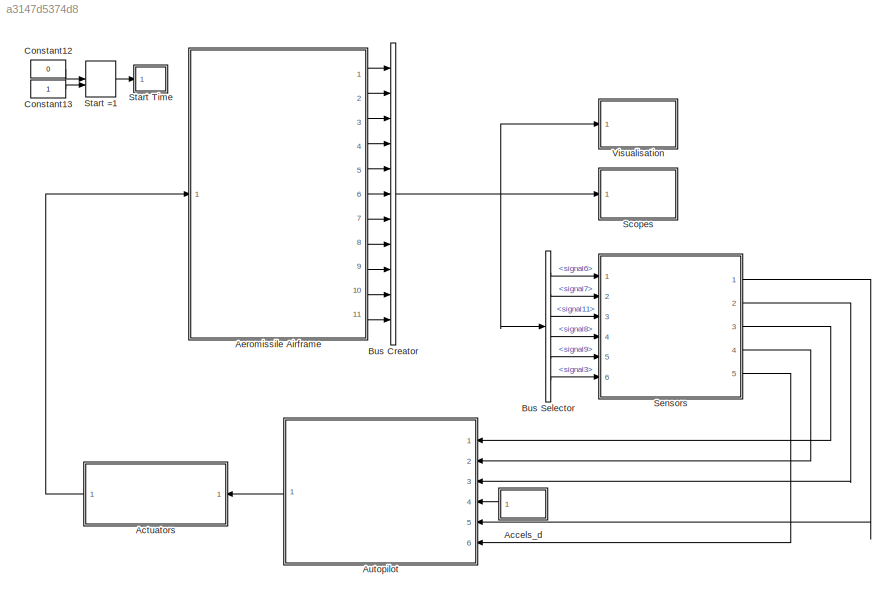
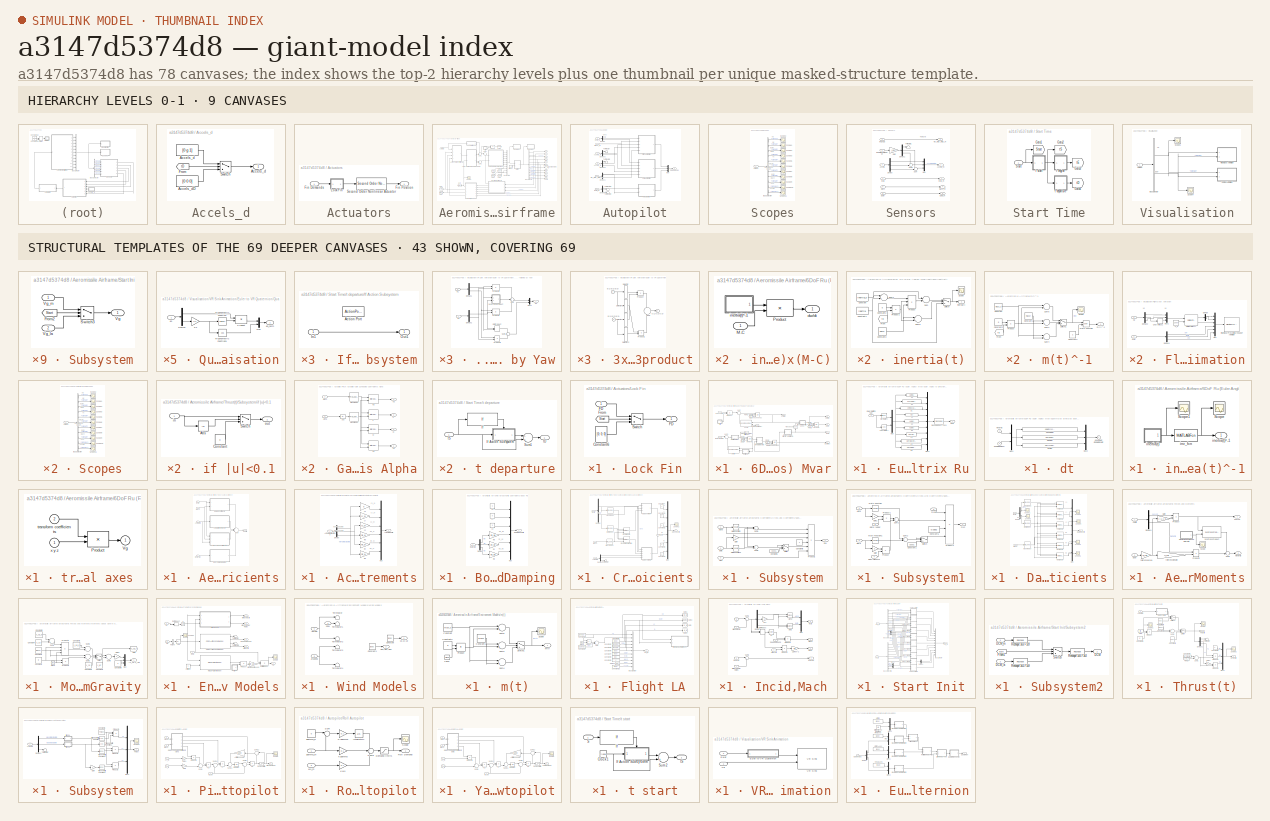
[diagram: thumbnail index - top-2 hierarchy levels (9 canvases) + 43 structural-template representatives of the remaining 69 canvases]
MODEL slx_a3147d5374d8
KIND model
CONFIG AbsTol = auto
CONFIG EnableMultiTasking = on
CONFIG FixedStep = auto
CONFIG MaxStep = auto
CONFIG MinStep = auto
CONFIG PreLoadFcn = aeromissile_la_dat
CONFIG RelTol = 1e-3
CONFIG SampleTimeConstraint = Unconstrained
CONFIG Solver = ode45
CONFIG SolverName = ode45
CONFIG StartTime = 0.0
CONFIG StopTime = 20
BLOCK [SubSystem] Accels_d
  Ports = [0, 1]
  RequestExecContextInheritance = off
BLOCK [Constant] Accels_d/Accels_d
  Value = [0 g 1]
  VectorParams1D = off
BLOCK [Outport] Accels_d/Accels_d 
  IconDisplay = Port number
BLOCK [Constant] Accels_d/Accels_dD
  Value = [0 0 0]
  VectorParams1D = off
BLOCK [From] Accels_d/From
  CloseFcn = tagdialog Close
  GotoTag = tD
  TagVisibility = global
BLOCK [Switch] Accels_d/Switch
  Criteria = u2 ~= 0
  InputSameDT = off
BLOCK [SubSystem] Actuators
  Ports = [1, 1]
  RequestExecContextInheritance = off
BLOCK [Inport] Actuators/Fin Demands
  IconDisplay = Port number
BLOCK [Outport] Actuators/Fin Position
  IconDisplay = Port number
BLOCK [SubSystem] Actuators/Lock Fin
  Ports = [1, 1]
  RequestExecContextInheritance = off
BLOCK [Constant] Actuators/Lock Fin/Constant6
  Value = [0; 0; 0]
  VectorParams1D = off
BLOCK [Inport] Actuators/Lock Fin/FD
  IconDisplay = Port number
BLOCK [Outport] Actuators/Lock Fin/FD 
  IconDisplay = Port number
BLOCK [From] Actuators/Lock Fin/From
  CloseFcn = tagdialog Close
  GotoTag = Start
  TagVisibility = global
BLOCK [Switch] Actuators/Lock Fin/Switch
  Criteria = u2 ~= 0
  InputSameDT = off
BLOCK [Reference] Actuators/Second Order Nonlinear Actuator  REF=aerolibobsolete/Second Order Nonlinear Actuator
  Ports = [1, 1]
  SourceBlock = aerolibobsolete/Second Order Nonlinear Actuator
  SourceProductBaseCode = AE
  SourceProductName = Aerospace Blockset
  SourceType = Second Order Nonlinear Actuator
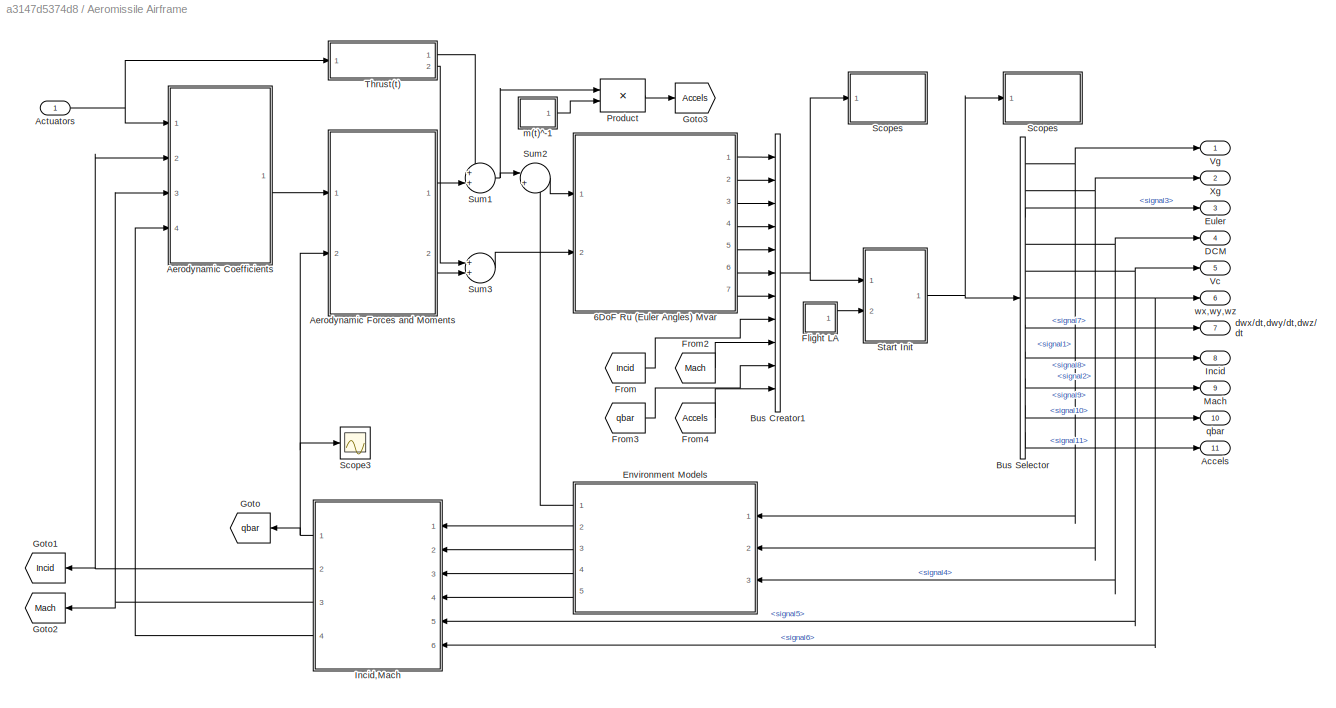
BLOCK [SubSystem] Aeromissile Airframe
  Ports = [1, 11]
  RequestExecContextInheritance = off
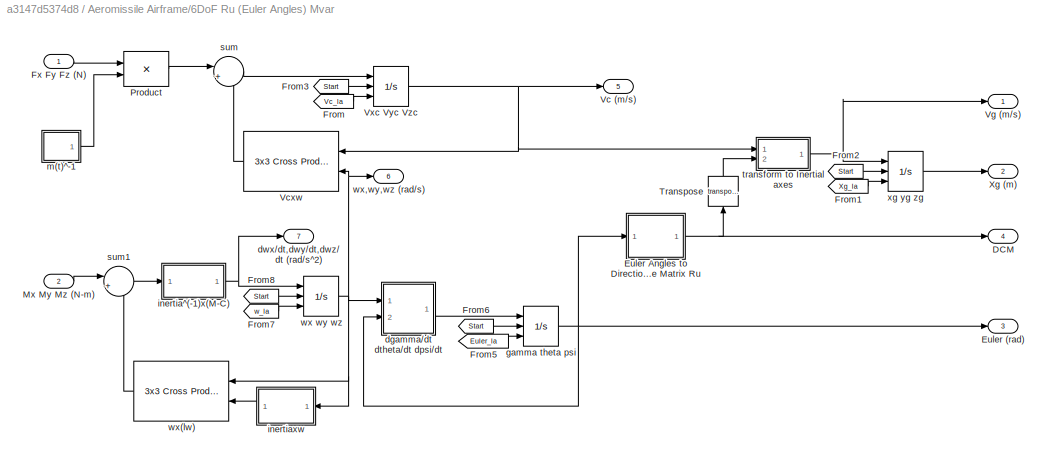
BLOCK [SubSystem] Aeromissile Airframe/6DoF Ru (Euler Angles) Mvar
  AncestorBlock = aerolib6dof/6DoF (Euler Angles)
  Ports = [2, 7]
  RequestExecContextInheritance = off
BLOCK [Outport] Aeromissile Airframe/6DoF Ru (Euler Angles) Mvar/DCM
  IconDisplay = Port number
  Port = 4
BLOCK [Outport] Aeromissile Airframe/6DoF Ru (Euler Angles) Mvar/Euler (rad)
  IconDisplay = Port number
  Port = 3
BLOCK [SubSystem] Aeromissile Airframe/6DoF Ru (Euler Angles) Mvar/Euler Angles to Direction Cosine Matrix Ru
  AncestorBlock = aerolibtransform/Euler Angles to \nDirection Cosine Matrix
  Ports = [1, 1]
  RequestExecContextInheritance = off
  ShowPortLabels = none
BLOCK [Fcn] Aeromissile Airframe/6DoF Ru (Euler Angles) Mvar/Euler Angles to Direction Cosine Matrix Ru/11
  Expr = u(6)*u(5)
BLOCK [Fcn] Aeromissile Airframe/6DoF Ru (Euler Angles) Mvar/Euler Angles to Direction Cosine Matrix Ru/12
  Expr = u(2)
BLOCK [Fcn] Aeromissile Airframe/6DoF Ru (Euler Angles) Mvar/Euler Angles to Direction Cosine Matrix Ru/13
  Expr = -u(3)*u(5)
BLOCK [Fcn] Aeromissile Airframe/6DoF Ru (Euler Angles) Mvar/Euler Angles to Direction Cosine Matrix Ru/21
  Expr = u(1)*u(3)-u(4)*u(6)*u(2)
BLOCK [Fcn] Aeromissile Airframe/6DoF Ru (Euler Angles) Mvar/Euler Angles to Direction Cosine Matrix Ru/22
  Expr = u(4)*u(5)
BLOCK [Fcn] Aeromissile Airframe/6DoF Ru (Euler Angles) Mvar/Euler Angles to Direction Cosine Matrix Ru/23
  Expr = u(1)*u(6)+u(4)*u(3)*u(2)
BLOCK [Fcn] Aeromissile Airframe/6DoF Ru (Euler Angles) Mvar/Euler Angles to Direction Cosine Matrix Ru/31
  Expr = u(4)*u(3)+u(1)*u(6)*u(2)
BLOCK [Fcn] Aeromissile Airframe/6DoF Ru (Euler Angles) Mvar/Euler Angles to Direction Cosine Matrix Ru/32
  Expr = -u(1)*u(5)
BLOCK [Fcn] Aeromissile Airframe/6DoF Ru (Euler Angles) Mvar/Euler Angles to Direction Cosine Matrix Ru/33
  Expr = u(4)*u(6)-u(1)*u(3)*u(2)
BLOCK [Outport] Aeromissile Airframe/6DoF Ru (Euler Angles) Mvar/Euler Angles to Direction Cosine Matrix Ru/DCM
  IconDisplay = Port number
  InitialOutput = 0
BLOCK [Inport] Aeromissile Airframe/6DoF Ru (Euler Angles) Mvar/Euler Angles to Direction Cosine Matrix Ru/Euler Roll Pitch Yaw
  IconDisplay = Port number
BLOCK [Mux] Aeromissile Airframe/6DoF Ru (Euler Angles) Mvar/Euler Angles to Direction Cosine Matrix Ru/Mux
  DisplayOption = bar
  Inputs = 2
  Ports = [2, 1]
BLOCK [Mux] Aeromissile Airframe/6DoF Ru (Euler Angles) Mvar/Euler Angles to Direction Cosine Matrix Ru/Mux2
  DisplayOption = bar
  Inputs = 9
  Ports = [9, 1]
BLOCK [Reshape] Aeromissile Airframe/6DoF Ru (Euler Angles) Mvar/Euler Angles to Direction Cosine Matrix Ru/Reshape 9x1->3x3
  OutputDimensionality = Customize
  OutputDimensions = [3,3]
  Ports = [1, 1]
BLOCK [Trigonometry] Aeromissile Airframe/6DoF Ru (Euler Angles) Mvar/Euler Angles to Direction Cosine Matrix Ru/cos(Euler)
  Operator = cos
  Ports = [1, 1]
BLOCK [Trigonometry] Aeromissile Airframe/6DoF Ru (Euler Angles) Mvar/Euler Angles to Direction Cosine Matrix Ru/sin(Euler)
  Ports = [1, 1]
BLOCK [From] Aeromissile Airframe/6DoF Ru (Euler Angles) Mvar/From
  CloseFcn = tagdialog Close
  GotoTag = Vc_la
  TagVisibility = global
BLOCK [From] Aeromissile Airframe/6DoF Ru (Euler Angles) Mvar/From1
  CloseFcn = tagdialog Close
  GotoTag = Xg_la
  TagVisibility = global
BLOCK [From] Aeromissile Airframe/6DoF Ru (Euler Angles) Mvar/From2
  CloseFcn = tagdialog Close
  GotoTag = Start
  TagVisibility = global
BLOCK [From] Aeromissile Airframe/6DoF Ru (Euler Angles) Mvar/From3
  CloseFcn = tagdialog Close
  GotoTag = Start
  TagVisibility = global
BLOCK [From] Aeromissile Airframe/6DoF Ru (Euler Angles) Mvar/From5
  CloseFcn = tagdialog Close
  GotoTag = Euler_la
  TagVisibility = global
BLOCK [From] Aeromissile Airframe/6DoF Ru (Euler Angles) Mvar/From6
  CloseFcn = tagdialog Close
  GotoTag = Start
  TagVisibility = global
BLOCK [From] Aeromissile Airframe/6DoF Ru (Euler Angles) Mvar/From7
  CloseFcn = tagdialog Close
  GotoTag = w_la
  TagVisibility = global
BLOCK [From] Aeromissile Airframe/6DoF Ru (Euler Angles) Mvar/From8
  CloseFcn = tagdialog Close
  GotoTag = Start
  TagVisibility = global
BLOCK [Inport] Aeromissile Airframe/6DoF Ru (Euler Angles) Mvar/Fx Fy Fz (N)
  IconDisplay = Port number
BLOCK [Inport] Aeromissile Airframe/6DoF Ru (Euler Angles) Mvar/Mx My Mz (N-m)
  IconDisplay = Port number
  Port = 2
BLOCK [Product] Aeromissile Airframe/6DoF Ru (Euler Angles) Mvar/Product
  InputSameDT = off
  Ports = [2, 1]
  RndMeth = Floor
BLOCK [Math] Aeromissile Airframe/6DoF Ru (Euler Angles) Mvar/Transpose
  Operator = transpose
  Ports = [1, 1]
BLOCK [Outport] Aeromissile Airframe/6DoF Ru (Euler Angles) Mvar/Vc (m//s)
  IconDisplay = Port number
  Port = 5
BLOCK [Reference] Aeromissile Airframe/6DoF Ru (Euler Angles) Mvar/Vcxw  REF=sharedutil/3x3 Cross Product
  Ports = [2, 1]
  SourceBlock = sharedutil/3x3 Cross Product
  SourceProductBaseCode = AE
  SourceProductName = Aerospace Blockset
  SourceType = CrossProduct
BLOCK [Outport] Aeromissile Airframe/6DoF Ru (Euler Angles) Mvar/Vg (m//s)
  IconDisplay = Port number
BLOCK [Integrator] Aeromissile Airframe/6DoF Ru (Euler Angles) Mvar/Vxc Vyc Vzc
  ExternalReset = either
  InitialCondition = Vm_0
  InitialConditionSource = external
  Ports = [3, 1]
BLOCK [Outport] Aeromissile Airframe/6DoF Ru (Euler Angles) Mvar/Xg (m)
  IconDisplay = Port number
  Port = 2
BLOCK [SubSystem] Aeromissile Airframe/6DoF Ru (Euler Angles) Mvar/dgamma//dt dtheta//dt dpsi//dt
  Ports = [2, 1]
  RequestExecContextInheritance = off
  ShowPortLabels = none
BLOCK [Mux] Aeromissile Airframe/6DoF Ru (Euler Angles) Mvar/dgamma//dt dtheta//dt dpsi//dt/Mux1
  DisplayOption = bar
  Inputs = [3 3]
  Ports = [2, 1]
BLOCK [Mux] Aeromissile Airframe/6DoF Ru (Euler Angles) Mvar/dgamma//dt dtheta//dt dpsi//dt/Mux2
  DisplayOption = bar
  Inputs = 3
  Ports = [3, 1]
BLOCK [Fcn] Aeromissile Airframe/6DoF Ru (Euler Angles) Mvar/dgamma//dt dtheta//dt dpsi//dt/dgamma//dt
  Expr = u[1]-u[2]*cos(u[4])*tan(u[5])+u[3]*sin(u[4])*tan(u[5])
BLOCK [Outport] Aeromissile Airframe/6DoF Ru (Euler Angles) Mvar/dgamma//dt dtheta//dt dpsi//dt/dgamma//dt dtheta//dt dpsi//dt
  IconDisplay = Port number
  InitialOutput = 0
BLOCK [Fcn] Aeromissile Airframe/6DoF Ru (Euler Angles) Mvar/dgamma//dt dtheta//dt dpsi//dt/dpsi//dt
  Expr = u[2]*cos(u[4])/cos(u[5])-u[3]*sin(u[4])/cos(u[5])
BLOCK [Fcn] Aeromissile Airframe/6DoF Ru (Euler Angles) Mvar/dgamma//dt dtheta//dt dpsi//dt/dtheta//dt
  Expr = u[2]*sin(u[4])+u[3]*cos(u[4])
BLOCK [Inport] Aeromissile Airframe/6DoF Ru (Euler Angles) Mvar/dgamma//dt dtheta//dt dpsi//dt/gamma theta psi
  IconDisplay = Port number
  Port = 2
BLOCK [Inport] Aeromissile Airframe/6DoF Ru (Euler Angles) Mvar/dgamma//dt dtheta//dt dpsi//dt/wx wy wz
  IconDisplay = Port number
BLOCK [Outport] Aeromissile Airframe/6DoF Ru (Euler Angles) Mvar/dwx//dt,dwy//dt,dwz//dt (rad//s^2)
  IconDisplay = Port number
  Port = 7
BLOCK [Integrator] Aeromissile Airframe/6DoF Ru (Euler Angles) Mvar/gamma theta psi
  ExternalReset = either
  InitialCondition = Vm_0
  InitialConditionSource = external
  Ports = [3, 1]
BLOCK [SubSystem] Aeromissile Airframe/6DoF Ru (Euler Angles) Mvar/inertia^(-1)x(M-C)
  Ports = [1, 1]
  RequestExecContextInheritance = off
BLOCK [Inport] Aeromissile Airframe/6DoF Ru (Euler Angles) Mvar/inertia^(-1)x(M-C)/M-C
  IconDisplay = Port number
BLOCK [Product] Aeromissile Airframe/6DoF Ru (Euler Angles) Mvar/inertia^(-1)x(M-C)/Product
  InputSameDT = off
  Multiplication = Matrix(*)
  Ports = [2, 1]
  RndMeth = Floor
BLOCK [Outport] Aeromissile Airframe/6DoF Ru (Euler Angles) Mvar/inertia^(-1)x(M-C)/dw//dt
  IconDisplay = Port number
BLOCK [SubSystem] Aeromissile Airframe/6DoF Ru (Euler Angles) Mvar/inertia^(-1)x(M-C)/inertia(t)^-1
  Ports = [0, 1]
  RequestExecContextInheritance = off
BLOCK [Scope] Aeromissile Airframe/6DoF Ru (Euler Angles) Mvar/inertia^(-1)x(M-C)/inertia(t)^-1/Scope
  Floating = off
  NumInputPorts = 1
  Ports = [1]
  ScopeSpecificationString = C++SS(StrPVP('Location','[188, 365, 512, 604]'),StrPVP('Open','off'),MxPVP('AxesTitles',54,'struct(''axes1'',''%<SignalLabel>'')'),StrPVP('SaveName','ScopeData8'),StrPVP('DataFormat','StructureWithTime'),StrPVP('LimitDataPoints','on'),StrPVP('Decimation','1'),StrPVP('BlockParamSampleInput','off'))
BLOCK [Scope] Aeromissile Airframe/6DoF Ru (Euler Angles) Mvar/inertia^(-1)x(M-C)/inertia(t)^-1/Scope1
  Floating = off
  NumInputPorts = 1
  Ports = [1]
  ScopeSpecificationString = C++SS(StrPVP('Location','[188, 365, 512, 604]'),StrPVP('Open','off'),MxPVP('AxesTitles',54,'struct(''axes1'',''%<SignalLabel>'')'),StrPVP('SaveName','ScopeData10'),StrPVP('DataFormat','StructureWithTime'),StrPVP('LimitDataPoints','on'),StrPVP('Decimation','1'),StrPVP('BlockParamSampleInput','off'))
BLOCK [SubSystem] Aeromissile Airframe/6DoF Ru (Euler Angles) Mvar/inertia^(-1)x(M-C)/inertia(t)^-1/inertia(t)
  Ports = [0, 1]
  RequestExecContextInheritance = off
BLOCK [Constant] Aeromissile Airframe/6DoF Ru (Euler Angles) Mvar/inertia^(-1)x(M-C)/inertia(t)^-1/inertia(t)/Constant
  Value = inertia_0
BLOCK [Constant] Aeromissile Airframe/6DoF Ru (Euler Angles) Mvar/inertia^(-1)x(M-C)/inertia(t)^-1/inertia(t)/Constant1
  Value = inertia
BLOCK [Constant] Aeromissile Airframe/6DoF Ru (Euler Angles) Mvar/inertia^(-1)x(M-C)/inertia(t)^-1/inertia(t)/Constant2
  Value = q
BLOCK [Constant] Aeromissile Airframe/6DoF Ru (Euler Angles) Mvar/inertia^(-1)x(M-C)/inertia(t)^-1/inertia(t)/Constant3
  Value = massf
BLOCK [From] Aeromissile Airframe/6DoF Ru (Euler Angles) Mvar/inertia^(-1)x(M-C)/inertia(t)^-1/inertia(t)/From
  CloseFcn = tagdialog Close
  GotoTag = tE
  TagVisibility = global
BLOCK [Product] Aeromissile Airframe/6DoF Ru (Euler Angles) Mvar/inertia^(-1)x(M-C)/inertia(t)^-1/inertia(t)/Product
  InputSameDT = off
  Inputs = **/
  Ports = [3, 1]
  RndMeth = Floor
BLOCK [Product] Aeromissile Airframe/6DoF Ru (Euler Angles) Mvar/inertia^(-1)x(M-C)/inertia(t)^-1/inertia(t)/Product1
  InputSameDT = off
  Ports = [2, 1]
  RndMeth = Floor
BLOCK [Scope] Aeromissile Airframe/6DoF Ru (Euler Angles) Mvar/inertia^(-1)x(M-C)/inertia(t)^-1/inertia(t)/Scope
  Floating = off
  NumInputPorts = 1
  Ports = [1]
  ScopeSpecificationString = C++SS(StrPVP('Location','[188, 365, 512, 604]'),StrPVP('Open','off'),MxPVP('AxesTitles',54,'struct(''axes1'',''%<SignalLabel>'')'),StrPVP('SaveName','ScopeData9'),StrPVP('DataFormat','StructureWithTime'),StrPVP('LimitDataPoints','on'),StrPVP('Decimation','1'),StrPVP('BlockParamSampleInput','off'))
BLOCK [Sum] Aeromissile Airframe/6DoF Ru (Euler Angles) Mvar/inertia^(-1)x(M-C)/inertia(t)^-1/inertia(t)/Sum
  InputSameDT = off
  Inputs = |+-
  OutDataTypeStr = Inherit: Inherit via internal rule
  Ports = [2, 1]
BLOCK [Sum] Aeromissile Airframe/6DoF Ru (Euler Angles) Mvar/inertia^(-1)x(M-C)/inertia(t)^-1/inertia(t)/Sum1
  InputSameDT = off
  Inputs = |+-
  OutDataTypeStr = Inherit: Inherit via internal rule
  Ports = [2, 1]
BLOCK [Sum] Aeromissile Airframe/6DoF Ru (Euler Angles) Mvar/inertia^(-1)x(M-C)/inertia(t)^-1/inertia(t)/Sum3
  InputSameDT = off
  Inputs = |+-
  OutDataTypeStr = Inherit: Inherit via internal rule
  Ports = [2, 1]
BLOCK [Switch] Aeromissile Airframe/6DoF Ru (Euler Angles) Mvar/inertia^(-1)x(M-C)/inertia(t)^-1/inertia(t)/Switch
  Criteria = u2 > Threshold
  InputSameDT = off
BLOCK [Outport] Aeromissile Airframe/6DoF Ru (Euler Angles) Mvar/inertia^(-1)x(M-C)/inertia(t)^-1/inertia(t)/inertia(t)
  IconDisplay = Port number
BLOCK [Outport] Aeromissile Airframe/6DoF Ru (Euler Angles) Mvar/inertia^(-1)x(M-C)/inertia(t)^-1/inertia(t)^-1
  IconDisplay = Port number
BLOCK [MATLABFcn] Aeromissile Airframe/6DoF Ru (Euler Angles) Mvar/inertia^(-1)x(M-C)/inertia(t)^-1/inv_fcn
  MATLABFcn = inv_fcn(u)
  Output1D = off
  OutputDimensions = [3 3]
  Ports = [1, 1]
BLOCK [SubSystem] Aeromissile Airframe/6DoF Ru (Euler Angles) Mvar/inertiaxw
  Ports = [1, 1]
  RequestExecContextInheritance = off
BLOCK [Outport] Aeromissile Airframe/6DoF Ru (Euler Angles) Mvar/inertiaxw/B
  IconDisplay = Port number
BLOCK [Product] Aeromissile Airframe/6DoF Ru (Euler Angles) Mvar/inertiaxw/Product
  InputSameDT = off
  Multiplication = Matrix(*)
  Ports = [2, 1]
  RndMeth = Floor
BLOCK [SubSystem] Aeromissile Airframe/6DoF Ru (Euler Angles) Mvar/inertiaxw/inertia(t)
  Ports = [0, 1]
  RequestExecContextInheritance = off
BLOCK [Constant] Aeromissile Airframe/6DoF Ru (Euler Angles) Mvar/inertiaxw/inertia(t)/Constant
  Value = inertia_0
BLOCK [Constant] Aeromissile Airframe/6DoF Ru (Euler Angles) Mvar/inertiaxw/inertia(t)/Constant1
  Value = inertia
BLOCK [Constant] Aeromissile Airframe/6DoF Ru (Euler Angles) Mvar/inertiaxw/inertia(t)/Constant2
  Value = q
BLOCK [Constant] Aeromissile Airframe/6DoF Ru (Euler Angles) Mvar/inertiaxw/inertia(t)/Constant3
  Value = massf
BLOCK [From] Aeromissile Airframe/6DoF Ru (Euler Angles) Mvar/inertiaxw/inertia(t)/From
  CloseFcn = tagdialog Close
  GotoTag = tE
  TagVisibility = global
BLOCK [Product] Aeromissile Airframe/6DoF Ru (Euler Angles) Mvar/inertiaxw/inertia(t)/Product
  InputSameDT = off
  Inputs = **/
  Ports = [3, 1]
  RndMeth = Floor
BLOCK [Product] Aeromissile Airframe/6DoF Ru (Euler Angles) Mvar/inertiaxw/inertia(t)/Product1
  InputSameDT = off
  Ports = [2, 1]
  RndMeth = Floor
BLOCK [Scope] Aeromissile Airframe/6DoF Ru (Euler Angles) Mvar/inertiaxw/inertia(t)/Scope
  Floating = off
  NumInputPorts = 1
  Ports = [1]
  ScopeSpecificationString = C++SS(StrPVP('Location','[188, 365, 512, 604]'),StrPVP('Open','off'),MxPVP('AxesTitles',54,'struct(''axes1'',''%<SignalLabel>'')'),StrPVP('SaveName','ScopeData9'),StrPVP('DataFormat','StructureWithTime'),StrPVP('LimitDataPoints','on'),StrPVP('Decimation','1'),StrPVP('BlockParamSampleInput','off'))
BLOCK [Sum] Aeromissile Airframe/6DoF Ru (Euler Angles) Mvar/inertiaxw/inertia(t)/Sum
  InputSameDT = off
  Inputs = |+-
  OutDataTypeStr = Inherit: Inherit via internal rule
  Ports = [2, 1]
BLOCK [Sum] Aeromissile Airframe/6DoF Ru (Euler Angles) Mvar/inertiaxw/inertia(t)/Sum1
  InputSameDT = off
  Inputs = |+-
  OutDataTypeStr = Inherit: Inherit via internal rule
  Ports = [2, 1]
BLOCK [Sum] Aeromissile Airframe/6DoF Ru (Euler Angles) Mvar/inertiaxw/inertia(t)/Sum3
  InputSameDT = off
  Inputs = |+-
  OutDataTypeStr = Inherit: Inherit via internal rule
  Ports = [2, 1]
BLOCK [Switch] Aeromissile Airframe/6DoF Ru (Euler Angles) Mvar/inertiaxw/inertia(t)/Switch
  Criteria = u2 > Threshold
  InputSameDT = off
BLOCK [Outport] Aeromissile Airframe/6DoF Ru (Euler Angles) Mvar/inertiaxw/inertia(t)/inertia(t)
  IconDisplay = Port number
BLOCK [Inport] Aeromissile Airframe/6DoF Ru (Euler Angles) Mvar/inertiaxw/w
  IconDisplay = Port number
BLOCK [SubSystem] Aeromissile Airframe/6DoF Ru (Euler Angles) Mvar/m(t)^-1
  Ports = [0, 1]
  RequestExecContextInheritance = off
BLOCK [Constant] Aeromissile Airframe/6DoF Ru (Euler Angles) Mvar/m(t)^-1/Constant
  Value = mass_0
BLOCK [Constant] Aeromissile Airframe/6DoF Ru (Euler Angles) Mvar/m(t)^-1/Constant1
  Value = massf
BLOCK [Constant] Aeromissile Airframe/6DoF Ru (Euler Angles) Mvar/m(t)^-1/Constant2
  Value = q
BLOCK [Constant] Aeromissile Airframe/6DoF Ru (Euler Angles) Mvar/m(t)^-1/Constant3
  Value = -1
BLOCK [From] Aeromissile Airframe/6DoF Ru (Euler Angles) Mvar/m(t)^-1/From
  CloseFcn = tagdialog Close
  GotoTag = tE
  TagVisibility = global
BLOCK [Math] Aeromissile Airframe/6DoF Ru (Euler Angles) Mvar/m(t)^-1/Math Function
  Operator = pow
  Ports = [2, 1]
BLOCK [Product] Aeromissile Airframe/6DoF Ru (Euler Angles) Mvar/m(t)^-1/Product
  InputSameDT = off
  Ports = [2, 1]
  RndMeth = Floor
BLOCK [Scope] Aeromissile Airframe/6DoF Ru (Euler Angles) Mvar/m(t)^-1/Scope
  Floating = off
  NumInputPorts = 1
  Ports = [1]
  ScopeSpecificationString = C++SS(StrPVP('Location','[5, 57, 1541, 827]'),StrPVP('Open','off'),MxPVP('AxesTitles',54,'struct(''axes1'',''%<SignalLabel>'')'),StrPVP('SaveName','ScopeData7'),StrPVP('DataFormat','StructureWithTime'),StrPVP('LimitDataPoints','on'),StrPVP('Decimation','1'),StrPVP('BlockParamSampleInput','off'))
BLOCK [Sum] Aeromissile Airframe/6DoF Ru (Euler Angles) Mvar/m(t)^-1/Sum2
  InputSameDT = off
  Inputs = |+-
  OutDataTypeStr = Inherit: Inherit via internal rule
  Ports = [2, 1]
BLOCK [Sum] Aeromissile Airframe/6DoF Ru (Euler Angles) Mvar/m(t)^-1/Sum4
  InputSameDT = off
  Inputs = |+-
  OutDataTypeStr = Inherit: Inherit via internal rule
  Ports = [2, 1]
BLOCK [Sum] Aeromissile Airframe/6DoF Ru (Euler Angles) Mvar/m(t)^-1/Sum5
  InputSameDT = off
  Inputs = |+-
  OutDataTypeStr = Inherit: Inherit via internal rule
  Ports = [2, 1]
BLOCK [Switch] Aeromissile Airframe/6DoF Ru (Euler Angles) Mvar/m(t)^-1/Switch1
  Criteria = u2 > Threshold
  InputSameDT = off
BLOCK [Outport] Aeromissile Airframe/6DoF Ru (Euler Angles) Mvar/m(t)^-1/m(t)^-1
  IconDisplay = Port number
BLOCK [Sum] Aeromissile Airframe/6DoF Ru (Euler Angles) Mvar/sum
  IconShape = round
  Inputs = |++
  Ports = [2, 1]
BLOCK [Sum] Aeromissile Airframe/6DoF Ru (Euler Angles) Mvar/sum1
  IconShape = round
  Inputs = |+-
  Ports = [2, 1]
BLOCK [SubSystem] Aeromissile Airframe/6DoF Ru (Euler Angles) Mvar/transform to Inertial axes 
  Ports = [2, 1]
  RequestExecContextInheritance = off
  ShowPortLabels = none
BLOCK [Product] Aeromissile Airframe/6DoF Ru (Euler Angles) Mvar/transform to Inertial axes /Product
  Multiplication = Matrix(*)
  Ports = [2, 1]
  RndMeth = Floor
BLOCK [Outport] Aeromissile Airframe/6DoF Ru (Euler Angles) Mvar/transform to Inertial axes /Vg
  IconDisplay = Port number
  InitialOutput = 0
BLOCK [Inport] Aeromissile Airframe/6DoF Ru (Euler Angles) Mvar/transform to Inertial axes /transform coefficients
  IconDisplay = Port number
  Port = 2
BLOCK [Inport] Aeromissile Airframe/6DoF Ru (Euler Angles) Mvar/transform to Inertial axes /x y z
  IconDisplay = Port number
BLOCK [Integrator] Aeromissile Airframe/6DoF Ru (Euler Angles) Mvar/wx wy wz
  ExternalReset = either
  InitialCondition = Vm_0
  InitialConditionSource = external
  Ports = [3, 1]
BLOCK [Reference] Aeromissile Airframe/6DoF Ru (Euler Angles) Mvar/wx(lw)  REF=sharedutil/3x3 Cross Product
  Ports = [2, 1]
  SourceBlock = sharedutil/3x3 Cross Product
  SourceProductBaseCode = AE
  SourceProductName = Aerospace Blockset
  SourceType = CrossProduct
BLOCK [Outport] Aeromissile Airframe/6DoF Ru (Euler Angles) Mvar/wx,wy,wz (rad//s)
  IconDisplay = Port number
  Port = 6
BLOCK [Integrator] Aeromissile Airframe/6DoF Ru (Euler Angles) Mvar/xg yg zg
  ExternalReset = either
  InitialCondition = Vm_0
  InitialConditionSource = external
  Ports = [3, 1]
BLOCK [Outport] Aeromissile Airframe/Accels
  IconDisplay = Port number
  Port = 11
BLOCK [Inport] Aeromissile Airframe/Actuators
  IconDisplay = Port number
BLOCK [SubSystem] Aeromissile Airframe/Aerodynamic Coefficients
  Ports = [4, 1]
  RequestExecContextInheritance = off
BLOCK [SubSystem] Aeromissile Airframe/Aerodynamic Coefficients/Actuator Increments
  Ports = [1, 1]
  RequestExecContextInheritance = off
BLOCK [Outport] Aeromissile Airframe/Aerodynamic Coefficients/Actuator Increments/Actuator Coeffs
  IconDisplay = Port number
  InitialOutput = 0
BLOCK [Inport] Aeromissile Airframe/Aerodynamic Coefficients/Actuator Increments/Actuator Deflections
  IconDisplay = Port number
BLOCK [Demux] Aeromissile Airframe/Aerodynamic Coefficients/Actuator Increments/Demux
  Outputs = 3
  Ports = [1, 3]
BLOCK [Mux] Aeromissile Airframe/Aerodynamic Coefficients/Actuator Increments/Mux
  DisplayOption = bar
  Inputs = 6
  Ports = [6, 1]
BLOCK [Gain] Aeromissile Airframe/Aerodynamic Coefficients/Actuator Increments/cx
  Gain = 0
BLOCK [Gain] Aeromissile Airframe/Aerodynamic Coefficients/Actuator Increments/cy
  Gain = cy_el
BLOCK [Gain] Aeromissile Airframe/Aerodynamic Coefficients/Actuator Increments/cz
  Gain = cz_el
BLOCK [Gain] Aeromissile Airframe/Aerodynamic Coefficients/Actuator Increments/mx
  Gain = mx_el
BLOCK [Gain] Aeromissile Airframe/Aerodynamic Coefficients/Actuator Increments/my
  Gain = my_el
BLOCK [Gain] Aeromissile Airframe/Aerodynamic Coefficients/Actuator Increments/mz
  Gain = mz_el
BLOCK [Inport] Aeromissile Airframe/Aerodynamic Coefficients/Actuators
  IconDisplay = Port number
BLOCK [SubSystem] Aeromissile Airframe/Aerodynamic Coefficients/Body Rate Damping
  Ports = [1, 1]
  RequestExecContextInheritance = off
BLOCK [Outport] Aeromissile Airframe/Aerodynamic Coefficients/Body Rate Damping/Damping Coeffs
  IconDisplay = Port number
  InitialOutput = 0
BLOCK [Demux] Aeromissile Airframe/Aerodynamic Coefficients/Body Rate Damping/Demux
  Outputs = 3
  Ports = [1, 3]
BLOCK [Mux] Aeromissile Airframe/Aerodynamic Coefficients/Body Rate Damping/Mux
  DisplayOption = bar
  Inputs = 6
  Ports = [6, 1]
BLOCK [Constant] Aeromissile Airframe/Aerodynamic Coefficients/Body Rate Damping/cx
  Value = 0
BLOCK [Constant] Aeromissile Airframe/Aerodynamic Coefficients/Body Rate Damping/cy
  Value = 0
BLOCK [Constant] Aeromissile Airframe/Aerodynamic Coefficients/Body Rate Damping/cz
  Value = 0
BLOCK [Gain] Aeromissile Airframe/Aerodynamic Coefficients/Body Rate Damping/mx
  Gain = mx_wx
BLOCK [Gain] Aeromissile Airframe/Aerodynamic Coefficients/Body Rate Damping/my
  Gain = my_wy
BLOCK [Gain] Aeromissile Airframe/Aerodynamic Coefficients/Body Rate Damping/mz
  Gain = mz_wz
BLOCK [Inport] Aeromissile Airframe/Aerodynamic Coefficients/Body Rate Damping/wx,wy,wz
  IconDisplay = Port number
BLOCK [Outport] Aeromissile Airframe/Aerodynamic Coefficients/Coeffs
  IconDisplay = Port number
  InitialOutput = [0]
BLOCK [SubSystem] Aeromissile Airframe/Aerodynamic Coefficients/Cross Link Coefficients
  Ports = [3, 1]
  RequestExecContextInheritance = off
BLOCK [Inport] Aeromissile Airframe/Aerodynamic Coefficients/Cross Link Coefficients/Actuators
  IconDisplay = Port number
  Port = 3
BLOCK [Reference] Aeromissile Airframe/Aerodynamic Coefficients/Cross Link Coefficients/Alpha Index  REF=simulink_need_slupdate/PreLookup
Index Search
  Ports = [1, 1]
  SourceBlock = simulink_need_slupdate/PreLookup\nIndex Search
  SourceProductBaseCode = SL
  SourceProductName = Simulink
  SourceType = LookupIdxSearch
BLOCK [Reference] Aeromissile Airframe/Aerodynamic Coefficients/Cross Link Coefficients/Beta Index  REF=simulink_need_slupdate/PreLookup
Index Search
  Ports = [1, 1]
  SourceBlock = simulink_need_slupdate/PreLookup\nIndex Search
  SourceProductBaseCode = SL
  SourceProductName = Simulink
  SourceType = LookupIdxSearch
BLOCK [Constant] Aeromissile Airframe/Aerodynamic Coefficients/Cross Link Coefficients/Constant
  Value = 0
BLOCK [Constant] Aeromissile Airframe/Aerodynamic Coefficients/Cross Link Coefficients/Constant1
  Value = 0
BLOCK [Constant] Aeromissile Airframe/Aerodynamic Coefficients/Cross Link Coefficients/Constant2
  Value = 0
BLOCK [Constant] Aeromissile Airframe/Aerodynamic Coefficients/Cross Link Coefficients/Constant3
  Value = 0
BLOCK [Constant] Aeromissile Airframe/Aerodynamic Coefficients/Cross Link Coefficients/Constant4
  Value = 0
BLOCK [Outport] Aeromissile Airframe/Aerodynamic Coefficients/Cross Link Coefficients/Cross Coeffs
  IconDisplay = Port number
  InitialOutput = 0
BLOCK [Demux] Aeromissile Airframe/Aerodynamic Coefficients/Cross Link Coefficients/Demux
  Outputs = 2
  Ports = [1, 2]
BLOCK [Demux] Aeromissile Airframe/Aerodynamic Coefficients/Cross Link Coefficients/Demux1
  Outputs = 3
  Ports = [1, 3]
BLOCK [Inport] Aeromissile Airframe/Aerodynamic Coefficients/Cross Link Coefficients/Incid
  IconDisplay = Port number
BLOCK [Inport] Aeromissile Airframe/Aerodynamic Coefficients/Cross Link Coefficients/Mach
  IconDisplay = Port number
  Port = 2
BLOCK [Reference] Aeromissile Airframe/Aerodynamic Coefficients/Cross Link Coefficients/Mach Index  REF=simulink_need_slupdate/PreLookup
Index Search
  Ports = [1, 1]
  SourceBlock = simulink_need_slupdate/PreLookup\nIndex Search
  SourceProductBaseCode = SL
  SourceProductName = Simulink
  SourceType = LookupIdxSearch
BLOCK [Mux] Aeromissile Airframe/Aerodynamic Coefficients/Cross Link Coefficients/Mux
  DisplayOption = bar
  Inputs = 6
  Ports = [6, 1]
BLOCK [Scope] Aeromissile Airframe/Aerodynamic Coefficients/Cross Link Coefficients/Scope2
  Floating = off
  NumInputPorts = 1
  Ports = [1]
  ScopeSpecificationString = C++SS(StrPVP('Location','[188, 365, 512, 604]'),StrPVP('Open','off'),MxPVP('AxesTitles',54,'struct(''axes1'',''%<SignalLabel>'')'),StrPVP('SaveName','ScopeData17'),StrPVP('DataFormat','StructureWithTime'),StrPVP('MaxDataPoints','100000'),StrPVP('LimitDataPoints','on'),StrPVP('Decimation','1'),StrPVP('BlockParamSampleInput','off'))
BLOCK [SubSystem] Aeromissile Airframe/Aerodynamic Coefficients/Cross Link Coefficients/Subsystem
  Ports = [3, 1]
  RequestExecContextInheritance = off
BLOCK [Inport] Aeromissile Airframe/Aerodynamic Coefficients/Cross Link Coefficients/Subsystem/Alpha
  IconDisplay = Port number
BLOCK [Inport] Aeromissile Airframe/Aerodynamic Coefficients/Cross Link Coefficients/Subsystem/Beta
  IconDisplay = Port number
  Port = 2
BLOCK [Constant] Aeromissile Airframe/Aerodynamic Coefficients/Cross Link Coefficients/Subsystem/Constant1
  Value = 0.0001
BLOCK [Constant] Aeromissile Airframe/Aerodynamic Coefficients/Cross Link Coefficients/Subsystem/Constant5
  Value = 4
BLOCK [Gain] Aeromissile Airframe/Aerodynamic Coefficients/Cross Link Coefficients/Subsystem/Gain
  Gain = -1
BLOCK [Math] Aeromissile Airframe/Aerodynamic Coefficients/Cross Link Coefficients/Subsystem/Math Function
  Operator = square
  Ports = [1, 1]
BLOCK [Math] Aeromissile Airframe/Aerodynamic Coefficients/Cross Link Coefficients/Subsystem/Math Function1
  Operator = square
  Ports = [1, 1]
BLOCK [Product] Aeromissile Airframe/Aerodynamic Coefficients/Cross Link Coefficients/Subsystem/Product1
  InputSameDT = off
  Inputs = ****/*
  Ports = [6, 1]
  RndMeth = Floor
BLOCK [Sum] Aeromissile Airframe/Aerodynamic Coefficients/Cross Link Coefficients/Subsystem/Sum1
  InputSameDT = off
  Inputs = -+
  OutDataTypeStr = Inherit: Inherit via internal rule
  Ports = [2, 1]
BLOCK [Sum] Aeromissile Airframe/Aerodynamic Coefficients/Cross Link Coefficients/Subsystem/Sum2
  InputSameDT = off
  OutDataTypeStr = Inherit: Inherit via internal rule
  Ports = [2, 1]
BLOCK [Switch] Aeromissile Airframe/Aerodynamic Coefficients/Cross Link Coefficients/Subsystem/Switch
  Criteria = u2 ~= 0
  InputSameDT = off
BLOCK [Outport] Aeromissile Airframe/Aerodynamic Coefficients/Cross Link Coefficients/Subsystem/mx1
  IconDisplay = Port number
BLOCK [Inport] Aeromissile Airframe/Aerodynamic Coefficients/Cross Link Coefficients/Subsystem/mxa
  IconDisplay = Port number
  Port = 3
BLOCK [SubSystem] Aeromissile Airframe/Aerodynamic Coefficients/Cross Link Coefficients/Subsystem1
  Ports = [5, 1]
  RequestExecContextInheritance = off
BLOCK [Inport] Aeromissile Airframe/Aerodynamic Coefficients/Cross Link Coefficients/Subsystem1/Alpha
  IconDisplay = Port number
BLOCK [Inport] Aeromissile Airframe/Aerodynamic Coefficients/Cross Link Coefficients/Subsystem1/Beta
  IconDisplay = Port number
  Port = 2
BLOCK [Constant] Aeromissile Airframe/Aerodynamic Coefficients/Cross Link Coefficients/Subsystem1/Constant1
  Value = 0.0001
BLOCK [Constant] Aeromissile Airframe/Aerodynamic Coefficients/Cross Link Coefficients/Subsystem1/Constant5
  Value = 0.0352
BLOCK [Gain] Aeromissile Airframe/Aerodynamic Coefficients/Cross Link Coefficients/Subsystem1/Gain
  Gain = -1
BLOCK [Gain] Aeromissile Airframe/Aerodynamic Coefficients/Cross Link Coefficients/Subsystem1/Gain1
  Gain = -1
BLOCK [Math] Aeromissile Airframe/Aerodynamic Coefficients/Cross Link Coefficients/Subsystem1/Math Function
  Operator = square
  Ports = [1, 1]
BLOCK [Math] Aeromissile Airframe/Aerodynamic Coefficients/Cross Link Coefficients/Subsystem1/Math Function1
  Operator = square
  Ports = [1, 1]
BLOCK [Product] Aeromissile Airframe/Aerodynamic Coefficients/Cross Link Coefficients/Subsystem1/Product
  InputSameDT = off
  Ports = [2, 1]
  RndMeth = Floor
BLOCK [Product] Aeromissile Airframe/Aerodynamic Coefficients/Cross Link Coefficients/Subsystem1/Product1
  InputSameDT = off
  Ports = [2, 1]
  RndMeth = Floor
BLOCK [Product] Aeromissile Airframe/Aerodynamic Coefficients/Cross Link Coefficients/Subsystem1/Product2
  InputSameDT = off
  Inputs = ***/
  Ports = [4, 1]
  RndMeth = Floor
BLOCK [Sum] Aeromissile Airframe/Aerodynamic Coefficients/Cross Link Coefficients/Subsystem1/Sum1
  InputSameDT = off
  OutDataTypeStr = Inherit: Inherit via internal rule
  Ports = [2, 1]
BLOCK [Sum] Aeromissile Airframe/Aerodynamic Coefficients/Cross Link Coefficients/Subsystem1/Sum2
  InputSameDT = off
  OutDataTypeStr = Inherit: Inherit via internal rule
  Ports = [2, 1]
BLOCK [Switch] Aeromissile Airframe/Aerodynamic Coefficients/Cross Link Coefficients/Subsystem1/Switch
  Criteria = u2 ~= 0
  InputSameDT = off
BLOCK [Inport] Aeromissile Airframe/Aerodynamic Coefficients/Cross Link Coefficients/Subsystem1/delta elevator
  IconDisplay = Port number
  Port = 4
BLOCK [Inport] Aeromissile Airframe/Aerodynamic Coefficients/Cross Link Coefficients/Subsystem1/delta rudder
  IconDisplay = Port number
  Port = 5
BLOCK [Outport] Aeromissile Airframe/Aerodynamic Coefficients/Cross Link Coefficients/Subsystem1/mx2
  IconDisplay = Port number
BLOCK [Inport] Aeromissile Airframe/Aerodynamic Coefficients/Cross Link Coefficients/Subsystem1/mxad
  IconDisplay = Port number
  Port = 3
BLOCK [Sum] Aeromissile Airframe/Aerodynamic Coefficients/Cross Link Coefficients/Sum
  IconShape = round
  InputSameDT = off
  OutDataTypeStr = Inherit: Inherit via internal rule
  Ports = [2, 1]
BLOCK [Terminator] Aeromissile Airframe/Aerodynamic Coefficients/Cross Link Coefficients/Terminator
BLOCK [Reference] Aeromissile Airframe/Aerodynamic Coefficients/Cross Link Coefficients/mxa(al,be,M)  REF=simulink_need_slupdate/Interpolation (n-D)
using PreLookup
  Ports = [3, 1]
  SourceBlock = simulink_need_slupdate/Interpolation (n-D)\nusing PreLookup
  SourceProductBaseCode = SL
  SourceProductName = Simulink
  SourceType = LookupNDInterpIdx
BLOCK [Reference] Aeromissile Airframe/Aerodynamic Coefficients/Cross Link Coefficients/mxad(al,be,M,delta)  REF=simulink_need_slupdate/Interpolation (n-D)
using PreLookup
  Ports = [3, 1]
  SourceBlock = simulink_need_slupdate/Interpolation (n-D)\nusing PreLookup
  SourceProductBaseCode = SL
  SourceProductName = Simulink
  SourceType = LookupNDInterpIdx
BLOCK [SubSystem] Aeromissile Airframe/Aerodynamic Coefficients/Datum Coefficients
  Ports = [2, 1]
  RequestExecContextInheritance = off
BLOCK [Reference] Aeromissile Airframe/Aerodynamic Coefficients/Datum Coefficients/Alpha Index  REF=simulink_need_slupdate/PreLookup
Index Search
  Ports = [1, 1]
  SourceBlock = simulink_need_slupdate/PreLookup\nIndex Search
  SourceProductBaseCode = SL
  SourceProductName = Simulink
  SourceType = LookupIdxSearch
BLOCK [Reference] Aeromissile Airframe/Aerodynamic Coefficients/Datum Coefficients/Beta Index  REF=simulink_need_slupdate/PreLookup
Index Search
  Ports = [1, 1]
  SourceBlock = simulink_need_slupdate/PreLookup\nIndex Search
  SourceProductBaseCode = SL
  SourceProductName = Simulink
  SourceType = LookupIdxSearch
BLOCK [Outport] Aeromissile Airframe/Aerodynamic Coefficients/Datum Coefficients/Datum Coeffs
  IconDisplay = Port number
  InitialOutput = 0
BLOCK [Demux] Aeromissile Airframe/Aerodynamic Coefficients/Datum Coefficients/Demux
  Outputs = 2
  Ports = [1, 2]
BLOCK [Inport] Aeromissile Airframe/Aerodynamic Coefficients/Datum Coefficients/Incid
  IconDisplay = Port number
BLOCK [Inport] Aeromissile Airframe/Aerodynamic Coefficients/Datum Coefficients/Mach
  IconDisplay = Port number
  Port = 2
BLOCK [Reference] Aeromissile Airframe/Aerodynamic Coefficients/Datum Coefficients/Mach Index  REF=simulink_need_slupdate/PreLookup
Index Search
  Ports = [1, 1]
  SourceBlock = simulink_need_slupdate/PreLookup\nIndex Search
  SourceProductBaseCode = SL
  SourceProductName = Simulink
  SourceType = LookupIdxSearch
BLOCK [Mux] Aeromissile Airframe/Aerodynamic Coefficients/Datum Coefficients/Mux
  DisplayOption = bar
  Inputs = 6
  Ports = [6, 1]
BLOCK [Scope] Aeromissile Airframe/Aerodynamic Coefficients/Datum Coefficients/Scope1
  Floating = off
  NumInputPorts = 1
  Ports = [1]
  ScopeSpecificationString = C++SS(StrPVP('Location','[188, 365, 512, 604]'),StrPVP('Open','off'),MxPVP('AxesTitles',54,'struct(''axes1'',''%<SignalLabel>'')'),StrPVP('SaveName','ScopeData11'),StrPVP('DataFormat','StructureWithTime'),StrPVP('MaxDataPoints','100000'),StrPVP('LimitDataPoints','on'),StrPVP('Decimation','1'),StrPVP('BlockParamSampleInput','off'))
BLOCK [Scope] Aeromissile Airframe/Aerodynamic Coefficients/Datum Coefficients/Scope2
  Floating = off
  NumInputPorts = 1
  Ports = [1]
  ScopeSpecificationString = C++SS(StrPVP('Location','[188, 365, 512, 604]'),StrPVP('Open','off'),MxPVP('AxesTitles',54,'struct(''axes1'',''%<SignalLabel>'')'),StrPVP('SaveName','ScopeData5'),StrPVP('DataFormat','StructureWithTime'),StrPVP('MaxDataPoints','100000'),StrPVP('LimitDataPoints','on'),StrPVP('Decimation','1'),StrPVP('BlockParamSampleInput','off'))
BLOCK [Scope] Aeromissile Airframe/Aerodynamic Coefficients/Datum Coefficients/Scope3
  Floating = off
  NumInputPorts = 1
  Ports = [1]
  ScopeSpecificationString = C++SS(StrPVP('Location','[188, 365, 512, 604]'),StrPVP('Open','off'),MxPVP('AxesTitles',54,'struct(''axes1'',''%<SignalLabel>'')'),StrPVP('SaveName','ScopeData12'),StrPVP('DataFormat','StructureWithTime'),StrPVP('MaxDataPoints','100000'),StrPVP('LimitDataPoints','on'),StrPVP('Decimation','1'),StrPVP('BlockParamSampleInput','off'))
BLOCK [Scope] Aeromissile Airframe/Aerodynamic Coefficients/Datum Coefficients/Scope4
  Floating = off
  NumInputPorts = 1
  Ports = [1]
  ScopeSpecificationString = C++SS(StrPVP('Location','[188, 365, 512, 604]'),StrPVP('Open','off'),MxPVP('AxesTitles',54,'struct(''axes1'',''%<SignalLabel>'')'),StrPVP('SaveName','ScopeData13'),StrPVP('DataFormat','StructureWithTime'),StrPVP('MaxDataPoints','100000'),StrPVP('LimitDataPoints','on'),StrPVP('Decimation','1'),StrPVP('BlockParamSampleInput','off'))
BLOCK [Scope] Aeromissile Airframe/Aerodynamic Coefficients/Datum Coefficients/Scope5
  Floating = off
  NumInputPorts = 1
  Ports = [1]
  ScopeSpecificationString = C++SS(StrPVP('Location','[188, 365, 512, 604]'),StrPVP('Open','off'),MxPVP('AxesTitles',54,'struct(''axes1'',''%<SignalLabel>'')'),StrPVP('SaveName','ScopeData14'),StrPVP('DataFormat','StructureWithTime'),StrPVP('MaxDataPoints','100000'),StrPVP('LimitDataPoints','on'),StrPVP('Decimation','1'),StrPVP('BlockParamSampleInput','off'))
BLOCK [Scope] Aeromissile Airframe/Aerodynamic Coefficients/Datum Coefficients/Scope6
  Floating = off
  NumInputPorts = 1
  Ports = [1]
  ScopeSpecificationString = C++SS(StrPVP('Location','[188, 365, 512, 604]'),StrPVP('Open','off'),MxPVP('AxesTitles',54,'struct(''axes1'',''%<SignalLabel>'')'),StrPVP('SaveName','ScopeData15'),StrPVP('DataFormat','StructureWithTime'),StrPVP('MaxDataPoints','100000'),StrPVP('LimitDataPoints','on'),StrPVP('Decimation','1'),StrPVP('BlockParamSampleInput','off'))
BLOCK [Reference] Aeromissile Airframe/Aerodynamic Coefficients/Datum Coefficients/cx(al,be,M)  REF=simulink_need_slupdate/Interpolation (n-D)
using PreLookup
  Ports = [3, 1]
  SourceBlock = simulink_need_slupdate/Interpolation (n-D)\nusing PreLookup
  SourceProductBaseCode = SL
  SourceProductName = Simulink
  SourceType = LookupNDInterpIdx
BLOCK [Reference] Aeromissile Airframe/Aerodynamic Coefficients/Datum Coefficients/cy(al,be,M)  REF=simulink_need_slupdate/Interpolation (n-D)
using PreLookup
  Ports = [3, 1]
  SourceBlock = simulink_need_slupdate/Interpolation (n-D)\nusing PreLookup
  SourceProductBaseCode = SL
  SourceProductName = Simulink
  SourceType = LookupNDInterpIdx
BLOCK [Reference] Aeromissile Airframe/Aerodynamic Coefficients/Datum Coefficients/cz(al,be,M)  REF=simulink_need_slupdate/Interpolation (n-D)
using PreLookup
  Ports = [3, 1]
  SourceBlock = simulink_need_slupdate/Interpolation (n-D)\nusing PreLookup
  SourceProductBaseCode = SL
  SourceProductName = Simulink
  SourceType = LookupNDInterpIdx
BLOCK [Reference] Aeromissile Airframe/Aerodynamic Coefficients/Datum Coefficients/mx(al,be,M)  REF=simulink_need_slupdate/Interpolation (n-D)
using PreLookup
  Ports = [3, 1]
  SourceBlock = simulink_need_slupdate/Interpolation (n-D)\nusing PreLookup
  SourceProductBaseCode = SL
  SourceProductName = Simulink
  SourceType = LookupNDInterpIdx
BLOCK [Reference] Aeromissile Airframe/Aerodynamic Coefficients/Datum Coefficients/my(al,be,M)  REF=simulink_need_slupdate/Interpolation (n-D)
using PreLookup
  Ports = [3, 1]
  SourceBlock = simulink_need_slupdate/Interpolation (n-D)\nusing PreLookup
  SourceProductBaseCode = SL
  SourceProductName = Simulink
  SourceType = LookupNDInterpIdx
BLOCK [Reference] Aeromissile Airframe/Aerodynamic Coefficients/Datum Coefficients/mz(al,be,M)  REF=simulink_need_slupdate/Interpolation (n-D)
using PreLookup
  Ports = [3, 1]
  SourceBlock = simulink_need_slupdate/Interpolation (n-D)\nusing PreLookup
  SourceProductBaseCode = SL
  SourceProductName = Simulink
  SourceType = LookupNDInterpIdx
BLOCK [Inport] Aeromissile Airframe/Aerodynamic Coefficients/Incid
  IconDisplay = Port number
  Port = 2
BLOCK [Inport] Aeromissile Airframe/Aerodynamic Coefficients/Mach
  IconDisplay = Port number
  Port = 3
BLOCK [Sum] Aeromissile Airframe/Aerodynamic Coefficients/Sum
  IconShape = round
  InputSameDT = off
  Inputs = ++++
  OutDataTypeStr = Inherit: Inherit via internal rule
  Ports = [4, 1]
BLOCK [Inport] Aeromissile Airframe/Aerodynamic Coefficients/wx,wy,wz
  IconDisplay = Port number
  Port = 4
BLOCK [SubSystem] Aeromissile Airframe/Aerodynamic Forces and Moments
  AncestorBlock = aeroblk_lib_HL20/HL20\nAirframe/Forces and Moments
  Ports = [2, 2]
  RequestExecContextInheritance = off
BLOCK [Reference] Aeromissile Airframe/Aerodynamic Forces and Moments/3x3 Cross Product  REF=sharedutil/3x3 Cross Product
  Ports = [2, 1]
  SourceBlock = sharedutil/3x3 Cross Product
  SourceProductBaseCode = AE
  SourceProductName = Aerospace Blockset
  SourceType = CrossProduct
BLOCK [Inport] Aeromissile Airframe/Aerodynamic Forces and Moments/Coeffs
  IconDisplay = Port number
BLOCK [Demux] Aeromissile Airframe/Aerodynamic Forces and Moments/Demux1
  Outputs = [3,3]
  Ports = [1, 2]
BLOCK [Outport] Aeromissile Airframe/Aerodynamic Forces and Moments/Fx Fy Fz
  IconDisplay = Port number
  InitialOutput = [0]
BLOCK [Gain] Aeromissile Airframe/Aerodynamic Forces and Moments/Gain
  Gain = [-1 1 1]
BLOCK [SubSystem] Aeromissile Airframe/Aerodynamic Forces and Moments/Moments about Centre of Gravity
  Ports = [0, 1]
  RequestExecContextInheritance = off
BLOCK [Outport] Aeromissile Airframe/Aerodynamic Forces and Moments/Moments about Centre of Gravity/-(x_cg-x_ref)
  IconDisplay = Port number
BLOCK [Clock] Aeromissile Airframe/Aerodynamic Forces and Moments/Moments about Centre of Gravity/Clock
BLOCK [Constant] Aeromissile Airframe/Aerodynamic Forces and Moments/Moments about Centre of Gravity/Constant1
  Value = massf
BLOCK [Constant] Aeromissile Airframe/Aerodynamic Forces and Moments/Moments about Centre of Gravity/Constant2
  Value = q
BLOCK [Constant] Aeromissile Airframe/Aerodynamic Forces and Moments/Moments about Centre of Gravity/Constant4
  Value = x_ref
BLOCK [Constant] Aeromissile Airframe/Aerodynamic Forces and Moments/Moments about Centre of Gravity/Constant5
  Value = x_cg_0
BLOCK [Constant] Aeromissile Airframe/Aerodynamic Forces and Moments/Moments about Centre of Gravity/Constant6
  Value = x_cg_0
BLOCK [Constant] Aeromissile Airframe/Aerodynamic Forces and Moments/Moments about Centre of Gravity/Constant7
  Value = x_cg
BLOCK [Constant] Aeromissile Airframe/Aerodynamic Forces and Moments/Moments about Centre of Gravity/Constant8
  Value = 0
BLOCK [Constant] Aeromissile Airframe/Aerodynamic Forces and Moments/Moments about Centre of Gravity/Constant9
  Value = x_cg
BLOCK [Gain] Aeromissile Airframe/Aerodynamic Forces and Moments/Moments about Centre of Gravity/Gain1
  Gain = -1
BLOCK [Goto] Aeromissile Airframe/Aerodynamic Forces and Moments/Moments about Centre of Gravity/Goto
  GotoTag = x_cg_t
  TagVisibility = global
BLOCK [Mux] Aeromissile Airframe/Aerodynamic Forces and Moments/Moments about Centre of Gravity/Mux
  DisplayOption = bar
  Inputs = 3
  Ports = [3, 1]
BLOCK [Product] Aeromissile Airframe/Aerodynamic Forces and Moments/Moments about Centre of Gravity/Product1
  InputSameDT = off
  Ports = [2, 1]
  RndMeth = Floor
BLOCK [Product] Aeromissile Airframe/Aerodynamic Forces and Moments/Moments about Centre of Gravity/Product2
  InputSameDT = off
  Inputs = **/*
  Ports = [4, 1]
  RndMeth = Floor
BLOCK [Sum] Aeromissile Airframe/Aerodynamic Forces and Moments/Moments about Centre of Gravity/Sum2
  InputSameDT = off
  Inputs = |+-
  OutDataTypeStr = Inherit: Inherit via internal rule
  Ports = [2, 1]
BLOCK [Sum] Aeromissile Airframe/Aerodynamic Forces and Moments/Moments about Centre of Gravity/Sum3
  InputSameDT = off
  Inputs = |+-
  OutDataTypeStr = Inherit: Inherit via internal rule
  Ports = [2, 1]
BLOCK [Sum] Aeromissile Airframe/Aerodynamic Forces and Moments/Moments about Centre of Gravity/Sum4
  InputSameDT = off
  Inputs = |+-
  OutDataTypeStr = Inherit: Inherit via internal rule
  Ports = [2, 1]
BLOCK [Sum] Aeromissile Airframe/Aerodynamic Forces and Moments/Moments about Centre of Gravity/Sum5
  InputSameDT = off
  Inputs = |+-
  OutDataTypeStr = Inherit: Inherit via internal rule
  Ports = [2, 1]
BLOCK [Switch] Aeromissile Airframe/Aerodynamic Forces and Moments/Moments about Centre of Gravity/Switch
  Criteria = u2 > Threshold
  InputSameDT = off
BLOCK [Outport] Aeromissile Airframe/Aerodynamic Forces and Moments/Mx My Mz
  IconDisplay = Port number
  InitialOutput = [0]
  Port = 2
BLOCK [Product] Aeromissile Airframe/Aerodynamic Forces and Moments/Product
  Ports = [2, 1]
  RndMeth = Floor
BLOCK [Product] Aeromissile Airframe/Aerodynamic Forces and Moments/Product3
  Ports = [2, 1]
  RndMeth = Floor
BLOCK [Scope] Aeromissile Airframe/Aerodynamic Forces and Moments/Scope
  Floating = off
  NumInputPorts = 1
  Ports = [1]
  ScopeSpecificationString = C++SS(StrPVP('Location','[188, 365, 512, 604]'),StrPVP('Open','off'),MxPVP('AxesTitles',54,'struct(''axes1'',''%<SignalLabel>'')'),StrPVP('SaveName','ScopeData16'),StrPVP('DataFormat','StructureWithTime'),StrPVP('MaxDataPoints','100000'),StrPVP('LimitDataPoints','on'),StrPVP('Decimation','1'),StrPVP('BlockParamSampleInput','off'))
BLOCK [Sum] Aeromissile Airframe/Aerodynamic Forces and Moments/Sum1
  IconShape = round
  Inputs = ++|
  Ports = [2, 1]
BLOCK [Inport] Aeromissile Airframe/Aerodynamic Forces and Moments/qbar
  IconDisplay = Port number
  Port = 2
BLOCK [Gain] Aeromissile Airframe/Aerodynamic Forces and Moments/reference area
  Gain = S_ref
BLOCK [Gain] Aeromissile Airframe/Aerodynamic Forces and Moments/reference length
  Gain = [l_ref d_ref d_ref]
BLOCK [BusCreator] Aeromissile Airframe/Bus Creator1
  DisplayOption = bar
  InheritFromInputs = on
  Inputs = 11
  Ports = [11, 1]
BLOCK [BusSelector] Aeromissile Airframe/Bus Selector
  OutputAsBus = off
  OutputSignals = signal1,signal2,signal3,signal4,signal5,signal6,signal7,signal8,signal9,signal10,signal11
  Ports = [1, 11]
BLOCK [Outport] Aeromissile Airframe/DCM
  IconDisplay = Port number
  Port = 4
BLOCK [SubSystem] Aeromissile Airframe/Environment Models
  Ports = [3, 5]
  RequestExecContextInheritance = off
BLOCK [Outport] Aeromissile Airframe/Environment Models/Air Density
  IconDisplay = Port number
  Port = 5
BLOCK [Reference] Aeromissile Airframe/Environment Models/COESA Atmosphere Model  REF=aerolibprivatev1p5/COESA Atmosphere Model
  Ports = [1, 4]
  SourceBlock = aerolibprivatev1p5/COESA Atmosphere Model
  SourceProductBaseCode = AE
  SourceProductName = Aerospace Blockset
  SourceType = COESA Atmosphere Bridge
BLOCK [Inport] Aeromissile Airframe/Environment Models/DCM
  IconDisplay = Port number
  Port = 3
BLOCK [DotProduct] Aeromissile Airframe/Environment Models/Dot Product
  OutDataTypeStr = Inherit: Inherit via internal rule
BLOCK [Outport] Aeromissile Airframe/Environment Models/Fg
  IconDisplay = Port number
BLOCK [Gain] Aeromissile Airframe/Environment Models/Gravity in Earth Axes
  Gain = [0 -1 0]
BLOCK [Selector] Aeromissile Airframe/Environment Models/Height
  IndexOptions = Index vector (dialog)
  Indices = [2]
  InputPortWidth = 3
  OutputSizes = 1
  Ports = [1, 1]
BLOCK [Product] Aeromissile Airframe/Environment Models/Inertial to Body
  Multiplication = Matrix(*)
  Ports = [2, 1]
  RndMeth = Floor
BLOCK [Constant] Aeromissile Airframe/Environment Models/Latitude
  Value = 0
BLOCK [Product] Aeromissile Airframe/Environment Models/Product
  InputSameDT = off
  Ports = [2, 1]
  RndMeth = Floor
BLOCK [Scope] Aeromissile Airframe/Environment Models/Scope
  Floating = off
  NumInputPorts = 1
  Ports = [1]
  ScopeSpecificationString = C++SS(StrPVP('Location','[5, 57, 1541, 827]'),StrPVP('Open','off'),MxPVP('AxesTitles',54,'struct(''axes1'',''%<SignalLabel>'')'),StrPVP('DataFormat','StructureWithTime'),StrPVP('MaxDataPoints','100000'),StrPVP('LimitDataPoints','on'),StrPVP('Decimation','1'),StrPVP('BlockParamSampleInput','off'))
BLOCK [Scope] Aeromissile Airframe/Environment Models/Scope1
  Floating = off
  NumInputPorts = 1
  Ports = [1]
  ScopeSpecificationString = C++SS(StrPVP('Location','[5, 57, 1541, 827]'),StrPVP('Open','off'),MxPVP('AxesTitles',54,'struct(''axes1'',''%<SignalLabel>'')'),StrPVP('SaveName','ScopeData4'),StrPVP('DataFormat','StructureWithTime'),StrPVP('MaxDataPoints','100000'),StrPVP('LimitDataPoints','on'),StrPVP('Decimation','1'),StrPVP('BlockParamSampleInput','off'))
BLOCK [Outport] Aeromissile Airframe/Environment Models/Speed of Sound
  IconDisplay = Port number
  Port = 4
BLOCK [Terminator] Aeromissile Airframe/Environment Models/Terminator
BLOCK [Terminator] Aeromissile Airframe/Environment Models/Terminator1
BLOCK [Math] Aeromissile Airframe/Environment Models/V
  Operator = sqrt
  Ports = [1, 1]
BLOCK [Inport] Aeromissile Airframe/Environment Models/Vg
  IconDisplay = Port number
BLOCK [Reference] Aeromissile Airframe/Environment Models/WGS84 Gravity Model  REF=aerolibobsolete/WGS84 Gravity Model
  Ports = [2, 1]
  SourceBlock = aerolibobsolete/WGS84 Gravity Model
  SourceProductBaseCode = AE
  SourceProductName = Aerospace Blockset
  SourceType = WGS84 Gravity Model
BLOCK [Outport] Aeromissile Airframe/Environment Models/Wind Angular Rates
  IconDisplay = Port number
  Port = 3
BLOCK [SubSystem] Aeromissile Airframe/Environment Models/Wind Models
  Ports = [3, 2]
  RequestExecContextInheritance = off
BLOCK [Inport] Aeromissile Airframe/Environment Models/Wind Models/Airspeed
  IconDisplay = Port number
  Port = 3
BLOCK [Inport] Aeromissile Airframe/Environment Models/Wind Models/Altitude
  IconDisplay = Port number
BLOCK [Constant] Aeromissile Airframe/Environment Models/Wind Models/Constant
  Value = [0 0 0]
BLOCK [Constant] Aeromissile Airframe/Environment Models/Wind Models/Constant1
  Value = [0 0 0]
BLOCK [Inport] Aeromissile Airframe/Environment Models/Wind Models/DCM
  IconDisplay = Port number
  Port = 2
BLOCK [Terminator] Aeromissile Airframe/Environment Models/Wind Models/Terminator
BLOCK [Terminator] Aeromissile Airframe/Environment Models/Wind Models/Terminator1
BLOCK [Terminator] Aeromissile Airframe/Environment Models/Wind Models/Terminator2
BLOCK [Terminator] Aeromissile Airframe/Environment Models/Wind Models/Terminator3
BLOCK [Terminator] Aeromissile Airframe/Environment Models/Wind Models/Terminator4
BLOCK [Outport] Aeromissile Airframe/Environment Models/Wind Models/ux,uy,uz
  IconDisplay = Port number
BLOCK [Outport] Aeromissile Airframe/Environment Models/Wind Models/wux,wuy,wuz
  IconDisplay = Port number
  Port = 2
BLOCK [Outport] Aeromissile Airframe/Environment Models/Wind Velocity
  IconDisplay = Port number
  Port = 2
BLOCK [Inport] Aeromissile Airframe/Environment Models/Xg
  IconDisplay = Port number
  Port = 2
BLOCK [SubSystem] Aeromissile Airframe/Environment Models/m(t)
  Ports = [0, 1]
  RequestExecContextInheritance = off
BLOCK [Clock] Aeromissile Airframe/Environment Models/m(t)/Clock
BLOCK [Constant] Aeromissile Airframe/Environment Models/m(t)/Constant
  Value = mass_0
BLOCK [Constant] Aeromissile Airframe/Environment Models/m(t)/Constant1
  Value = massf
BLOCK [Constant] Aeromissile Airframe/Environment Models/m(t)/Constant2
  Value = q
BLOCK [Product] Aeromissile Airframe/Environment Models/m(t)/Product
  InputSameDT = off
  Ports = [2, 1]
  RndMeth = Floor
BLOCK [Scope] Aeromissile Airframe/Environment Models/m(t)/Scope
  Floating = off
  NumInputPorts = 1
  Ports = [1]
  ScopeSpecificationString = C++SS(StrPVP('Location','[5, 57, 1541, 827]'),StrPVP('Open','off'),MxPVP('AxesTitles',54,'struct(''axes1'',''%<SignalLabel>'')'),StrPVP('SaveName','ScopeData7'),StrPVP('DataFormat','StructureWithTime'),StrPVP('LimitDataPoints','on'),StrPVP('Decimation','1'),StrPVP('BlockParamSampleInput','off'))
BLOCK [Sum] Aeromissile Airframe/Environment Models/m(t)/Sum2
  InputSameDT = off
  Inputs = |+-
  OutDataTypeStr = Inherit: Inherit via internal rule
  Ports = [2, 1]
BLOCK [Sum] Aeromissile Airframe/Environment Models/m(t)/Sum4
  InputSameDT = off
  Inputs = |+-
  OutDataTypeStr = Inherit: Inherit via internal rule
  Ports = [2, 1]
BLOCK [Sum] Aeromissile Airframe/Environment Models/m(t)/Sum5
  InputSameDT = off
  Inputs = |+-
  OutDataTypeStr = Inherit: Inherit via internal rule
  Ports = [2, 1]
BLOCK [Switch] Aeromissile Airframe/Environment Models/m(t)/Switch1
  Criteria = u2 > Threshold
  InputSameDT = off
BLOCK [Outport] Aeromissile Airframe/Environment Models/m(t)/m(t)
  IconDisplay = Port number
BLOCK [Abs] Aeromissile Airframe/Environment Models/y-->h
BLOCK [Outport] Aeromissile Airframe/Euler
  IconDisplay = Port number
  Port = 3
BLOCK [SubSystem] Aeromissile Airframe/Flight LA
  Ports = [0, 1]
  RequestExecContextInheritance = off
BLOCK [Sum] Aeromissile Airframe/Flight LA/Add
  InputSameDT = off
  OutDataTypeStr = Inherit: Inherit via internal rule
  Ports = [2, 1]
  SaturateOnIntegerOverflow = off
BLOCK [BusCreator] Aeromissile Airframe/Flight LA/Bus Creator
  DisplayOption = bar
  InheritFromInputs = on
  Inputs = 11
  Ports = [11, 1]
BLOCK [Clock] Aeromissile Airframe/Flight LA/Clock
BLOCK [Constant] Aeromissile Airframe/Flight LA/Constant1
  Value = [300; 0; 0]
  VectorParams1D = off
BLOCK [Constant] Aeromissile Airframe/Flight LA/Constant11
  Value = [0; 0; 0]
  VectorParams1D = off
BLOCK [Constant] Aeromissile Airframe/Flight LA/Constant2
  Value = [0; 1000; 0]
  VectorParams1D = off
BLOCK [Constant] Aeromissile Airframe/Flight LA/Constant3
  Value = [0; 0; 0]
  VectorParams1D = off
BLOCK [Constant] Aeromissile Airframe/Flight LA/Constant4
  Value = [0 0 0; 0 0 0; 0 0 0]
  VectorParams1D = off
BLOCK [Constant] Aeromissile Airframe/Flight LA/Constant5
  Value = [300; 0; 0]
  VectorParams1D = off
BLOCK [Constant] Aeromissile Airframe/Flight LA/Constant6
  Value = [0; 0; 0]
  VectorParams1D = off
BLOCK [Constant] Aeromissile Airframe/Flight LA/Constant7
  Value = [0; 0; 0]
  VectorParams1D = off
BLOCK [Constant] Aeromissile Airframe/Flight LA/Constant8
  Value = [0; 0]
  VectorParams1D = off
BLOCK [Constant] Aeromissile Airframe/Flight LA/Constant9
  VectorParams1D = off
BLOCK [SubSystem] Aeromissile Airframe/Flight LA/FlightGear Animation LA
  Ports = [2]
  RequestExecContextInheritance = off
BLOCK [Constant] Aeromissile Airframe/Flight LA/FlightGear Animation LA/-h_1
  Value = -1000
BLOCK [Demux] Aeromissile Airframe/Flight LA/FlightGear Animation LA/Demux3
  DisplayOption = bar
  Outputs = 2
  Ports = [1, 2]
BLOCK [Demux] Aeromissile Airframe/Flight LA/FlightGear Animation LA/Demux4
  DisplayOption = bar
  Outputs = 3
  Ports = [1, 3]
BLOCK [Demux] Aeromissile Airframe/Flight LA/FlightGear Animation LA/Demux5
  DisplayOption = bar
  Outputs = 3
  Ports = [1, 3]
BLOCK [Inport] Aeromissile Airframe/Flight LA/FlightGear Animation LA/Euler
  IconDisplay = Port number
  Port = 2
BLOCK [Reference] Aeromissile Airframe/Flight LA/FlightGear Animation LA/Flat Earth to LLA1  REF=aerolibtransform2/Flat Earth to LLA
  Ports = [2, 2]
  SourceBlock = aerolibtransform2/Flat Earth to LLA
  SourceProductBaseCode = AE
  SourceProductName = Aerospace Blockset
  SourceType = Flat Earth to LLA
BLOCK [Reference] Aeromissile Airframe/Flight LA/FlightGear Animation LA/FlightGear Preconfigured 6DoF Animation LA  REF=aerolibfltsims/FlightGear
Preconfigured
6DoF Animation
  AttributesFormatString = Version Selected: %<xFlightGearVersion>
  Ports = [1]
  SourceBlock = aerolibfltsims/FlightGear\nPreconfigured\n6DoF Animation
  SourceProductBaseCode = AE
  SourceProductName = Aerospace Blockset
  SourceType = FlightGearQuick6DoFAnimation
BLOCK [Mux] Aeromissile Airframe/Flight LA/FlightGear Animation LA/Mux2
  DisplayOption = bar
  Inputs = 6
  Ports = [6, 1]
BLOCK [Mux] Aeromissile Airframe/Flight LA/FlightGear Animation LA/Mux3
  DisplayOption = bar
  Inputs = 3
  Ports = [3, 1]
BLOCK [UnaryMinus] Aeromissile Airframe/Flight LA/FlightGear Animation LA/Unary Minus2
BLOCK [Inport] Aeromissile Airframe/Flight LA/FlightGear Animation LA/Xg
  IconDisplay = Port number
BLOCK [From] Aeromissile Airframe/Flight LA/From3
  CloseFcn = tagdialog Close
  GotoTag = qbar
  TagVisibility = global
BLOCK [Goto] Aeromissile Airframe/Flight LA/Goto
  GotoTag = Vc_la
  TagVisibility = global
BLOCK [Goto] Aeromissile Airframe/Flight LA/Goto1
  GotoTag = Xg_la
  TagVisibility = global
BLOCK [Goto] Aeromissile Airframe/Flight LA/Goto2
  GotoTag = Euler_la
  TagVisibility = global
BLOCK [Goto] Aeromissile Airframe/Flight LA/Goto3
  GotoTag = w_la
  TagVisibility = global
BLOCK [Product] Aeromissile Airframe/Flight LA/Product
  InputSameDT = off
  OutDataTypeStr = Inherit: Inherit via internal rule
  Ports = [2, 1]
  RndMeth = Floor
  SaturateOnIntegerOverflow = off
BLOCK [Outport] Aeromissile Airframe/Flight LA/val_la
  IconDisplay = Port number
BLOCK [From] Aeromissile Airframe/From
  CloseFcn = tagdialog Close
  GotoTag = Incid
  TagVisibility = global
BLOCK [From] Aeromissile Airframe/From2
  CloseFcn = tagdialog Close
  GotoTag = Mach
  TagVisibility = global
BLOCK [From] Aeromissile Airframe/From3
  CloseFcn = tagdialog Close
  GotoTag = qbar
  TagVisibility = global
BLOCK [From] Aeromissile Airframe/From4
  CloseFcn = tagdialog Close
  GotoTag = Accels
  TagVisibility = global
BLOCK [Goto] Aeromissile Airframe/Goto
  GotoTag = qbar
  TagVisibility = global
BLOCK [Goto] Aeromissile Airframe/Goto1
  GotoTag = Incid
  TagVisibility = global
BLOCK [Goto] Aeromissile Airframe/Goto2
  GotoTag = Mach
  TagVisibility = global
BLOCK [Goto] Aeromissile Airframe/Goto3
  GotoTag = Accels
  TagVisibility = global
BLOCK [Outport] Aeromissile Airframe/Incid
  IconDisplay = Port number
  Port = 8
BLOCK [SubSystem] Aeromissile Airframe/Incid,Mach
  Ports = [6, 4]
  RequestExecContextInheritance = off
BLOCK [Gain] Aeromissile Airframe/Incid,Mach/-Vcy
  Gain = -1
BLOCK [Gain] Aeromissile Airframe/Incid,Mach/1//2rhoV^2
  Gain = 1/2
BLOCK [Inport] Aeromissile Airframe/Incid,Mach/Air Density
  IconDisplay = Port number
  Port = 4
BLOCK [Trigonometry] Aeromissile Airframe/Incid,Mach/Alpha
  Operator = atan2
  Ports = [2, 1]
BLOCK [Trigonometry] Aeromissile Airframe/Incid,Mach/Beta
  Operator = atan2
  Ports = [2, 1]
BLOCK [Demux] Aeromissile Airframe/Incid,Mach/Demux
  Outputs = 3
  Ports = [1, 3]
BLOCK [DotProduct] Aeromissile Airframe/Incid,Mach/Dot Product
  OutDataTypeStr = Inherit: Inherit via internal rule
BLOCK [Outport] Aeromissile Airframe/Incid,Mach/Incid
  IconDisplay = Port number
  Port = 2
BLOCK [Outport] Aeromissile Airframe/Incid,Mach/Mach
  IconDisplay = Port number
  Port = 3
BLOCK [Mux] Aeromissile Airframe/Incid,Mach/Mux
  DisplayOption = bar
  Inputs = 2
  Ports = [2, 1]
BLOCK [Product] Aeromissile Airframe/Incid,Mach/Product1
  Inputs = */
  Ports = [2, 1]
  RndMeth = Floor
BLOCK [Product] Aeromissile Airframe/Incid,Mach/Product2
  Ports = [2, 1]
  RndMeth = Floor
BLOCK [Inport] Aeromissile Airframe/Incid,Mach/Speed of Sound
  IconDisplay = Port number
  Port = 3
BLOCK [Sum] Aeromissile Airframe/Incid,Mach/Sum1
  IconShape = round
  InputSameDT = off
  Inputs = |+-
  OutDataTypeStr = Inherit: Inherit via internal rule
  Ports = [2, 1]
BLOCK [Sum] Aeromissile Airframe/Incid,Mach/Sum3
  IconShape = round
  InputSameDT = off
  Inputs = |++
  OutDataTypeStr = Inherit: Inherit via internal rule
  Ports = [2, 1]
BLOCK [Inport] Aeromissile Airframe/Incid,Mach/Vc
  IconDisplay = Port number
  Port = 5
BLOCK [Inport] Aeromissile Airframe/Incid,Mach/Wind Angular Rates
  IconDisplay = Port number
  Port = 2
BLOCK [Inport] Aeromissile Airframe/Incid,Mach/Wind Velocity
  IconDisplay = Port number
BLOCK [Outport] Aeromissile Airframe/Incid,Mach/qbar
  IconDisplay = Port number
  InitialOutput = 0
BLOCK [Math] Aeromissile Airframe/Incid,Mach/vt
  Operator = sqrt
  Ports = [1, 1]
BLOCK [Inport] Aeromissile Airframe/Incid,Mach/wx,wy,wz
  IconDisplay = Port number
  Port = 6
BLOCK [Outport] Aeromissile Airframe/Incid,Mach/wx,wy,wz 
  IconDisplay = Port number
  Port = 4
BLOCK [Outport] Aeromissile Airframe/Mach
  IconDisplay = Port number
  Port = 9
BLOCK [Product] Aeromissile Airframe/Product
  InputSameDT = off
  Ports = [2, 1]
  RndMeth = Floor
BLOCK [Scope] Aeromissile Airframe/Scope3
  Floating = off
  NumInputPorts = 1
  Ports = [1]
  ScopeSpecificationString = Simulink.scopes.TimeScopeBlockCfg('CurrentConfiguration', extmgr.ConfigurationSet(extmgr.Configuration('Core','General UI',true),extmgr.Configuration('Core','Source UI',true),extmgr.Configuration('Sources','WiredSimulink',true,'DataLoggingVariableName','ScopeData34','DataLoggingSaveFormat','StructureWithTime','DataLoggingMaxPoints','100000','DataLoggingLimitDataPoints',true,'DataLoggingDecimation'...<+1748ch>
BLOCK [SubSystem] Aeromissile Airframe/Scopes
  Ports = [1]
  RequestExecContextInheritance = off
BLOCK [SubSystem] Aeromissile Airframe/Scopes 
  Ports = [1]
  RequestExecContextInheritance = off
BLOCK [BusSelector] Aeromissile Airframe/Scopes /Bus Selector
  OutputAsBus = off
  OutputSignals = signal1,signal2,signal3,signal4,signal5,signal6,signal7,signal8,signal9,signal10,signal11
  Ports = [1, 11]
BLOCK [Scope] Aeromissile Airframe/Scopes /Scope1
  Floating = off
  NumInputPorts = 1
  Ports = [1]
  ScopeSpecificationString = C++SS(StrPVP('Location','[188, 365, 512, 604]'),StrPVP('Open','off'),MxPVP('AxesTitles',54,'struct(''axes1'',''%<SignalLabel>'')'),StrPVP('SaveName','ScopeData18'),StrPVP('DataFormat','StructureWithTime'),StrPVP('MaxDataPoints','100000'),StrPVP('LimitDataPoints','on'),StrPVP('Decimation','1'),StrPVP('BlockParamSampleInput','off'))
BLOCK [Scope] Aeromissile Airframe/Scopes /Scope10
  Floating = off
  NumInputPorts = 1
  Ports = [1]
  ScopeSpecificationString = C++SS(StrPVP('Location','[188, 365, 512, 604]'),StrPVP('Open','off'),MxPVP('AxesTitles',54,'struct(''axes1'',''%<SignalLabel>'')'),StrPVP('SaveName','ScopeData20'),StrPVP('DataFormat','StructureWithTime'),StrPVP('MaxDataPoints','100000'),StrPVP('LimitDataPoints','on'),StrPVP('Decimation','1'),StrPVP('BlockParamSampleInput','off'))
BLOCK [Scope] Aeromissile Airframe/Scopes /Scope11
  Floating = off
  NumInputPorts = 1
  Ports = [1]
  ScopeSpecificationString = C++SS(StrPVP('Location','[349, 373, 673, 612]'),StrPVP('Open','off'),MxPVP('AxesTitles',54,'struct(''axes1'',''%<SignalLabel>'')'),StrPVP('SaveName','ScopeData25'),StrPVP('DataFormat','StructureWithTime'),StrPVP('MaxDataPoints','100000'),StrPVP('LimitDataPoints','on'),StrPVP('Decimation','1'),StrPVP('BlockParamSampleInput','off'))
BLOCK [Scope] Aeromissile Airframe/Scopes /Scope2
  Floating = off
  NumInputPorts = 1
  Ports = [1]
  ScopeSpecificationString = Simulink.scopes.TimeScopeBlockCfg('CurrentConfiguration', extmgr.ConfigurationSet(extmgr.Configuration('Core','General UI',true),extmgr.Configuration('Core','Source UI',true),extmgr.Configuration('Sources','WiredSimulink',true,'DataLoggingVariableName','ScopeData26','DataLoggingSaveFormat','StructureWithTime','DataLoggingMaxPoints','100000','DataLoggingLimitDataPoints',true,'DataLoggingDecimation'...<+1749ch>
BLOCK [Scope] Aeromissile Airframe/Scopes /Scope3
  Floating = off
  NumInputPorts = 1
  Ports = [1]
  ScopeSpecificationString = C++SS(StrPVP('Location','[188, 365, 512, 604]'),StrPVP('Open','off'),MxPVP('AxesTitles',54,'struct(''axes1'',''%<SignalLabel>'')'),StrPVP('SaveName','ScopeData27'),StrPVP('DataFormat','StructureWithTime'),StrPVP('MaxDataPoints','100000'),StrPVP('LimitDataPoints','on'),StrPVP('Decimation','1'),StrPVP('BlockParamSampleInput','off'))
BLOCK [Scope] Aeromissile Airframe/Scopes /Scope4
  Floating = off
  NumInputPorts = 1
  Ports = [1]
  ScopeSpecificationString = C++SS(StrPVP('Location','[188, 365, 512, 604]'),StrPVP('Open','off'),MxPVP('AxesTitles',54,'struct(''axes1'',''%<SignalLabel>'')'),StrPVP('SaveName','ScopeData28'),StrPVP('DataFormat','StructureWithTime'),StrPVP('MaxDataPoints','100000'),StrPVP('LimitDataPoints','on'),StrPVP('Decimation','1'),StrPVP('BlockParamSampleInput','off'))
BLOCK [Scope] Aeromissile Airframe/Scopes /Scope5
  Floating = off
  NumInputPorts = 1
  Ports = [1]
  ScopeSpecificationString = C++SS(StrPVP('Location','[188, 365, 512, 604]'),StrPVP('Open','off'),MxPVP('AxesTitles',54,'struct(''axes1'',''%<SignalLabel>'')'),StrPVP('SaveName','ScopeData29'),StrPVP('DataFormat','StructureWithTime'),StrPVP('MaxDataPoints','100000'),StrPVP('LimitDataPoints','on'),StrPVP('Decimation','1'),StrPVP('BlockParamSampleInput','off'))
BLOCK [Scope] Aeromissile Airframe/Scopes /Scope6
  Floating = off
  NumInputPorts = 1
  Ports = [1]
  ScopeSpecificationString = C++SS(StrPVP('Location','[418, 388, 742, 627]'),StrPVP('Open','off'),MxPVP('AxesTitles',54,'struct(''axes1'',''%<SignalLabel>'')'),StrPVP('SaveName','ScopeData30'),StrPVP('DataFormat','StructureWithTime'),StrPVP('MaxDataPoints','100000'),StrPVP('LimitDataPoints','on'),StrPVP('Decimation','1'),StrPVP('BlockParamSampleInput','off'))
BLOCK [Scope] Aeromissile Airframe/Scopes /Scope7
  Floating = off
  NumInputPorts = 1
  Ports = [1]
  ScopeSpecificationString = C++SS(StrPVP('Location','[239, 393, 563, 632]'),StrPVP('Open','off'),MxPVP('AxesTitles',54,'struct(''axes1'',''%<SignalLabel>'')'),StrPVP('SaveName','ScopeData31'),StrPVP('DataFormat','StructureWithTime'),StrPVP('MaxDataPoints','100000'),StrPVP('LimitDataPoints','on'),StrPVP('Decimation','1'),StrPVP('BlockParamSampleInput','off'))  <repeated x3 — deduplicated; at blocks: Scope7>
BLOCK [Scope] Aeromissile Airframe/Scopes /Scope8
  Floating = off
  NumInputPorts = 1
  Ports = [1]
  ScopeSpecificationString = C++SS(StrPVP('Location','[376, 395, 700, 634]'),StrPVP('Open','off'),MxPVP('AxesTitles',54,'struct(''axes1'',''%<SignalLabel>'')'),StrPVP('SaveName','ScopeData32'),StrPVP('DataFormat','StructureWithTime'),StrPVP('MaxDataPoints','100000'),StrPVP('LimitDataPoints','on'),StrPVP('Decimation','1'),StrPVP('BlockParamSampleInput','off'))
BLOCK [Scope] Aeromissile Airframe/Scopes /Scope9
  Floating = off
  NumInputPorts = 1
  Ports = [1]
  ScopeSpecificationString = C++SS(StrPVP('Location','[188, 365, 512, 604]'),StrPVP('Open','off'),MxPVP('AxesTitles',54,'struct(''axes1'',''%<SignalLabel>'')'),StrPVP('SaveName','ScopeData33'),StrPVP('DataFormat','StructureWithTime'),StrPVP('MaxDataPoints','100000'),StrPVP('LimitDataPoints','on'),StrPVP('Decimation','1'),StrPVP('BlockParamSampleInput','off'))
BLOCK [Inport] Aeromissile Airframe/Scopes /Values
  IconDisplay = Port number
BLOCK [BusSelector] Aeromissile Airframe/Scopes/Bus Selector
  OutputAsBus = off
  OutputSignals = signal1,signal2,signal3,signal4,signal5,signal6,signal7,signal8,signal9,signal10,signal11
  Ports = [1, 11]
BLOCK [Scope] Aeromissile Airframe/Scopes/Scope1
  Floating = off
  NumInputPorts = 1
  Ports = [1]
  ScopeSpecificationString = C++SS(StrPVP('Location','[188, 365, 512, 604]'),StrPVP('Open','off'),MxPVP('AxesTitles',54,'struct(''axes1'',''%<SignalLabel>'')'),StrPVP('SaveName','ScopeData18'),StrPVP('DataFormat','StructureWithTime'),StrPVP('MaxDataPoints','100000'),StrPVP('LimitDataPoints','on'),StrPVP('Decimation','1'),StrPVP('BlockParamSampleInput','off'))
BLOCK [Scope] Aeromissile Airframe/Scopes/Scope10
  Floating = off
  NumInputPorts = 1
  Ports = [1]
  ScopeSpecificationString = C++SS(StrPVP('Location','[380, 412, 704, 651]'),StrPVP('Open','off'),MxPVP('AxesTitles',54,'struct(''axes1'',''%<SignalLabel>'')'),StrPVP('SaveName','ScopeData20'),StrPVP('DataFormat','StructureWithTime'),StrPVP('MaxDataPoints','100000'),StrPVP('LimitDataPoints','on'),StrPVP('Decimation','1'),StrPVP('BlockParamSampleInput','off'))
BLOCK [Scope] Aeromissile Airframe/Scopes/Scope11
  Floating = off
  NumInputPorts = 1
  Ports = [1]
  ScopeSpecificationString = C++SS(StrPVP('Location','[349, 373, 673, 612]'),StrPVP('Open','off'),MxPVP('AxesTitles',54,'struct(''axes1'',''%<SignalLabel>'')'),StrPVP('SaveName','ScopeData25'),StrPVP('DataFormat','StructureWithTime'),StrPVP('MaxDataPoints','100000'),StrPVP('LimitDataPoints','on'),StrPVP('Decimation','1'),StrPVP('BlockParamSampleInput','off'))
BLOCK [Scope] Aeromissile Airframe/Scopes/Scope2
  Floating = off
  NumInputPorts = 1
  Ports = [1]
  ScopeSpecificationString = Simulink.scopes.TimeScopeBlockCfg('CurrentConfiguration', extmgr.ConfigurationSet(extmgr.Configuration('Core','General UI',true),extmgr.Configuration('Core','Source UI',true),extmgr.Configuration('Sources','WiredSimulink',true,'DataLoggingVariableName','ScopeData26','DataLoggingSaveFormat','StructureWithTime','DataLoggingMaxPoints','100000','DataLoggingLimitDataPoints',true,'DataLoggingDecimation'...<+1749ch>
BLOCK [Scope] Aeromissile Airframe/Scopes/Scope3
  Floating = off
  NumInputPorts = 1
  Ports = [1]
  ScopeSpecificationString = C++SS(StrPVP('Location','[188, 365, 512, 604]'),StrPVP('Open','off'),MxPVP('AxesTitles',54,'struct(''axes1'',''%<SignalLabel>'')'),StrPVP('SaveName','ScopeData27'),StrPVP('DataFormat','StructureWithTime'),StrPVP('MaxDataPoints','100000'),StrPVP('LimitDataPoints','on'),StrPVP('Decimation','1'),StrPVP('BlockParamSampleInput','off'))
BLOCK [Scope] Aeromissile Airframe/Scopes/Scope4
  Floating = off
  NumInputPorts = 1
  Ports = [1]
  ScopeSpecificationString = C++SS(StrPVP('Location','[188, 365, 512, 604]'),StrPVP('Open','off'),MxPVP('AxesTitles',54,'struct(''axes1'',''%<SignalLabel>'')'),StrPVP('SaveName','ScopeData28'),StrPVP('DataFormat','StructureWithTime'),StrPVP('MaxDataPoints','100000'),StrPVP('LimitDataPoints','on'),StrPVP('Decimation','1'),StrPVP('BlockParamSampleInput','off'))
BLOCK [Scope] Aeromissile Airframe/Scopes/Scope5
  Floating = off
  NumInputPorts = 1
  Ports = [1]
  ScopeSpecificationString = C++SS(StrPVP('Location','[188, 365, 512, 604]'),StrPVP('Open','off'),MxPVP('AxesTitles',54,'struct(''axes1'',''%<SignalLabel>'')'),StrPVP('SaveName','ScopeData29'),StrPVP('DataFormat','StructureWithTime'),StrPVP('MaxDataPoints','100000'),StrPVP('LimitDataPoints','on'),StrPVP('Decimation','1'),StrPVP('BlockParamSampleInput','off'))
BLOCK [Scope] Aeromissile Airframe/Scopes/Scope6
  Floating = off
  NumInputPorts = 1
  Ports = [1]
  ScopeSpecificationString = C++SS(StrPVP('Location','[418, 388, 742, 627]'),StrPVP('Open','off'),MxPVP('AxesTitles',54,'struct(''axes1'',''%<SignalLabel>'')'),StrPVP('SaveName','ScopeData30'),StrPVP('DataFormat','StructureWithTime'),StrPVP('MaxDataPoints','100000'),StrPVP('LimitDataPoints','on'),StrPVP('Decimation','1'),StrPVP('BlockParamSampleInput','off'))
BLOCK [Scope] Aeromissile Airframe/Scopes/Scope7
  Floating = off
  NumInputPorts = 1
  Ports = [1]
BLOCK [Scope] Aeromissile Airframe/Scopes/Scope8
  Floating = off
  NumInputPorts = 1
  Ports = [1]
  ScopeSpecificationString = C++SS(StrPVP('Location','[376, 395, 700, 634]'),StrPVP('Open','off'),MxPVP('AxesTitles',54,'struct(''axes1'',''%<SignalLabel>'')'),StrPVP('SaveName','ScopeData32'),StrPVP('DataFormat','StructureWithTime'),StrPVP('MaxDataPoints','100000'),StrPVP('LimitDataPoints','on'),StrPVP('Decimation','1'),StrPVP('BlockParamSampleInput','off'))
BLOCK [Scope] Aeromissile Airframe/Scopes/Scope9
  Floating = off
  NumInputPorts = 1
  Ports = [1]
  ScopeSpecificationString = C++SS(StrPVP('Location','[188, 365, 512, 604]'),StrPVP('Open','off'),MxPVP('AxesTitles',54,'struct(''axes1'',''%<SignalLabel>'')'),StrPVP('SaveName','ScopeData33'),StrPVP('DataFormat','StructureWithTime'),StrPVP('MaxDataPoints','100000'),StrPVP('LimitDataPoints','on'),StrPVP('Decimation','1'),StrPVP('BlockParamSampleInput','off'))
BLOCK [Inport] Aeromissile Airframe/Scopes/Values
  IconDisplay = Port number
BLOCK [SubSystem] Aeromissile Airframe/Start Init
  Ports = [2, 1]
  RequestExecContextInheritance = off
BLOCK [BusCreator] Aeromissile Airframe/Start Init/Bus Creator
  DisplayOption = bar
  InheritFromInputs = on
  Inputs = 11
  Ports = [11, 1]
BLOCK [BusSelector] Aeromissile Airframe/Start Init/Bus Selector
  OutputAsBus = off
  OutputSignals = signal1,signal2,signal3,signal4,signal5,signal6,signal7,signal8,signal9,signal10,signal11
  Ports = [1, 11]
BLOCK [BusSelector] Aeromissile Airframe/Start Init/Bus Selector1
  OutputAsBus = off
  OutputSignals = Vg,Xg,Euler,DCM,Vc,w,dw/dt,Incid,Mach,qbar,Accels
  Ports = [1, 11]
BLOCK [Demux] Aeromissile Airframe/Start Init/Demux
  Outputs = 2
  Ports = [1, 2]
BLOCK [Mux] Aeromissile Airframe/Start Init/Mux1
  DisplayOption = bar
  Inputs = 2
  Ports = [2, 1]
BLOCK [Mux] Aeromissile Airframe/Start Init/Mux2
  DisplayOption = bar
  Inputs = 2
  Ports = [2, 1]
BLOCK [SubSystem] Aeromissile Airframe/Start Init/Subsystem
  Ports = [2, 1]
  RequestExecContextInheritance = off
BLOCK [From] Aeromissile Airframe/Start Init/Subsystem/From2
  CloseFcn = tagdialog Close
  GotoTag = Start
  TagVisibility = global
BLOCK [Switch] Aeromissile Airframe/Start Init/Subsystem/Switch3
  Criteria = u2 ~= 0
  InputSameDT = off
BLOCK [Outport] Aeromissile Airframe/Start Init/Subsystem/Vg
  IconDisplay = Port number
BLOCK [Inport] Aeromissile Airframe/Start Init/Subsystem/Vg_la
  IconDisplay = Port number
  Port = 2
BLOCK [Inport] Aeromissile Airframe/Start Init/Subsystem/Vg_m
  IconDisplay = Port number
BLOCK [SubSystem] Aeromissile Airframe/Start Init/Subsystem1
  Ports = [2, 1]
  RequestExecContextInheritance = off
BLOCK [From] Aeromissile Airframe/Start Init/Subsystem1/From2
  CloseFcn = tagdialog Close
  GotoTag = Start
  TagVisibility = global
BLOCK [Switch] Aeromissile Airframe/Start Init/Subsystem1/Switch3
  Criteria = u2 ~= 0
  InputSameDT = off
BLOCK [Outport] Aeromissile Airframe/Start Init/Subsystem1/Xg 
  IconDisplay = Port number
BLOCK [Inport] Aeromissile Airframe/Start Init/Subsystem1/Xg_la
  IconDisplay = Port number
  Port = 2
BLOCK [Inport] Aeromissile Airframe/Start Init/Subsystem1/Xg_m
  IconDisplay = Port number
BLOCK [SubSystem] Aeromissile Airframe/Start Init/Subsystem2
  Ports = [2, 1]
  RequestExecContextInheritance = off
BLOCK [Outport] Aeromissile Airframe/Start Init/Subsystem2/DCM 
  IconDisplay = Port number
BLOCK [Inport] Aeromissile Airframe/Start Init/Subsystem2/DCM_la
  IconDisplay = Port number
  Port = 2
BLOCK [Inport] Aeromissile Airframe/Start Init/Subsystem2/DCM_m
  IconDisplay = Port number
BLOCK [From] Aeromissile Airframe/Start Init/Subsystem2/From1
  CloseFcn = tagdialog Close
  GotoTag = Start
  TagVisibility = global
BLOCK [Reshape] Aeromissile Airframe/Start Init/Subsystem2/Reshape 1x9->3x3
  OutputDimensionality = Customize
  OutputDimensions = [3,3]
  Ports = [1, 1]
BLOCK [Reshape] Aeromissile Airframe/Start Init/Subsystem2/Reshape 3x3->1x9
  OutputDimensionality = Customize
  OutputDimensions = [1,9]
  Ports = [1, 1]
BLOCK [Reshape] Aeromissile Airframe/Start Init/Subsystem2/Reshape 3x3->1x9 
  OutputDimensionality = Customize
  OutputDimensions = [1,9]
  Ports = [1, 1]
BLOCK [Switch] Aeromissile Airframe/Start Init/Subsystem2/Switch
  Criteria = u2 ~= 0
  InputSameDT = off
BLOCK [SubSystem] Aeromissile Airframe/Start Init/Subsystem3
  Ports = [2, 1]
  RequestExecContextInheritance = off
BLOCK [From] Aeromissile Airframe/Start Init/Subsystem3/From2
  CloseFcn = tagdialog Close
  GotoTag = Start
  TagVisibility = global
BLOCK [Switch] Aeromissile Airframe/Start Init/Subsystem3/Switch3
  Criteria = u2 ~= 0
  InputSameDT = off
BLOCK [Outport] Aeromissile Airframe/Start Init/Subsystem3/w 
  IconDisplay = Port number
BLOCK [Inport] Aeromissile Airframe/Start Init/Subsystem3/w_la
  IconDisplay = Port number
  Port = 2
BLOCK [Inport] Aeromissile Airframe/Start Init/Subsystem3/w_m
  IconDisplay = Port number
BLOCK [SubSystem] Aeromissile Airframe/Start Init/Subsystem4
  Ports = [2, 1]
  RequestExecContextInheritance = off
BLOCK [From] Aeromissile Airframe/Start Init/Subsystem4/From2
  CloseFcn = tagdialog Close
  GotoTag = Start
  TagVisibility = global
BLOCK [Switch] Aeromissile Airframe/Start Init/Subsystem4/Switch3
  Criteria = u2 ~= 0
  InputSameDT = off
BLOCK [Outport] Aeromissile Airframe/Start Init/Subsystem4/dw//dt 
  IconDisplay = Port number
BLOCK [Inport] Aeromissile Airframe/Start Init/Subsystem4/dw//dt_la
  IconDisplay = Port number
  Port = 2
BLOCK [Inport] Aeromissile Airframe/Start Init/Subsystem4/dw//dt_m
  IconDisplay = Port number
BLOCK [SubSystem] Aeromissile Airframe/Start Init/Subsystem5
  Ports = [2, 1]
  RequestExecContextInheritance = off
BLOCK [Outport] Aeromissile Airframe/Start Init/Subsystem5/Accels 
  IconDisplay = Port number
BLOCK [Inport] Aeromissile Airframe/Start Init/Subsystem5/Accels_la
  IconDisplay = Port number
  Port = 2
BLOCK [Inport] Aeromissile Airframe/Start Init/Subsystem5/Accels_m
  IconDisplay = Port number
BLOCK [From] Aeromissile Airframe/Start Init/Subsystem5/From2
  CloseFcn = tagdialog Close
  GotoTag = Start
  TagVisibility = global
BLOCK [Switch] Aeromissile Airframe/Start Init/Subsystem5/Switch3
  Criteria = u2 ~= 0
  InputSameDT = off
BLOCK [SubSystem] Aeromissile Airframe/Start Init/Subsystem6
  Ports = [2, 1]
  RequestExecContextInheritance = off
BLOCK [From] Aeromissile Airframe/Start Init/Subsystem6/From2
  CloseFcn = tagdialog Close
  GotoTag = Start
  TagVisibility = global
BLOCK [Outport] Aeromissile Airframe/Start Init/Subsystem6/Incid 
  IconDisplay = Port number
BLOCK [Inport] Aeromissile Airframe/Start Init/Subsystem6/Incid_la
  IconDisplay = Port number
  Port = 2
BLOCK [Inport] Aeromissile Airframe/Start Init/Subsystem6/Incid_m
  IconDisplay = Port number
BLOCK [Switch] Aeromissile Airframe/Start Init/Subsystem6/Switch3
  Criteria = u2 ~= 0
  InputSameDT = off
BLOCK [SubSystem] Aeromissile Airframe/Start Init/Subsystem7
  Ports = [2, 1]
  RequestExecContextInheritance = off
BLOCK [Outport] Aeromissile Airframe/Start Init/Subsystem7/Euler 
  IconDisplay = Port number
BLOCK [Inport] Aeromissile Airframe/Start Init/Subsystem7/Euler_la
  IconDisplay = Port number
  Port = 2
BLOCK [Inport] Aeromissile Airframe/Start Init/Subsystem7/Euler_m
  IconDisplay = Port number
BLOCK [From] Aeromissile Airframe/Start Init/Subsystem7/From2
  CloseFcn = tagdialog Close
  GotoTag = Start
  TagVisibility = global
BLOCK [Switch] Aeromissile Airframe/Start Init/Subsystem7/Switch3
  Criteria = u2 ~= 0
  InputSameDT = off
BLOCK [SubSystem] Aeromissile Airframe/Start Init/Subsystem8
  Ports = [2, 1]
  RequestExecContextInheritance = off
BLOCK [From] Aeromissile Airframe/Start Init/Subsystem8/From2
  CloseFcn = tagdialog Close
  GotoTag = Start
  TagVisibility = global
BLOCK [Switch] Aeromissile Airframe/Start Init/Subsystem8/Switch3
  Criteria = u2 ~= 0
  InputSameDT = off
BLOCK [Outport] Aeromissile Airframe/Start Init/Subsystem8/Vc 
  IconDisplay = Port number
BLOCK [Inport] Aeromissile Airframe/Start Init/Subsystem8/Vc_la
  IconDisplay = Port number
  Port = 2
BLOCK [Inport] Aeromissile Airframe/Start Init/Subsystem8/Vc_m
  IconDisplay = Port number
BLOCK [SubSystem] Aeromissile Airframe/Start Init/Subsystem9
  Ports = [2, 1]
  RequestExecContextInheritance = off
BLOCK [From] Aeromissile Airframe/Start Init/Subsystem9/From2
  CloseFcn = tagdialog Close
  GotoTag = Start
  TagVisibility = global
BLOCK [Outport] Aeromissile Airframe/Start Init/Subsystem9/M_q 
  IconDisplay = Port number
BLOCK [Inport] Aeromissile Airframe/Start Init/Subsystem9/M_q_la
  IconDisplay = Port number
  Port = 2
BLOCK [Inport] Aeromissile Airframe/Start Init/Subsystem9/M_q_m
  IconDisplay = Port number
BLOCK [Switch] Aeromissile Airframe/Start Init/Subsystem9/Switch3
  Criteria = u2 ~= 0
  InputSameDT = off
BLOCK [Inport] Aeromissile Airframe/Start Init/val_la 
  IconDisplay = Port number
  Port = 2
BLOCK [Outport] Aeromissile Airframe/Start Init/val_m
  IconDisplay = Port number
BLOCK [Inport] Aeromissile Airframe/Start Init/val_m 
  IconDisplay = Port number
BLOCK [Sum] Aeromissile Airframe/Sum1
  IconShape = round
  InputSameDT = off
  Inputs = ++|
  OutDataTypeStr = Inherit: Inherit via internal rule
  Ports = [2, 1]
BLOCK [Sum] Aeromissile Airframe/Sum2
  IconShape = round
  InputSameDT = off
  Inputs = |++
  OutDataTypeStr = Inherit: Inherit via internal rule
  Ports = [2, 1]
BLOCK [Sum] Aeromissile Airframe/Sum3
  IconShape = round
  InputSameDT = off
  Inputs = ++|
  OutDataTypeStr = Inherit: Inherit via internal rule
  Ports = [2, 1]
BLOCK [SubSystem] Aeromissile Airframe/Thrust(t)
  Ports = [1, 2]
  RequestExecContextInheritance = off
BLOCK [Inport] Aeromissile Airframe/Thrust(t)/Actuators
  IconDisplay = Port number
BLOCK [Constant] Aeromissile Airframe/Thrust(t)/Constant1
  Value = massf
BLOCK [Constant] Aeromissile Airframe/Thrust(t)/Constant2
  Value = q
BLOCK [Constant] Aeromissile Airframe/Thrust(t)/Constant4
  Value = [0; 0; 0]
  VectorParams1D = off
BLOCK [Constant] Aeromissile Airframe/Thrust(t)/Constant6
  Value = [0; 0; 0]
  VectorParams1D = off
BLOCK [Constant] Aeromissile Airframe/Thrust(t)/Constant8
  Value = 0
BLOCK [Constant] Aeromissile Airframe/Thrust(t)/Constant9
  Value = len_missile
BLOCK [Demux] Aeromissile Airframe/Thrust(t)/Demux1
  Outputs = 3
  Ports = [1, 3]
BLOCK [From] Aeromissile Airframe/Thrust(t)/From
  CloseFcn = tagdialog Close
  GotoTag = tE
  TagVisibility = global
BLOCK [From] Aeromissile Airframe/Thrust(t)/From1
  CloseFcn = tagdialog Close
  GotoTag = x_cg_t
  TagVisibility = global
BLOCK [Gain] Aeromissile Airframe/Thrust(t)/Gain1
  Gain = -1
BLOCK [Outport] Aeromissile Airframe/Thrust(t)/MThrust(t)
  IconDisplay = Port number
  Port = 2
BLOCK [Mux] Aeromissile Airframe/Thrust(t)/Mux2
  DisplayOption = bar
  Inputs = 3
  Ports = [3, 1]
BLOCK [Product] Aeromissile Airframe/Thrust(t)/Product
  InputSameDT = off
  Ports = [2, 1]
  RndMeth = Floor
BLOCK [Product] Aeromissile Airframe/Thrust(t)/Product4
  InputSameDT = off
  Ports = [2, 1]
  RndMeth = Floor
BLOCK [Product] Aeromissile Airframe/Thrust(t)/Product5
  InputSameDT = off
  Ports = [2, 1]
  RndMeth = Floor
BLOCK [Scope] Aeromissile Airframe/Thrust(t)/Scope
  Floating = off
  NumInputPorts = 1
  Ports = [1]
  ScopeSpecificationString = Simulink.scopes.TimeScopeBlockCfg('CurrentConfiguration', extmgr.ConfigurationSet(extmgr.Configuration('Core','General UI',true),extmgr.Configuration('Core','Source UI',true),extmgr.Configuration('Sources','WiredSimulink',true,'DataLoggingVariableName','ScopeData7','DataLoggingSaveFormat','StructureWithTime','DataLoggingMaxPoints','100000','DataLoggingLimitDataPoints',true,'DataLoggingDecimation',...<+1769ch>
BLOCK [Scope] Aeromissile Airframe/Thrust(t)/Scope1
  Floating = off
  NumInputPorts = 1
  Ports = [1]
  ScopeSpecificationString = C++SS(StrPVP('Location','[188, 365, 512, 604]'),StrPVP('Open','off'),MxPVP('AxesTitles',54,'struct(''axes1'',''%<SignalLabel>'')'),StrPVP('SaveName','ScopeData36'),StrPVP('DataFormat','StructureWithTime'),StrPVP('MaxDataPoints','100000'),StrPVP('LimitDataPoints','on'),StrPVP('Decimation','1'),StrPVP('BlockParamSampleInput','off'))
BLOCK [Scope] Aeromissile Airframe/Thrust(t)/Scope2
  Floating = off
  NumInputPorts = 1
  Ports = [1]
  ScopeSpecificationString = Simulink.scopes.TimeScopeBlockCfg('CurrentConfiguration', extmgr.ConfigurationSet(extmgr.Configuration('Core','General UI',true),extmgr.Configuration('Core','Source UI',true),extmgr.Configuration('Sources','WiredSimulink',true,'DataLoggingVariableName','ScopeData22','DataLoggingSaveFormat','StructureWithTime','DataLoggingMaxPoints','100000','DataLoggingLimitDataPoints',true,'DataLoggingDecimation'...<+1749ch>
BLOCK [SubSystem] Aeromissile Airframe/Thrust(t)/Subsystem
  Ports = [1, 1]
  RequestExecContextInheritance = off
BLOCK [Inport] Aeromissile Airframe/Thrust(t)/Subsystem/Actuators
  IconDisplay = Port number
BLOCK [Constant] Aeromissile Airframe/Thrust(t)/Subsystem/Constant6
  Value = Thrust
BLOCK [Demux] Aeromissile Airframe/Thrust(t)/Subsystem/Demux1
  Outputs = 3
  Ports = [1, 3]
BLOCK [Gain] Aeromissile Airframe/Thrust(t)/Subsystem/Gain
  Gain = -1
BLOCK [Mux] Aeromissile Airframe/Thrust(t)/Subsystem/Mux1
  DisplayOption = bar
  Inputs = 3
  Ports = [3, 1]
BLOCK [Product] Aeromissile Airframe/Thrust(t)/Subsystem/Product1
  InputSameDT = off
  Inputs = 3
  Ports = [3, 1]
  RndMeth = Floor
BLOCK [Product] Aeromissile Airframe/Thrust(t)/Subsystem/Product2
  InputSameDT = off
  Ports = [2, 1]
  RndMeth = Floor
BLOCK [Product] Aeromissile Airframe/Thrust(t)/Subsystem/Product3
  InputSameDT = off
  Ports = [2, 1]
  RndMeth = Floor
BLOCK [Scope] Aeromissile Airframe/Thrust(t)/Subsystem/Scope2
  Floating = off
  NumInputPorts = 1
  Ports = [1]
  ScopeSpecificationString = Simulink.scopes.TimeScopeBlockCfg('CurrentConfiguration', extmgr.ConfigurationSet(extmgr.Configuration('Core','General UI',true),extmgr.Configuration('Core','Source UI',true),extmgr.Configuration('Sources','WiredSimulink',true,'DataLoggingVariableName','ScopeData35','DataLoggingSaveFormat','StructureWithTime','DataLoggingMaxPoints','100000','DataLoggingLimitDataPoints',true,'DataLoggingDecimation'...<+1752ch>
BLOCK [Terminator] Aeromissile Airframe/Thrust(t)/Subsystem/Terminator
BLOCK [Outport] Aeromissile Airframe/Thrust(t)/Subsystem/Thrust
  IconDisplay = Port number
BLOCK [Trigonometry] Aeromissile Airframe/Thrust(t)/Subsystem/Trigonometric Function
  Operator = cos
  Ports = [1, 1]
BLOCK [Trigonometry] Aeromissile Airframe/Thrust(t)/Subsystem/Trigonometric Function1
  Operator = cos
  Ports = [1, 1]
BLOCK [Trigonometry] Aeromissile Airframe/Thrust(t)/Subsystem/Trigonometric Function2
  Ports = [1, 1]
BLOCK [Trigonometry] Aeromissile Airframe/Thrust(t)/Subsystem/Trigonometric Function3
  Ports = [1, 1]
BLOCK [SubSystem] Aeromissile Airframe/Thrust(t)/Subsystem/if |u|<0.1
  Ports = [1, 1]
  RequestExecContextInheritance = off
BLOCK [SubSystem] Aeromissile Airframe/Thrust(t)/Subsystem/if |u|<0.1 
  Ports = [1, 1]
  RequestExecContextInheritance = off
BLOCK [Abs] Aeromissile Airframe/Thrust(t)/Subsystem/if |u|<0.1 /Abs
BLOCK [Constant] Aeromissile Airframe/Thrust(t)/Subsystem/if |u|<0.1 /Constant
  Value = 0
BLOCK [Switch] Aeromissile Airframe/Thrust(t)/Subsystem/if |u|<0.1 /Switch
  Criteria = u2 > Threshold
  InputSameDT = off
  Threshold = 0.1
BLOCK [Inport] Aeromissile Airframe/Thrust(t)/Subsystem/if |u|<0.1 /in
  IconDisplay = Port number
BLOCK [Outport] Aeromissile Airframe/Thrust(t)/Subsystem/if |u|<0.1 /out
  IconDisplay = Port number
BLOCK [Abs] Aeromissile Airframe/Thrust(t)/Subsystem/if |u|<0.1/Abs
BLOCK [Constant] Aeromissile Airframe/Thrust(t)/Subsystem/if |u|<0.1/Constant
  Value = 0
BLOCK [Switch] Aeromissile Airframe/Thrust(t)/Subsystem/if |u|<0.1/Switch
  Criteria = u2 > Threshold
  InputSameDT = off
  Threshold = 0.1
BLOCK [Inport] Aeromissile Airframe/Thrust(t)/Subsystem/if |u|<0.1/in
  IconDisplay = Port number
BLOCK [Outport] Aeromissile Airframe/Thrust(t)/Subsystem/if |u|<0.1/out
  IconDisplay = Port number
BLOCK [Sum] Aeromissile Airframe/Thrust(t)/Sum1
  InputSameDT = off
  Inputs = +-
  OutDataTypeStr = Inherit: Inherit via internal rule
  Ports = [2, 1]
BLOCK [Sum] Aeromissile Airframe/Thrust(t)/Sum2
  InputSameDT = off
  Inputs = +-
  OutDataTypeStr = Inherit: Inherit via internal rule
  Ports = [2, 1]
BLOCK [Switch] Aeromissile Airframe/Thrust(t)/Switch
  Criteria = u2 > Threshold
  InputSameDT = off
BLOCK [Switch] Aeromissile Airframe/Thrust(t)/Switch1
  Criteria = u2 ~= 0
  InputSameDT = off
BLOCK [Terminator] Aeromissile Airframe/Thrust(t)/Terminator
BLOCK [Outport] Aeromissile Airframe/Thrust(t)/Thrust(t)
  IconDisplay = Port number
BLOCK [Outport] Aeromissile Airframe/Vc
  IconDisplay = Port number
  Port = 5
BLOCK [Outport] Aeromissile Airframe/Vg
  IconDisplay = Port number
BLOCK [Outport] Aeromissile Airframe/Xg
  IconDisplay = Port number
  Port = 2
BLOCK [Outport] Aeromissile Airframe/dwx//dt,dwy//dt,dwz//dt
  IconDisplay = Port number
  Port = 7
BLOCK [SubSystem] Aeromissile Airframe/m(t)^-1
  Ports = [0, 1]
  RequestExecContextInheritance = off
BLOCK [Constant] Aeromissile Airframe/m(t)^-1/Constant
  Value = mass_0
BLOCK [Constant] Aeromissile Airframe/m(t)^-1/Constant1
  Value = massf
BLOCK [Constant] Aeromissile Airframe/m(t)^-1/Constant2
  Value = q
BLOCK [Constant] Aeromissile Airframe/m(t)^-1/Constant3
  Value = -1
BLOCK [From] Aeromissile Airframe/m(t)^-1/From
  CloseFcn = tagdialog Close
  GotoTag = tE
  TagVisibility = global
BLOCK [Math] Aeromissile Airframe/m(t)^-1/Math Function
  Operator = pow
  Ports = [2, 1]
BLOCK [Product] Aeromissile Airframe/m(t)^-1/Product
  InputSameDT = off
  Ports = [2, 1]
  RndMeth = Floor
BLOCK [Scope] Aeromissile Airframe/m(t)^-1/Scope
  Floating = off
  NumInputPorts = 1
  Ports = [1]
  ScopeSpecificationString = C++SS(StrPVP('Location','[1, 53, 1537, 823]'),StrPVP('Open','off'),MxPVP('AxesTitles',54,'struct(''axes1'',''%<SignalLabel>'')'),StrPVP('SaveName','ScopeData7'),StrPVP('DataFormat','StructureWithTime'),StrPVP('LimitDataPoints','on'),StrPVP('Decimation','1'),StrPVP('BlockParamSampleInput','off'))
BLOCK [Sum] Aeromissile Airframe/m(t)^-1/Sum2
  InputSameDT = off
  Inputs = |+-
  OutDataTypeStr = Inherit: Inherit via internal rule
  Ports = [2, 1]
BLOCK [Sum] Aeromissile Airframe/m(t)^-1/Sum4
  InputSameDT = off
  Inputs = |+-
  OutDataTypeStr = Inherit: Inherit via internal rule
  Ports = [2, 1]
BLOCK [Sum] Aeromissile Airframe/m(t)^-1/Sum5
  InputSameDT = off
  Inputs = |+-
  OutDataTypeStr = Inherit: Inherit via internal rule
  Ports = [2, 1]
BLOCK [Switch] Aeromissile Airframe/m(t)^-1/Switch1
  Criteria = u2 > Threshold
  InputSameDT = off
BLOCK [Outport] Aeromissile Airframe/m(t)^-1/m(t)^-1
  IconDisplay = Port number
BLOCK [Outport] Aeromissile Airframe/qbar
  IconDisplay = Port number
  Port = 10
BLOCK [Outport] Aeromissile Airframe/wx,wy,wz
  IconDisplay = Port number
  Port = 6
BLOCK [SubSystem] Autopilot
  Ports = [6, 1]
  RequestExecContextInheritance = off
BLOCK [Inport] Autopilot/Accels_d
  IconDisplay = Port number
  Port = 4
BLOCK [Inport] Autopilot/Accels_m
  IconDisplay = Port number
  Port = 3
BLOCK [Demux] Autopilot/Demux
  Outputs = 2
  Ports = [1, 2]
BLOCK [Demux] Autopilot/Demux1
  Outputs = 3
  Ports = [1, 3]
BLOCK [Demux] Autopilot/Demux2
  Outputs = 3
  Ports = [1, 3]
BLOCK [Demux] Autopilot/Demux3
  Outputs = 3
  Ports = [1, 3]
BLOCK [Demux] Autopilot/Demux4
  Outputs = 3
  Ports = [1, 3]
BLOCK [Inport] Autopilot/Euler_m
  IconDisplay = Port number
  Port = 6
BLOCK [Outport] Autopilot/Fin Demands
  IconDisplay = Port number
BLOCK [Inport] Autopilot/Incid_m
  IconDisplay = Port number
BLOCK [Inport] Autopilot/Mach_m
  IconDisplay = Port number
  Port = 2
BLOCK [Mux] Autopilot/Mux
  DisplayOption = bar
  Inputs = 3
  Ports = [3, 1]
BLOCK [SubSystem] Autopilot/Pitch Autopilot
  Ports = [5, 1]
  RequestExecContextInheritance = off
BLOCK [Inport] Autopilot/Pitch Autopilot/Alpha
  IconDisplay = Port number
BLOCK [Gain] Autopilot/Pitch Autopilot/Anti-Windup Gain
  Gain = 5000
BLOCK [Inport] Autopilot/Pitch Autopilot/Ay_d
  IconDisplay = Port number
  Port = 4
BLOCK [Inport] Autopilot/Pitch Autopilot/Ay_m
  IconDisplay = Port number
  Port = 3
BLOCK [Saturate] Autopilot/Pitch Autopilot/Demand limits 
  InputPortMap = u0
  LowerLimit = fin_min
  Ports = [1, 1]
  UpperLimit = fin_max
BLOCK [Gain] Autopilot/Pitch Autopilot/Gain
  Gain = -1
BLOCK [SubSystem] Autopilot/Pitch Autopilot/Gain Scheduled Coefficients Alpha
  Ports = [2, 4]
  RequestExecContextInheritance = off
BLOCK [Abs] Autopilot/Pitch Autopilot/Gain Scheduled Coefficients Alpha/Abs
BLOCK [Inport] Autopilot/Pitch Autopilot/Gain Scheduled Coefficients Alpha/Alpha
  IconDisplay = Port number
BLOCK [Reference] Autopilot/Pitch Autopilot/Gain Scheduled Coefficients Alpha/K  REF=simulink_need_slupdate/Interpolation (n-D)
using PreLookup
  Ports = [2, 1]
  SourceBlock = simulink_need_slupdate/Interpolation (n-D)\nusing PreLookup
  SourceProductBaseCode = SL
  SourceProductName = Simulink
  SourceType = LookupNDInterpIdx
BLOCK [Outport] Autopilot/Pitch Autopilot/Gain Scheduled Coefficients Alpha/K 
  IconDisplay = Port number
  InitialOutput = 0
  Port = 3
BLOCK [Outport] Autopilot/Pitch Autopilot/Gain Scheduled Coefficients Alpha/KI 
  IconDisplay = Port number
  InitialOutput = 0
  Port = 2
BLOCK [Reference] Autopilot/Pitch Autopilot/Gain Scheduled Coefficients Alpha/Ka  REF=simulink_need_slupdate/Interpolation (n-D)
using PreLookup
  Ports = [2, 1]
  SourceBlock = simulink_need_slupdate/Interpolation (n-D)\nusing PreLookup
  SourceProductBaseCode = SL
  SourceProductName = Simulink
  SourceType = LookupNDInterpIdx
BLOCK [Outport] Autopilot/Pitch Autopilot/Gain Scheduled Coefficients Alpha/Ka 
  IconDisplay = Port number
  InitialOutput = 0
  Port = 4
BLOCK [Reference] Autopilot/Pitch Autopilot/Gain Scheduled Coefficients Alpha/Kg  REF=simulink_need_slupdate/Interpolation (n-D)
using PreLookup
  Ports = [2, 1]
  SourceBlock = simulink_need_slupdate/Interpolation (n-D)\nusing PreLookup
  SourceProductBaseCode = SL
  SourceProductName = Simulink
  SourceType = LookupNDInterpIdx
BLOCK [Outport] Autopilot/Pitch Autopilot/Gain Scheduled Coefficients Alpha/Kg 
  IconDisplay = Port number
  InitialOutput = 0
BLOCK [Reference] Autopilot/Pitch Autopilot/Gain Scheduled Coefficients Alpha/Ki  REF=simulink_need_slupdate/Interpolation (n-D)
using PreLookup
  Ports = [2, 1]
  SourceBlock = simulink_need_slupdate/Interpolation (n-D)\nusing PreLookup
  SourceProductBaseCode = SL
  SourceProductName = Simulink
  SourceType = LookupNDInterpIdx
BLOCK [Inport] Autopilot/Pitch Autopilot/Gain Scheduled Coefficients Alpha/Mach
  IconDisplay = Port number
  Port = 2
BLOCK [Reference] Autopilot/Pitch Autopilot/Gain Scheduled Coefficients Alpha/Mach Index  REF=simulink_need_slupdate/PreLookup
Index Search
  Ports = [1, 1]
  SourceBlock = simulink_need_slupdate/PreLookup\nIndex Search
  SourceProductBaseCode = SL
  SourceProductName = Simulink
  SourceType = LookupIdxSearch
BLOCK [Reference] Autopilot/Pitch Autopilot/Gain Scheduled Coefficients Alpha/|Alpha| Index  REF=simulink_need_slupdate/PreLookup
Index Search
  Ports = [1, 1]
  SourceBlock = simulink_need_slupdate/PreLookup\nIndex Search
  SourceProductBaseCode = SL
  SourceProductName = Simulink
  SourceType = LookupIdxSearch
BLOCK [Gain] Autopilot/Pitch Autopilot/Gain1
  Gain = -1
BLOCK [Integrator] Autopilot/Pitch Autopilot/Integrator
  Ports = [1, 1]
BLOCK [Product] Autopilot/Pitch Autopilot/KI
  Ports = [2, 1]
  RndMeth = Floor
BLOCK [Product] Autopilot/Pitch Autopilot/Ka
  Ports = [2, 1]
  RndMeth = Floor
BLOCK [Product] Autopilot/Pitch Autopilot/Kg
  Ports = [2, 1]
  RndMeth = Floor
BLOCK [Inport] Autopilot/Pitch Autopilot/Mach
  IconDisplay = Port number
  Port = 2
BLOCK [Outport] Autopilot/Pitch Autopilot/Pitch Demand
  IconDisplay = Port number
  InitialOutput = 0
BLOCK [Product] Autopilot/Pitch Autopilot/Product6
  Ports = [2, 1]
  RndMeth = Floor
BLOCK [Scope] Autopilot/Pitch Autopilot/Scope
  Floating = off
  NumInputPorts = 1
  Ports = [1]
  ScopeSpecificationString = C++SS(StrPVP('Location','[1207, 178, 1531, 417]'),StrPVP('Open','off'),MxPVP('AxesTitles',54,'struct(''axes1'',''%<SignalLabel>'')'),StrPVP('SaveName','ScopeData1'),StrPVP('DataFormat','StructureWithTime'),StrPVP('MaxDataPoints','100000'),StrPVP('LimitDataPoints','on'),StrPVP('Decimation','1'),StrPVP('BlockParamSampleInput','off'))
BLOCK [Sum] Autopilot/Pitch Autopilot/Sum10
  IconShape = round
  Inputs = |++
  Ports = [2, 1]
BLOCK [Sum] Autopilot/Pitch Autopilot/Sum11
  IconShape = round
  Inputs = -+|
  Ports = [2, 1]
BLOCK [Sum] Autopilot/Pitch Autopilot/Sum12
  IconShape = round
  Inputs = |-+
  Ports = [2, 1]
BLOCK [Sum] Autopilot/Pitch Autopilot/Sum8
  IconShape = round
  Inputs = |++
  Ports = [2, 1]
BLOCK [Sum] Autopilot/Pitch Autopilot/Sum9
  IconShape = round
  Inputs = -+|
  Ports = [2, 1]
BLOCK [Inport] Autopilot/Pitch Autopilot/wz_m
  IconDisplay = Port number
  Port = 5
BLOCK [SubSystem] Autopilot/Roll Autopilot
  Ports = [2, 1]
  RequestExecContextInheritance = off
BLOCK [Saturate] Autopilot/Roll Autopilot/Demand limits 
  InputPortMap = u0
  LowerLimit = fin_min
  Ports = [1, 1]
  UpperLimit = fin_max
BLOCK [Integrator] Autopilot/Roll Autopilot/Integrator1
  Ports = [1, 1]
BLOCK [Gain] Autopilot/Roll Autopilot/KIgamma
  Gain = 0.1
BLOCK [Gain] Autopilot/Roll Autopilot/Kgamma
  Gain = 0.1
BLOCK [Gain] Autopilot/Roll Autopilot/Kwx
  Gain = 0.1
BLOCK [Outport] Autopilot/Roll Autopilot/Roll Demand
  IconDisplay = Port number
BLOCK [Scope] Autopilot/Roll Autopilot/Scope
  Floating = off
  NumInputPorts = 1
  Ports = [1]
  ScopeSpecificationString = C++SS(StrPVP('Location','[188, 365, 512, 604]'),StrPVP('Open','off'),MxPVP('AxesTitles',54,'struct(''axes1'',''%<SignalLabel>'')'),StrPVP('SaveName','ScopeData2'),StrPVP('DataFormat','StructureWithTime'),StrPVP('MaxDataPoints','100000'),StrPVP('LimitDataPoints','on'),StrPVP('Decimation','1'),StrPVP('BlockParamSampleInput','off'))
BLOCK [Sum] Autopilot/Roll Autopilot/Sum
  IconShape = round
  InputSameDT = off
  Inputs = |-+
  OutDataTypeStr = Inherit: Inherit via internal rule
  Ports = [2, 1]
BLOCK [Sum] Autopilot/Roll Autopilot/Sum2
  IconShape = round
  InputSameDT = off
  Inputs = +++
  OutDataTypeStr = Inherit: Inherit via internal rule
  Ports = [3, 1]
BLOCK [Constant] Autopilot/Roll Autopilot/gamma_d
  Value = 0
BLOCK [Inport] Autopilot/Roll Autopilot/gamma_m
  IconDisplay = Port number
BLOCK [Inport] Autopilot/Roll Autopilot/wx_m
  IconDisplay = Port number
  Port = 2
BLOCK [Terminator] Autopilot/Terminator
BLOCK [Terminator] Autopilot/Terminator1
BLOCK [Terminator] Autopilot/Terminator2
BLOCK [Terminator] Autopilot/Terminator3
BLOCK [SubSystem] Autopilot/Yaw Autopilot
  Ports = [5, 1]
  RequestExecContextInheritance = off
BLOCK [Gain] Autopilot/Yaw Autopilot/Anti-Windup Gain
  Gain = 5000
BLOCK [Inport] Autopilot/Yaw Autopilot/Az_d
  IconDisplay = Port number
  Port = 4
BLOCK [Inport] Autopilot/Yaw Autopilot/Az_m
  IconDisplay = Port number
  Port = 3
BLOCK [Inport] Autopilot/Yaw Autopilot/Beta
  IconDisplay = Port number
BLOCK [Saturate] Autopilot/Yaw Autopilot/Demand limits 
  InputPortMap = u0
  LowerLimit = fin_min
  Ports = [1, 1]
  UpperLimit = fin_max
BLOCK [SubSystem] Autopilot/Yaw Autopilot/Gain Scheduled Coefficients Beta
  Ports = [2, 4]
  RequestExecContextInheritance = off
BLOCK [Abs] Autopilot/Yaw Autopilot/Gain Scheduled Coefficients Beta/Abs
BLOCK [Inport] Autopilot/Yaw Autopilot/Gain Scheduled Coefficients Beta/Beta
  IconDisplay = Port number
BLOCK [Reference] Autopilot/Yaw Autopilot/Gain Scheduled Coefficients Beta/K  REF=simulink_need_slupdate/Interpolation (n-D)
using PreLookup
  Ports = [2, 1]
  SourceBlock = simulink_need_slupdate/Interpolation (n-D)\nusing PreLookup
  SourceProductBaseCode = SL
  SourceProductName = Simulink
  SourceType = LookupNDInterpIdx
BLOCK [Outport] Autopilot/Yaw Autopilot/Gain Scheduled Coefficients Beta/K 
  IconDisplay = Port number
  InitialOutput = 0
  Port = 3
BLOCK [Outport] Autopilot/Yaw Autopilot/Gain Scheduled Coefficients Beta/KI 
  IconDisplay = Port number
  InitialOutput = 0
  Port = 2
BLOCK [Reference] Autopilot/Yaw Autopilot/Gain Scheduled Coefficients Beta/Ka  REF=simulink_need_slupdate/Interpolation (n-D)
using PreLookup
  Ports = [2, 1]
  SourceBlock = simulink_need_slupdate/Interpolation (n-D)\nusing PreLookup
  SourceProductBaseCode = SL
  SourceProductName = Simulink
  SourceType = LookupNDInterpIdx
BLOCK [Outport] Autopilot/Yaw Autopilot/Gain Scheduled Coefficients Beta/Ka 
  IconDisplay = Port number
  InitialOutput = 0
  Port = 4
BLOCK [Reference] Autopilot/Yaw Autopilot/Gain Scheduled Coefficients Beta/Kg  REF=simulink_need_slupdate/Interpolation (n-D)
using PreLookup
  Ports = [2, 1]
  SourceBlock = simulink_need_slupdate/Interpolation (n-D)\nusing PreLookup
  SourceProductBaseCode = SL
  SourceProductName = Simulink
  SourceType = LookupNDInterpIdx
BLOCK [Outport] Autopilot/Yaw Autopilot/Gain Scheduled Coefficients Beta/Kg 
  IconDisplay = Port number
  InitialOutput = 0
BLOCK [Reference] Autopilot/Yaw Autopilot/Gain Scheduled Coefficients Beta/Ki  REF=simulink_need_slupdate/Interpolation (n-D)
using PreLookup
  Ports = [2, 1]
  SourceBlock = simulink_need_slupdate/Interpolation (n-D)\nusing PreLookup
  SourceProductBaseCode = SL
  SourceProductName = Simulink
  SourceType = LookupNDInterpIdx
BLOCK [Inport] Autopilot/Yaw Autopilot/Gain Scheduled Coefficients Beta/Mach
  IconDisplay = Port number
  Port = 2
BLOCK [Reference] Autopilot/Yaw Autopilot/Gain Scheduled Coefficients Beta/Mach Index  REF=simulink_need_slupdate/PreLookup
Index Search
  Ports = [1, 1]
  SourceBlock = simulink_need_slupdate/PreLookup\nIndex Search
  SourceProductBaseCode = SL
  SourceProductName = Simulink
  SourceType = LookupIdxSearch
BLOCK [Reference] Autopilot/Yaw Autopilot/Gain Scheduled Coefficients Beta/|Beta| Index  REF=simulink_need_slupdate/PreLookup
Index Search
  Ports = [1, 1]
  SourceBlock = simulink_need_slupdate/PreLookup\nIndex Search
  SourceProductBaseCode = SL
  SourceProductName = Simulink
  SourceType = LookupIdxSearch
BLOCK [Integrator] Autopilot/Yaw Autopilot/Integrator
  Ports = [1, 1]
BLOCK [Product] Autopilot/Yaw Autopilot/KI
  Ports = [2, 1]
  RndMeth = Floor
BLOCK [Product] Autopilot/Yaw Autopilot/Ka
  Ports = [2, 1]
  RndMeth = Floor
BLOCK [Product] Autopilot/Yaw Autopilot/Kg
  Ports = [2, 1]
  RndMeth = Floor
BLOCK [Inport] Autopilot/Yaw Autopilot/Mach
  IconDisplay = Port number
  Port = 2
BLOCK [Product] Autopilot/Yaw Autopilot/Product6
  Ports = [2, 1]
  RndMeth = Floor
BLOCK [Scope] Autopilot/Yaw Autopilot/Scope
  Floating = off
  NumInputPorts = 1
  Ports = [1]
  ScopeSpecificationString = C++SS(StrPVP('Location','[1207, 178, 1531, 417]'),StrPVP('Open','off'),MxPVP('AxesTitles',54,'struct(''axes1'',''%<SignalLabel>'')'),StrPVP('SaveName','ScopeData1'),StrPVP('DataFormat','StructureWithTime'),StrPVP('MaxDataPoints','100000'),StrPVP('LimitDataPoints','on'),StrPVP('Decimation','1'),StrPVP('BlockParamSampleInput','off'))
BLOCK [Sum] Autopilot/Yaw Autopilot/Sum10
  IconShape = round
  Inputs = |++
  Ports = [2, 1]
BLOCK [Sum] Autopilot/Yaw Autopilot/Sum11
  IconShape = round
  Inputs = -+|
  Ports = [2, 1]
BLOCK [Sum] Autopilot/Yaw Autopilot/Sum12
  IconShape = round
  Inputs = |-+
  Ports = [2, 1]
BLOCK [Sum] Autopilot/Yaw Autopilot/Sum8
  IconShape = round
  Inputs = |++
  Ports = [2, 1]
BLOCK [Sum] Autopilot/Yaw Autopilot/Sum9
  IconShape = round
  Inputs = -+|
  Ports = [2, 1]
BLOCK [Outport] Autopilot/Yaw Autopilot/Yaw Demand
  IconDisplay = Port number
  InitialOutput = 0
BLOCK [Inport] Autopilot/Yaw Autopilot/wy_m
  IconDisplay = Port number
  Port = 5
BLOCK [Inport] Autopilot/wx_m,wy_m,wz_m
  IconDisplay = Port number
  Port = 5
BLOCK [BusCreator] Bus Creator
  DisplayOption = bar
  InheritFromInputs = on
  Inputs = 11
  Ports = [11, 1]
BLOCK [BusSelector] Bus Selector
  OutputAsBus = off
  OutputSignals = signal6,signal7,signal11,signal8,signal9,signal3
  Ports = [1, 6]
BLOCK [Constant] Constant12
  Value = 0
  VectorParams1D = off
BLOCK [Constant] Constant13
  VectorParams1D = off
BLOCK [SubSystem] Scopes
  Ports = [1]
  RequestExecContextInheritance = off
BLOCK [BusSelector] Scopes/Bus Selector
  OutputAsBus = off
  OutputSignals = signal1,signal2,signal3,signal4,signal5,signal6,signal7,signal8,signal9,signal10,signal11
  Ports = [1, 11]
BLOCK [Scope] Scopes/Scope1
  Floating = off
  NumInputPorts = 1
  Ports = [1]
  ScopeSpecificationString = Simulink.scopes.TimeScopeBlockCfg('CurrentConfiguration', extmgr.ConfigurationSet(extmgr.Configuration('Core','General UI',true),extmgr.Configuration('Core','Source UI',true),extmgr.Configuration('Sources','WiredSimulink',true,'DataLoggingVariableName','ScopeData18','DataLoggingSaveFormat','StructureWithTime','DataLoggingMaxPoints','100000','DataLoggingLimitDataPoints',true,'DataLoggingDecimation'...<+1784ch>
BLOCK [Scope] Scopes/Scope10
  Floating = off
  NumInputPorts = 1
  Ports = [1]
  ScopeSpecificationString = Simulink.scopes.TimeScopeBlockCfg('CurrentConfiguration', extmgr.ConfigurationSet(extmgr.Configuration('Core','General UI',true),extmgr.Configuration('Core','Source UI',true),extmgr.Configuration('Sources','WiredSimulink',true,'DataLoggingVariableName','ScopeData20','DataLoggingSaveFormat','StructureWithTime','DataLoggingMaxPoints','100000','DataLoggingLimitDataPoints',true,'DataLoggingDecimation'...<+1746ch>
BLOCK [Scope] Scopes/Scope11
  Floating = off
  NumInputPorts = 1
  Ports = [1]
  ScopeSpecificationString = Simulink.scopes.TimeScopeBlockCfg('CurrentConfiguration', extmgr.ConfigurationSet(extmgr.Configuration('Core','General UI',true),extmgr.Configuration('Core','Source UI',true),extmgr.Configuration('Sources','WiredSimulink',true,'DataLoggingVariableName','ScopeData25','DataLoggingSaveFormat','StructureWithTime','DataLoggingMaxPoints','100000','DataLoggingLimitDataPoints',true,'DataLoggingDecimation'...<+1748ch>
BLOCK [Scope] Scopes/Scope2
  Floating = off
  NumInputPorts = 1
  Ports = [1]
  ScopeSpecificationString = Simulink.scopes.TimeScopeBlockCfg('CurrentConfiguration', extmgr.ConfigurationSet(extmgr.Configuration('Core','General UI',true),extmgr.Configuration('Core','Source UI',true),extmgr.Configuration('Sources','WiredSimulink',true,'DataLoggingVariableName','ScopeData26','DataLoggingSaveFormat','StructureWithTime','DataLoggingMaxPoints','100000','DataLoggingLimitDataPoints',true,'DataLoggingDecimation'...<+1755ch>
BLOCK [Scope] Scopes/Scope3
  Floating = off
  NumInputPorts = 1
  Ports = [1]
  ScopeSpecificationString = Simulink.scopes.TimeScopeBlockCfg('CurrentConfiguration', extmgr.ConfigurationSet(extmgr.Configuration('Core','General UI',true),extmgr.Configuration('Core','Source UI',true),extmgr.Configuration('Sources','WiredSimulink',true,'DataLoggingVariableName','ScopeData27','DataLoggingSaveFormat','StructureWithTime','DataLoggingMaxPoints','100000','DataLoggingLimitDataPoints',true,'DataLoggingDecimation'...<+1829ch>
BLOCK [Scope] Scopes/Scope4
  Floating = off
  NumInputPorts = 1
  Ports = [1]
  ScopeSpecificationString = Simulink.scopes.TimeScopeBlockCfg('CurrentConfiguration', extmgr.ConfigurationSet(extmgr.Configuration('Core','General UI',true),extmgr.Configuration('Core','Source UI',true),extmgr.Configuration('Sources','WiredSimulink',true,'DataLoggingVariableName','ScopeData28','DataLoggingSaveFormat','StructureWithTime','DataLoggingMaxPoints','100000','DataLoggingLimitDataPoints',true,'DataLoggingDecimation'...<+1743ch>
BLOCK [Scope] Scopes/Scope5
  Floating = off
  NumInputPorts = 1
  Ports = [1]
  ScopeSpecificationString = Simulink.scopes.TimeScopeBlockCfg('CurrentConfiguration', extmgr.ConfigurationSet(extmgr.Configuration('Core','General UI',true),extmgr.Configuration('Core','Source UI',true),extmgr.Configuration('Sources','WiredSimulink',true,'DataLoggingVariableName','ScopeData29','DataLoggingSaveFormat','StructureWithTime','DataLoggingMaxPoints','100000','DataLoggingLimitDataPoints',true,'DataLoggingDecimation'...<+1780ch>
BLOCK [Scope] Scopes/Scope6
  Floating = off
  NumInputPorts = 1
  Ports = [1]
  ScopeSpecificationString = Simulink.scopes.TimeScopeBlockCfg('CurrentConfiguration', extmgr.ConfigurationSet(extmgr.Configuration('Core','General UI',true),extmgr.Configuration('Core','Source UI',true),extmgr.Configuration('Sources','WiredSimulink',true,'DataLoggingVariableName','ScopeData30','DataLoggingSaveFormat','StructureWithTime','DataLoggingMaxPoints','100000','DataLoggingLimitDataPoints',true,'DataLoggingDecimation'...<+1745ch>
BLOCK [Scope] Scopes/Scope7
  Floating = off
  NumInputPorts = 1
  Ports = [1]
BLOCK [Scope] Scopes/Scope8
  Floating = off
  NumInputPorts = 1
  Ports = [1]
  ScopeSpecificationString = Simulink.scopes.TimeScopeBlockCfg('CurrentConfiguration', extmgr.ConfigurationSet(extmgr.Configuration('Core','General UI',true),extmgr.Configuration('Core','Source UI',true),extmgr.Configuration('Sources','WiredSimulink',true,'DataLoggingVariableName','ScopeData32','DataLoggingSaveFormat','StructureWithTime','DataLoggingMaxPoints','100000','DataLoggingLimitDataPoints',true,'DataLoggingDecimation'...<+1756ch>
BLOCK [Scope] Scopes/Scope9
  Floating = off
  NumInputPorts = 1
  Ports = [1]
  ScopeSpecificationString = Simulink.scopes.TimeScopeBlockCfg('CurrentConfiguration', extmgr.ConfigurationSet(extmgr.Configuration('Core','General UI',true),extmgr.Configuration('Core','Source UI',true),extmgr.Configuration('Sources','WiredSimulink',true,'DataLoggingVariableName','ScopeData33','DataLoggingSaveFormat','StructureWithTime','DataLoggingMaxPoints','100000','DataLoggingLimitDataPoints',true,'DataLoggingDecimation'...<+1713ch>
BLOCK [Inport] Scopes/Values
  IconDisplay = Port number
BLOCK [SubSystem] Sensors
  Ports = [6, 5]
  RequestExecContextInheritance = off
BLOCK [Inport] Sensors/Accels
  IconDisplay = Port number
  Port = 3
BLOCK [Outport] Sensors/Accels_m
  IconDisplay = Port number
  Port = 2
BLOCK [Demux] Sensors/Demux
  Outputs = 3
  Ports = [1, 3]
BLOCK [Demux] Sensors/Demux1
  Outputs = 3
  Ports = [1, 3]
BLOCK [Inport] Sensors/Euler
  IconDisplay = Port number
  Port = 6
BLOCK [Outport] Sensors/Euler_m
  IconDisplay = Port number
  Port = 5
BLOCK [Gain] Sensors/Gain
  Gain = l_acc
BLOCK [Inport] Sensors/Incid
  IconDisplay = Port number
  Port = 4
BLOCK [Outport] Sensors/Incid_m
  IconDisplay = Port number
  Port = 3
BLOCK [Inport] Sensors/Mach
  IconDisplay = Port number
  Port = 5
BLOCK [Outport] Sensors/Mach_m
  IconDisplay = Port number
  Port = 4
BLOCK [Mux] Sensors/Mux
  DisplayOption = bar
  Inputs = 3
  Ports = [3, 1]
BLOCK [Sum] Sensors/Sum
  IconShape = round
  InputSameDT = off
  Inputs = -+|
  OutDataTypeStr = Inherit: Inherit via internal rule
  Ports = [2, 1]
BLOCK [Sum] Sensors/Sum1
  IconShape = round
  InputSameDT = off
  Inputs = ++|
  OutDataTypeStr = Inherit: Inherit via internal rule
  Ports = [2, 1]
BLOCK [Terminator] Sensors/Tminator1
BLOCK [Inport] Sensors/dwx//dt,dwy//dt,dwz//dt
  IconDisplay = Port number
  Port = 2
BLOCK [Inport] Sensors/wx,wy,wz
  IconDisplay = Port number
BLOCK [Outport] Sensors/wx_m,wy_m,wz_m
  IconDisplay = Port number
BLOCK [ManualSwitch] Start =1
  CurrentSetting = 0
BLOCK [SubSystem] Start Time
  Ports = [1]
  RequestExecContextInheritance = off
BLOCK [Goto] Start Time/Goto1
  GotoTag = Start
  TagVisibility = global
BLOCK [Goto] Start Time/Goto2
  GotoTag = tS
  TagVisibility = global
BLOCK [Goto] Start Time/Goto3
  GotoTag = tE
  TagVisibility = global
BLOCK [Goto] Start Time/Goto4
  GotoTag = tD
  TagVisibility = global
BLOCK [Inport] Start Time/Start
  IconDisplay = Port number
BLOCK [SubSystem] Start Time/t departure
  Ports = [1, 1]
  RequestExecContextInheritance = off
BLOCK [If] Start Time/t departure/If
  IfExpression = u1 <= 1.5
  Ports = [1, 1]
  ShowElse = off
BLOCK [SubSystem] Start Time/t departure/If Action Subsystem
  Ports = [1, 1, 0, 0, 0, 0, 0, 1]
  RequestExecContextInheritance = off
  TreatAsAtomicUnit = on
BLOCK [ActionPort] Start Time/t departure/If Action Subsystem/Action Port
  ActionPortLabel = if(u1 <= 1.5)
BLOCK [Inport] Start Time/t departure/If Action Subsystem/In1
  IconDisplay = Port number
BLOCK [Outport] Start Time/t departure/If Action Subsystem/Out1
  IconDisplay = Port number
BLOCK [Sum] Start Time/t departure/Sum1
  InputSameDT = off
  Inputs = -+
  OutDataTypeStr = Inherit: Inherit via internal rule
  Ports = [2, 1]
BLOCK [Outport] Start Time/t departure/tD
  IconDisplay = Port number
BLOCK [Inport] Start Time/t departure/tS
  IconDisplay = Port number
BLOCK [SubSystem] Start Time/t engine
  Ports = [1, 1]
  RequestExecContextInheritance = off
BLOCK [SubSystem] Start Time/t engine/If Action Subsystem1
  Ports = [1, 1, 0, 0, 0, 0, 0, 1]
  RequestExecContextInheritance = off
  TreatAsAtomicUnit = on
BLOCK [ActionPort] Start Time/t engine/If Action Subsystem1/Action Port
  ActionPortLabel = if(u1 <= 3)
BLOCK [Inport] Start Time/t engine/If Action Subsystem1/In1
  IconDisplay = Port number
BLOCK [Outport] Start Time/t engine/If Action Subsystem1/Out1
  IconDisplay = Port number
BLOCK [If] Start Time/t engine/If1
  IfExpression = u1 <= 3
  Ports = [1, 1]
  ShowElse = off
BLOCK [Sum] Start Time/t engine/Sum1
  InputSameDT = off
  Inputs = -+
  OutDataTypeStr = Inherit: Inherit via internal rule
  Ports = [2, 1]
BLOCK [Outport] Start Time/t engine/tE
  IconDisplay = Port number
BLOCK [Inport] Start Time/t engine/tS
  IconDisplay = Port number
BLOCK [SubSystem] Start Time/t start
  Ports = [1, 1]
  RequestExecContextInheritance = off
BLOCK [Clock] Start Time/t start/Clock1
BLOCK [If] Start Time/t start/If
  IfExpression = u1 == 0
  Ports = [1, 1]
  ShowElse = off
BLOCK [SubSystem] Start Time/t start/If Action Subsystem
  Ports = [1, 1, 0, 0, 0, 0, 0, 1]
  RequestExecContextInheritance = off
  TreatAsAtomicUnit = on
BLOCK [ActionPort] Start Time/t start/If Action Subsystem/Action Port
  ActionPortLabel = if(u1 == 0)
BLOCK [Inport] Start Time/t start/If Action Subsystem/In1
  IconDisplay = Port number
BLOCK [Outport] Start Time/t start/If Action Subsystem/Out1
  IconDisplay = Port number
BLOCK [Inport] Start Time/t start/S
  IconDisplay = Port number
BLOCK [Sum] Start Time/t start/Sum2
  InputSameDT = off
  Inputs = -+
  OutDataTypeStr = Inherit: Inherit via internal rule
  Ports = [2, 1]
BLOCK [Outport] Start Time/t start/tS
  IconDisplay = Port number
BLOCK [SubSystem] Visualisation
  Ports = [1]
  RequestExecContextInheritance = off
BLOCK [BusSelector] Visualisation/Bus Selector
  OutputAsBus = off
  OutputSignals = signal2,signal3
  Ports = [1, 2]
BLOCK [SubSystem] Visualisation/FlightGear Animation
  Ports = [2]
  RequestExecContextInheritance = off
BLOCK [Constant] Visualisation/FlightGear Animation/-h_0
  Value = -1000
BLOCK [Demux] Visualisation/FlightGear Animation/Demux
  DisplayOption = bar
  Outputs = 2
  Ports = [1, 2]
BLOCK [Demux] Visualisation/FlightGear Animation/Demux1
  DisplayOption = bar
  Outputs = 3
  Ports = [1, 3]
BLOCK [Demux] Visualisation/FlightGear Animation/Demux2
  DisplayOption = bar
  Outputs = 3
  Ports = [1, 3]
BLOCK [Inport] Visualisation/FlightGear Animation/Euler
  IconDisplay = Port number
  Port = 2
BLOCK [Reference] Visualisation/FlightGear Animation/Flat Earth to LLA  REF=aerolibtransform2/Flat Earth to LLA
  Ports = [2, 2]
  SourceBlock = aerolibtransform2/Flat Earth to LLA
  SourceProductBaseCode = AE
  SourceProductName = Aerospace Blockset
  SourceType = Flat Earth to LLA
BLOCK [Reference] Visualisation/FlightGear Animation/FlightGear Preconfigured 6DoF Animation  REF=aerolibfltsims/FlightGear
Preconfigured
6DoF Animation
  AttributesFormatString = Version Selected: %<xFlightGearVersion>
  Ports = [1]
  SourceBlock = aerolibfltsims/FlightGear\nPreconfigured\n6DoF Animation
  SourceProductBaseCode = AE
  SourceProductName = Aerospace Blockset
  SourceType = FlightGearQuick6DoFAnimation
BLOCK [Mux] Visualisation/FlightGear Animation/Mux
  DisplayOption = bar
  Inputs = 6
  Ports = [6, 1]
BLOCK [Mux] Visualisation/FlightGear Animation/Mux1
  DisplayOption = bar
  Inputs = 3
  Ports = [3, 1]
BLOCK [UnaryMinus] Visualisation/FlightGear Animation/Unary Minus1
BLOCK [Inport] Visualisation/FlightGear Animation/Xg
  IconDisplay = Port number
BLOCK [Scope] Visualisation/Scope1
  Floating = off
  NumInputPorts = 1
  Ports = [1]
  ScopeSpecificationString = Simulink.scopes.TimeScopeBlockCfg('CurrentConfiguration', extmgr.ConfigurationSet(extmgr.Configuration('Core','General UI',true),extmgr.Configuration('Core','Source UI',true),extmgr.Configuration('Sources','WiredSimulink',true,'DataLoggingVariableName','ScopeData3','DataLoggingSaveFormat','StructureWithTime','DataLoggingMaxPoints','100000','DataLoggingLimitDataPoints',true,'DataLoggingDecimation',...<+1762ch>
BLOCK [Scope] Visualisation/Scope4
  Floating = off
  NumInputPorts = 1
  Ports = [1]
  ScopeSpecificationString = Simulink.scopes.TimeScopeBlockCfg('CurrentConfiguration', extmgr.ConfigurationSet(extmgr.Configuration('Core','General UI',true),extmgr.Configuration('Core','Source UI',true),extmgr.Configuration('Sources','WiredSimulink',true,'DataLoggingVariableName','ScopeData6','DataLoggingSaveFormat','StructureWithTime','DataLoggingMaxPoints','100000','DataLoggingLimitDataPoints',true,'DataLoggingDecimation',...<+1742ch>
BLOCK [SubSystem] Visualisation/VR Sink Animation
  Ports = [2]
  RequestExecContextInheritance = off
BLOCK [Inport] Visualisation/VR Sink Animation/Euler
  IconDisplay = Port number
  Port = 2
BLOCK [SubSystem] Visualisation/VR Sink Animation/Euler to VR Quaternion
  Ports = [1, 1]
  RequestExecContextInheritance = off
BLOCK [SubSystem] Visualisation/VR Sink Animation/Euler to VR Quaternion/.... followed by Yaw
  Ports = [2, 1]
  RequestExecContextInheritance = off
BLOCK [SubSystem] Visualisation/VR Sink Animation/Euler to VR Quaternion/.... followed by Yaw/3x3 cross product
  Ports = [2, 1]
  RequestExecContextInheritance = off
  ShowPortLabels = none
BLOCK [Product] Visualisation/VR Sink Animation/Euler to VR Quaternion/.... followed by Yaw/3x3 cross product/Product
  Ports = [2, 1]
  RndMeth = Floor
BLOCK [Product] Visualisation/VR Sink Animation/Euler to VR Quaternion/.... followed by Yaw/3x3 cross product/Product1
  Ports = [2, 1]
  RndMeth = Floor
BLOCK [Selector] Visualisation/VR Sink Animation/Euler to VR Quaternion/.... followed by Yaw/3x3 cross product/Selector
  IndexOptions = Index vector (dialog)
  Indices = [2 3 1]
  InputPortWidth = 3
  OutputSizes = 1
  Ports = [1, 1]
BLOCK [Selector] Visualisation/VR Sink Animation/Euler to VR Quaternion/.... followed by Yaw/3x3 cross product/Selector1
  IndexOptions = Index vector (dialog)
  Indices = [3 1 2]
  InputPortWidth = 3
  OutputSizes = 1
  Ports = [1, 1]
BLOCK [Selector] Visualisation/VR Sink Animation/Euler to VR Quaternion/.... followed by Yaw/3x3 cross product/Selector2
  IndexOptions = Index vector (dialog)
  Indices = [2 3 1]
  InputPortWidth = 3
  OutputSizes = 1
  Ports = [1, 1]
BLOCK [Selector] Visualisation/VR Sink Animation/Euler to VR Quaternion/.... followed by Yaw/3x3 cross product/Selector3
  IndexOptions = Index vector (dialog)
  Indices = [3 1 2]
  InputPortWidth = 3
  OutputSizes = 1
  Ports = [1, 1]
BLOCK [Sum] Visualisation/VR Sink Animation/Euler to VR Quaternion/.... followed by Yaw/3x3 cross product/Sum
  IconShape = round
  Inputs = +|-
  Ports = [2, 1]
BLOCK [Inport] Visualisation/VR Sink Animation/Euler to VR Quaternion/.... followed by Yaw/3x3 cross product/a(1) a(2) a(3)
  IconDisplay = Port number
BLOCK [Inport] Visualisation/VR Sink Animation/Euler to VR Quaternion/.... followed by Yaw/3x3 cross product/b(1) b(2) b(3)
  IconDisplay = Port number
  Port = 2
BLOCK [Outport] Visualisation/VR Sink Animation/Euler to VR Quaternion/.... followed by Yaw/3x3 cross product/c(1) c(2) c(3)
  IconDisplay = Port number
  InitialOutput = 0
BLOCK [Demux] Visualisation/VR Sink Animation/Euler to VR Quaternion/.... followed by Yaw/Demux1
  Outputs = [3 1]
  Ports = [1, 2]
BLOCK [Demux] Visualisation/VR Sink Animation/Euler to VR Quaternion/.... followed by Yaw/Demux2
  Outputs = [3 1]
  Ports = [1, 2]
BLOCK [DotProduct] Visualisation/VR Sink Animation/Euler to VR Quaternion/.... followed by Yaw/Dot Product
  OutDataTypeStr = Inherit: Inherit via internal rule
BLOCK [Mux] Visualisation/VR Sink Animation/Euler to VR Quaternion/.... followed by Yaw/Mux1
  DisplayOption = bar
  Inputs = 2
  Ports = [2, 1]
BLOCK [Product] Visualisation/VR Sink Animation/Euler to VR Quaternion/.... followed by Yaw/Product1
  Ports = [2, 1]
  RndMeth = Floor
BLOCK [Product] Visualisation/VR Sink Animation/Euler to VR Quaternion/.... followed by Yaw/Product2
  Ports = [2, 1]
  RndMeth = Floor
BLOCK [Product] Visualisation/VR Sink Animation/Euler to VR Quaternion/.... followed by Yaw/Product3
  Ports = [2, 1]
  RndMeth = Floor
BLOCK [Sum] Visualisation/VR Sink Animation/Euler to VR Quaternion/.... followed by Yaw/Sum
  IconShape = round
  Inputs = +++
  Ports = [3, 1]
BLOCK [Sum] Visualisation/VR Sink Animation/Euler to VR Quaternion/.... followed by Yaw/Sum1
  IconShape = round
  Inputs = -|+
  Ports = [2, 1]
BLOCK [Inport] Visualisation/VR Sink Animation/Euler to VR Quaternion/.... followed by Yaw/e0
  IconDisplay = Port number
BLOCK [Inport] Visualisation/VR Sink Animation/Euler to VR Quaternion/.... followed by Yaw/e1 
  IconDisplay = Port number
  Port = 2
BLOCK [Outport] Visualisation/VR Sink Animation/Euler to VR Quaternion/.... followed by Yaw/e3
  IconDisplay = Port number
BLOCK [SubSystem] Visualisation/VR Sink Animation/Euler to VR Quaternion/Align object 
  Ports = [2, 1]
  RequestExecContextInheritance = off
BLOCK [SubSystem] Visualisation/VR Sink Animation/Euler to VR Quaternion/Align object /3x3 cross product
  Ports = [2, 1]
  RequestExecContextInheritance = off
  ShowPortLabels = none
BLOCK [Product] Visualisation/VR Sink Animation/Euler to VR Quaternion/Align object /3x3 cross product/Product
  Ports = [2, 1]
  RndMeth = Floor
BLOCK [Product] Visualisation/VR Sink Animation/Euler to VR Quaternion/Align object /3x3 cross product/Product1
  Ports = [2, 1]
  RndMeth = Floor
BLOCK [Selector] Visualisation/VR Sink Animation/Euler to VR Quaternion/Align object /3x3 cross product/Selector
  IndexOptions = Index vector (dialog)
  Indices = [2 3 1]
  InputPortWidth = 3
  OutputSizes = 1
  Ports = [1, 1]
BLOCK [Selector] Visualisation/VR Sink Animation/Euler to VR Quaternion/Align object /3x3 cross product/Selector1
  IndexOptions = Index vector (dialog)
  Indices = [3 1 2]
  InputPortWidth = 3
  OutputSizes = 1
  Ports = [1, 1]
BLOCK [Selector] Visualisation/VR Sink Animation/Euler to VR Quaternion/Align object /3x3 cross product/Selector2
  IndexOptions = Index vector (dialog)
  Indices = [2 3 1]
  InputPortWidth = 3
  OutputSizes = 1
  Ports = [1, 1]
BLOCK [Selector] Visualisation/VR Sink Animation/Euler to VR Quaternion/Align object /3x3 cross product/Selector3
  IndexOptions = Index vector (dialog)
  Indices = [3 1 2]
  InputPortWidth = 3
  OutputSizes = 1
  Ports = [1, 1]
BLOCK [Sum] Visualisation/VR Sink Animation/Euler to VR Quaternion/Align object /3x3 cross product/Sum
  IconShape = round
  Inputs = +|-
  Ports = [2, 1]
BLOCK [Inport] Visualisation/VR Sink Animation/Euler to VR Quaternion/Align object /3x3 cross product/a(1) a(2) a(3)
  IconDisplay = Port number
BLOCK [Inport] Visualisation/VR Sink Animation/Euler to VR Quaternion/Align object /3x3 cross product/b(1) b(2) b(3)
  IconDisplay = Port number
  Port = 2
BLOCK [Outport] Visualisation/VR Sink Animation/Euler to VR Quaternion/Align object /3x3 cross product/c(1) c(2) c(3)
  IconDisplay = Port number
  InitialOutput = 0
BLOCK [Demux] Visualisation/VR Sink Animation/Euler to VR Quaternion/Align object /Demux1
  Outputs = [3 1]
  Ports = [1, 2]
BLOCK [Demux] Visualisation/VR Sink Animation/Euler to VR Quaternion/Align object /Demux2
  Outputs = [3 1]
  Ports = [1, 2]
BLOCK [DotProduct] Visualisation/VR Sink Animation/Euler to VR Quaternion/Align object /Dot Product
  OutDataTypeStr = Inherit: Inherit via internal rule
BLOCK [Mux] Visualisation/VR Sink Animation/Euler to VR Quaternion/Align object /Mux1
  DisplayOption = bar
  Inputs = 2
  Ports = [2, 1]
BLOCK [Product] Visualisation/VR Sink Animation/Euler to VR Quaternion/Align object /Product1
  Ports = [2, 1]
  RndMeth = Floor
BLOCK [Product] Visualisation/VR Sink Animation/Euler to VR Quaternion/Align object /Product2
  Ports = [2, 1]
  RndMeth = Floor
BLOCK [Product] Visualisation/VR Sink Animation/Euler to VR Quaternion/Align object /Product3
  Ports = [2, 1]
  RndMeth = Floor
BLOCK [Sum] Visualisation/VR Sink Animation/Euler to VR Quaternion/Align object /Sum
  IconShape = round
  Inputs = +++
  Ports = [3, 1]
BLOCK [Sum] Visualisation/VR Sink Animation/Euler to VR Quaternion/Align object /Sum1
  IconShape = round
  Inputs = -|+
  Ports = [2, 1]
BLOCK [Inport] Visualisation/VR Sink Animation/Euler to VR Quaternion/Align object /e0
  IconDisplay = Port number
BLOCK [Inport] Visualisation/VR Sink Animation/Euler to VR Quaternion/Align object /e1 
  IconDisplay = Port number
  Port = 2
BLOCK [Outport] Visualisation/VR Sink Animation/Euler to VR Quaternion/Align object /e3
  IconDisplay = Port number
BLOCK [Demux] Visualisation/VR Sink Animation/Euler to VR Quaternion/Demux
  Outputs = 3
  Ports = [1, 3]
BLOCK [Inport] Visualisation/VR Sink Animation/Euler to VR Quaternion/Euler Angles
  IconDisplay = Port number
BLOCK [Constant] Visualisation/VR Sink Animation/Euler to VR Quaternion/Initial Roll by 90 degrees
  Value = pi/2
BLOCK [Mux] Visualisation/VR Sink Animation/Euler to VR Quaternion/Mux
  DisplayOption = bar
  Inputs = 2
  Ports = [2, 1]
BLOCK [Mux] Visualisation/VR Sink Animation/Euler to VR Quaternion/Mux1
  DisplayOption = bar
  Inputs = 2
  Ports = [2, 1]
BLOCK [Mux] Visualisation/VR Sink Animation/Euler to VR Quaternion/Mux2
  DisplayOption = bar
  Inputs = 2
  Ports = [2, 1]
BLOCK [Mux] Visualisation/VR Sink Animation/Euler to VR Quaternion/Mux3
  DisplayOption = bar
  Inputs = 2
  Ports = [2, 1]
BLOCK [Outport] Visualisation/VR Sink Animation/Euler to VR Quaternion/Quaternion
  IconDisplay = Port number
BLOCK [SubSystem] Visualisation/VR Sink Animation/Euler to VR Quaternion/Quaternion Normalisation
  Ports = [1, 1]
  RequestExecContextInheritance = off
BLOCK [SubSystem] Visualisation/VR Sink Animation/Euler to VR Quaternion/Quaternion Normalisation 
  Ports = [1, 1]
  RequestExecContextInheritance = off
BLOCK [SubSystem] Visualisation/VR Sink Animation/Euler to VR Quaternion/Quaternion Normalisation  
  Ports = [1, 1]
  RequestExecContextInheritance = off
BLOCK [SubSystem] Visualisation/VR Sink Animation/Euler to VR Quaternion/Quaternion Normalisation   
  Ports = [1, 1]
  RequestExecContextInheritance = off
BLOCK [Gain] Visualisation/VR Sink Animation/Euler to VR Quaternion/Quaternion Normalisation   /1//2
  Gain = 1/2
BLOCK [Demux] Visualisation/VR Sink Animation/Euler to VR Quaternion/Quaternion Normalisation   /Demux
  Outputs = [3 1]
  Ports = [1, 2]
BLOCK [Mux] Visualisation/VR Sink Animation/Euler to VR Quaternion/Quaternion Normalisation   /Mux
  DisplayOption = bar
  Inputs = 2
  Ports = [2, 1]
BLOCK [Product] Visualisation/VR Sink Animation/Euler to VR Quaternion/Quaternion Normalisation   /Product
  Ports = [2, 1]
  RndMeth = Floor
BLOCK [Trigonometry] Visualisation/VR Sink Animation/Euler to VR Quaternion/Quaternion Normalisation   /Trigonometric Function
  Ports = [1, 1]
BLOCK [Trigonometry] Visualisation/VR Sink Animation/Euler to VR Quaternion/Quaternion Normalisation   /Trigonometric Function1
  Operator = cos
  Ports = [1, 1]
BLOCK [Inport] Visualisation/VR Sink Animation/Euler to VR Quaternion/Quaternion Normalisation   /e0
  IconDisplay = Port number
BLOCK [Outport] Visualisation/VR Sink Animation/Euler to VR Quaternion/Quaternion Normalisation   /e0_norm
  IconDisplay = Port number
BLOCK [Gain] Visualisation/VR Sink Animation/Euler to VR Quaternion/Quaternion Normalisation  /1//2
  Gain = 1/2
BLOCK [Demux] Visualisation/VR Sink Animation/Euler to VR Quaternion/Quaternion Normalisation  /Demux
  Outputs = [3 1]
  Ports = [1, 2]
BLOCK [Mux] Visualisation/VR Sink Animation/Euler to VR Quaternion/Quaternion Normalisation  /Mux
  DisplayOption = bar
  Inputs = 2
  Ports = [2, 1]
BLOCK [Product] Visualisation/VR Sink Animation/Euler to VR Quaternion/Quaternion Normalisation  /Product
  Ports = [2, 1]
  RndMeth = Floor
BLOCK [Trigonometry] Visualisation/VR Sink Animation/Euler to VR Quaternion/Quaternion Normalisation  /Trigonometric Function
  Ports = [1, 1]
BLOCK [Trigonometry] Visualisation/VR Sink Animation/Euler to VR Quaternion/Quaternion Normalisation  /Trigonometric Function1
  Operator = cos
  Ports = [1, 1]
BLOCK [Inport] Visualisation/VR Sink Animation/Euler to VR Quaternion/Quaternion Normalisation  /e0
  IconDisplay = Port number
BLOCK [Outport] Visualisation/VR Sink Animation/Euler to VR Quaternion/Quaternion Normalisation  /e0_norm
  IconDisplay = Port number
BLOCK [Gain] Visualisation/VR Sink Animation/Euler to VR Quaternion/Quaternion Normalisation /1//2
  Gain = 1/2
BLOCK [Demux] Visualisation/VR Sink Animation/Euler to VR Quaternion/Quaternion Normalisation /Demux
  Outputs = [3 1]
  Ports = [1, 2]
BLOCK [Mux] Visualisation/VR Sink Animation/Euler to VR Quaternion/Quaternion Normalisation /Mux
  DisplayOption = bar
  Inputs = 2
  Ports = [2, 1]
BLOCK [Product] Visualisation/VR Sink Animation/Euler to VR Quaternion/Quaternion Normalisation /Product
  Ports = [2, 1]
  RndMeth = Floor
BLOCK [Trigonometry] Visualisation/VR Sink Animation/Euler to VR Quaternion/Quaternion Normalisation /Trigonometric Function
  Ports = [1, 1]
BLOCK [Trigonometry] Visualisation/VR Sink Animation/Euler to VR Quaternion/Quaternion Normalisation /Trigonometric Function1
  Operator = cos
  Ports = [1, 1]
BLOCK [Inport] Visualisation/VR Sink Animation/Euler to VR Quaternion/Quaternion Normalisation /e0
  IconDisplay = Port number
BLOCK [Outport] Visualisation/VR Sink Animation/Euler to VR Quaternion/Quaternion Normalisation /e0_norm
  IconDisplay = Port number
BLOCK [Gain] Visualisation/VR Sink Animation/Euler to VR Quaternion/Quaternion Normalisation/1//2
  Gain = 1/2
BLOCK [Demux] Visualisation/VR Sink Animation/Euler to VR Quaternion/Quaternion Normalisation/Demux
  Outputs = [3 1]
  Ports = [1, 2]
BLOCK [Mux] Visualisation/VR Sink Animation/Euler to VR Quaternion/Quaternion Normalisation/Mux
  DisplayOption = bar
  Inputs = 2
  Ports = [2, 1]
BLOCK [Product] Visualisation/VR Sink Animation/Euler to VR Quaternion/Quaternion Normalisation/Product
  Ports = [2, 1]
  RndMeth = Floor
BLOCK [Trigonometry] Visualisation/VR Sink Animation/Euler to VR Quaternion/Quaternion Normalisation/Trigonometric Function
  Ports = [1, 1]
BLOCK [Trigonometry] Visualisation/VR Sink Animation/Euler to VR Quaternion/Quaternion Normalisation/Trigonometric Function1
  Operator = cos
  Ports = [1, 1]
BLOCK [Inport] Visualisation/VR Sink Animation/Euler to VR Quaternion/Quaternion Normalisation/e0
  IconDisplay = Port number
BLOCK [Outport] Visualisation/VR Sink Animation/Euler to VR Quaternion/Quaternion Normalisation/e0_norm
  IconDisplay = Port number
BLOCK [SubSystem] Visualisation/VR Sink Animation/Euler to VR Quaternion/Quaternion Vector
  Ports = [1, 1]
  RequestExecContextInheritance = off
BLOCK [Gain] Visualisation/VR Sink Animation/Euler to VR Quaternion/Quaternion Vector/2
  Gain = 2
BLOCK [Demux] Visualisation/VR Sink Animation/Euler to VR Quaternion/Quaternion Vector/Demux
  Outputs = [3 1]
  Ports = [1, 2]
BLOCK [Mux] Visualisation/VR Sink Animation/Euler to VR Quaternion/Quaternion Vector/Mux
  DisplayOption = bar
  Inputs = 2
  Ports = [2, 1]
BLOCK [Product] Visualisation/VR Sink Animation/Euler to VR Quaternion/Quaternion Vector/Product
  Inputs = */
  Ports = [2, 1]
  RndMeth = Floor
BLOCK [Trigonometry] Visualisation/VR Sink Animation/Euler to VR Quaternion/Quaternion Vector/Trigonometric Function
  Ports = [1, 1]
BLOCK [Trigonometry] Visualisation/VR Sink Animation/Euler to VR Quaternion/Quaternion Vector/Trigonometric Function2
  Operator = acos
  Ports = [1, 1]
BLOCK [Inport] Visualisation/VR Sink Animation/Euler to VR Quaternion/Quaternion Vector/e0
  IconDisplay = Port number
BLOCK [Outport] Visualisation/VR Sink Animation/Euler to VR Quaternion/Quaternion Vector/e0_norm
  IconDisplay = Port number
BLOCK [SubSystem] Visualisation/VR Sink Animation/Euler to VR Quaternion/Roll followed by Pitch
  Ports = [2, 1]
  RequestExecContextInheritance = off
BLOCK [SubSystem] Visualisation/VR Sink Animation/Euler to VR Quaternion/Roll followed by Pitch/3x3 cross product
  Ports = [2, 1]
  RequestExecContextInheritance = off
  ShowPortLabels = none
BLOCK [Product] Visualisation/VR Sink Animation/Euler to VR Quaternion/Roll followed by Pitch/3x3 cross product/Product
  Ports = [2, 1]
  RndMeth = Floor
BLOCK [Product] Visualisation/VR Sink Animation/Euler to VR Quaternion/Roll followed by Pitch/3x3 cross product/Product1
  Ports = [2, 1]
  RndMeth = Floor
BLOCK [Selector] Visualisation/VR Sink Animation/Euler to VR Quaternion/Roll followed by Pitch/3x3 cross product/Selector
  IndexOptions = Index vector (dialog)
  Indices = [2 3 1]
  InputPortWidth = 3
  OutputSizes = 1
  Ports = [1, 1]
BLOCK [Selector] Visualisation/VR Sink Animation/Euler to VR Quaternion/Roll followed by Pitch/3x3 cross product/Selector1
  IndexOptions = Index vector (dialog)
  Indices = [3 1 2]
  InputPortWidth = 3
  OutputSizes = 1
  Ports = [1, 1]
BLOCK [Selector] Visualisation/VR Sink Animation/Euler to VR Quaternion/Roll followed by Pitch/3x3 cross product/Selector2
  IndexOptions = Index vector (dialog)
  Indices = [2 3 1]
  InputPortWidth = 3
  OutputSizes = 1
  Ports = [1, 1]
BLOCK [Selector] Visualisation/VR Sink Animation/Euler to VR Quaternion/Roll followed by Pitch/3x3 cross product/Selector3
  IndexOptions = Index vector (dialog)
  Indices = [3 1 2]
  InputPortWidth = 3
  OutputSizes = 1
  Ports = [1, 1]
BLOCK [Sum] Visualisation/VR Sink Animation/Euler to VR Quaternion/Roll followed by Pitch/3x3 cross product/Sum
  IconShape = round
  Inputs = +|-
  Ports = [2, 1]
BLOCK [Inport] Visualisation/VR Sink Animation/Euler to VR Quaternion/Roll followed by Pitch/3x3 cross product/a(1) a(2) a(3)
  IconDisplay = Port number
BLOCK [Inport] Visualisation/VR Sink Animation/Euler to VR Quaternion/Roll followed by Pitch/3x3 cross product/b(1) b(2) b(3)
  IconDisplay = Port number
  Port = 2
BLOCK [Outport] Visualisation/VR Sink Animation/Euler to VR Quaternion/Roll followed by Pitch/3x3 cross product/c(1) c(2) c(3)
  IconDisplay = Port number
  InitialOutput = 0
BLOCK [Demux] Visualisation/VR Sink Animation/Euler to VR Quaternion/Roll followed by Pitch/Demux1
  Outputs = [3 1]
  Ports = [1, 2]
BLOCK [Demux] Visualisation/VR Sink Animation/Euler to VR Quaternion/Roll followed by Pitch/Demux2
  Outputs = [3 1]
  Ports = [1, 2]
BLOCK [DotProduct] Visualisation/VR Sink Animation/Euler to VR Quaternion/Roll followed by Pitch/Dot Product
  OutDataTypeStr = Inherit: Inherit via internal rule
BLOCK [Mux] Visualisation/VR Sink Animation/Euler to VR Quaternion/Roll followed by Pitch/Mux1
  DisplayOption = bar
  Inputs = 2
  Ports = [2, 1]
BLOCK [Product] Visualisation/VR Sink Animation/Euler to VR Quaternion/Roll followed by Pitch/Product1
  Ports = [2, 1]
  RndMeth = Floor
BLOCK [Product] Visualisation/VR Sink Animation/Euler to VR Quaternion/Roll followed by Pitch/Product2
  Ports = [2, 1]
  RndMeth = Floor
BLOCK [Product] Visualisation/VR Sink Animation/Euler to VR Quaternion/Roll followed by Pitch/Product3
  Ports = [2, 1]
  RndMeth = Floor
BLOCK [Sum] Visualisation/VR Sink Animation/Euler to VR Quaternion/Roll followed by Pitch/Sum
  IconShape = round
  Inputs = +++
  Ports = [3, 1]
BLOCK [Sum] Visualisation/VR Sink Animation/Euler to VR Quaternion/Roll followed by Pitch/Sum1
  IconShape = round
  Inputs = -|+
  Ports = [2, 1]
BLOCK [Inport] Visualisation/VR Sink Animation/Euler to VR Quaternion/Roll followed by Pitch/e0
  IconDisplay = Port number
BLOCK [Inport] Visualisation/VR Sink Animation/Euler to VR Quaternion/Roll followed by Pitch/e1 
  IconDisplay = Port number
  Port = 2
BLOCK [Outport] Visualisation/VR Sink Animation/Euler to VR Quaternion/Roll followed by Pitch/e3
  IconDisplay = Port number
BLOCK [Constant] Visualisation/VR Sink Animation/Euler to VR Quaternion/Vr Pitch
  Value = [0 0 1]
BLOCK [Constant] Visualisation/VR Sink Animation/Euler to VR Quaternion/Vr Pitch Axes
  Value = [0 0 1]
BLOCK [Constant] Visualisation/VR Sink Animation/Euler to VR Quaternion/Vr Roll Axes
  Value = [1 0 0]
BLOCK [Constant] Visualisation/VR Sink Animation/Euler to VR Quaternion/Vr Yaw Axes
  Value = [0 1 0]
BLOCK [Reference] Visualisation/VR Sink Animation/VR Sink  REF=vrlib/VR Sink
  InstantiateOnLoad = on
  Ports = [2]
  SourceBlock = vrlib/VR Sink
  SourceProductBaseCode = SL
  SourceProductName = Simulink
  SourceType = Virtual Reality Sink
BLOCK [Inport] Visualisation/VR Sink Animation/Xg
  IconDisplay = Port number
BLOCK [Inport] Visualisation/Values
  IconDisplay = Port number
ANNOTATION Aeromissile Airframe/Aerodynamic Coefficients/Actuator Increments: aileron actuators
ANNOTATION Aeromissile Airframe/Aerodynamic Coefficients/Actuator Increments: cx_el
ANNOTATION Aeromissile Airframe/Aerodynamic Coefficients/Actuator Increments: cy_el
ANNOTATION Aeromissile Airframe/Aerodynamic Coefficients/Actuator Increments: cz_el
ANNOTATION Aeromissile Airframe/Aerodynamic Coefficients/Actuator Increments: mx_el
ANNOTATION Aeromissile Airframe/Aerodynamic Coefficients/Actuator Increments: my_el
ANNOTATION Aeromissile Airframe/Aerodynamic Coefficients/Actuator Increments: mz_el
ANNOTATION Aeromissile Airframe/Aerodynamic Coefficients/Actuator Increments: rudder actuators
ANNOTATION Aeromissile Airframe/Aerodynamic Coefficients/Body Rate Damping: mx_wx
ANNOTATION Aeromissile Airframe/Aerodynamic Coefficients/Body Rate Damping: my_wy
ANNOTATION Aeromissile Airframe/Aerodynamic Coefficients/Body Rate Damping: mz_wz
ANNOTATION Aeromissile Airframe/Aerodynamic Coefficients/Cross Link Coefficients: Beta
ANNOTATION Aeromissile Airframe/Aerodynamic Coefficients/Cross Link Coefficients: cx
ANNOTATION Aeromissile Airframe/Aerodynamic Coefficients/Cross Link Coefficients: cy
ANNOTATION Aeromissile Airframe/Aerodynamic Coefficients/Cross Link Coefficients: cz
ANNOTATION Aeromissile Airframe/Aerodynamic Coefficients/Cross Link Coefficients: mx
ANNOTATION Aeromissile Airframe/Aerodynamic Coefficients/Cross Link Coefficients: my
ANNOTATION Aeromissile Airframe/Aerodynamic Coefficients/Cross Link Coefficients: mz
ANNOTATION Aeromissile Airframe/Aerodynamic Coefficients/Datum Coefficients: Beta
ANNOTATION Aeromissile Airframe/Aerodynamic Coefficients/Datum Coefficients: cx
ANNOTATION Aeromissile Airframe/Aerodynamic Coefficients/Datum Coefficients: cy
ANNOTATION Aeromissile Airframe/Aerodynamic Coefficients/Datum Coefficients: cz
ANNOTATION Aeromissile Airframe/Aerodynamic Coefficients/Datum Coefficients: mx
ANNOTATION Aeromissile Airframe/Aerodynamic Coefficients/Datum Coefficients: my
ANNOTATION Aeromissile Airframe/Aerodynamic Coefficients/Datum Coefficients: mz
ANNOTATION Aeromissile Airframe/Scopes: Accels
ANNOTATION Aeromissile Airframe/Scopes: DCM
ANNOTATION Aeromissile Airframe/Scopes: Euler
ANNOTATION Aeromissile Airframe/Scopes: Incid
ANNOTATION Aeromissile Airframe/Scopes: Mach
ANNOTATION Aeromissile Airframe/Scopes: Vc
ANNOTATION Aeromissile Airframe/Scopes: Vg
ANNOTATION Aeromissile Airframe/Scopes: Xg
ANNOTATION Aeromissile Airframe/Scopes: dwx/dt,dwy/dt, dwz/dt
ANNOTATION Aeromissile Airframe/Scopes: qbar
ANNOTATION Aeromissile Airframe/Scopes: wx,wy,wz
ANNOTATION Aeromissile Airframe/Scopes : Accels
ANNOTATION Aeromissile Airframe/Scopes : DCM
ANNOTATION Aeromissile Airframe/Scopes : Euler
ANNOTATION Aeromissile Airframe/Scopes : Incid
ANNOTATION Aeromissile Airframe/Scopes : Mach
ANNOTATION Aeromissile Airframe/Scopes : Vc
ANNOTATION Aeromissile Airframe/Scopes : Vg
ANNOTATION Aeromissile Airframe/Scopes : Xg
ANNOTATION Aeromissile Airframe/Scopes : dwx/dt,dwy/dt, dwz/dt
ANNOTATION Aeromissile Airframe/Scopes : qbar
ANNOTATION Aeromissile Airframe/Scopes : wx,wy,wz
ANNOTATION Autopilot: Alpha
ANNOTATION Autopilot: Beta
ANNOTATION Scopes: Accels
ANNOTATION Scopes: DCM
ANNOTATION Scopes: Euler
ANNOTATION Scopes: Incid
ANNOTATION Scopes: Mach
ANNOTATION Scopes: Vc
ANNOTATION Scopes: Vg
ANNOTATION Scopes: Xg
ANNOTATION Scopes: dwx/dt,dwy/dt, dwz/dt
ANNOTATION Scopes: qbar
ANNOTATION Scopes: wx,wy,wz
ANNOTATION Sensors: Rate Gyro
ANNOTATION Visualisation: Euler
ANNOTATION Visualisation: Xg
ANNOTATION Visualisation/FlightGear Animation: Xe
ANNOTATION Visualisation/FlightGear Animation: Xg
LINE Accels_d/Accels_d:1 -> Accels_d/Switch:1
LINE Accels_d/Accels_dD:1 -> Accels_d/Switch:3
LINE Accels_d/From:1 -> Accels_d/Switch:2
LINE Accels_d/Switch:1 -> Accels_d/Accels_d :1
LINE Accels_d:1 -> Autopilot:4
LINE Actuators/Fin Demands:1 -> Actuators/Lock Fin:1
LINE Actuators/Lock Fin/Constant6:1 -> Actuators/Lock Fin/Switch:3
LINE Actuators/Lock Fin/FD:1 -> Actuators/Lock Fin/Switch:1
LINE Actuators/Lock Fin/From:1 -> Actuators/Lock Fin/Switch:2
LINE Actuators/Lock Fin/Switch:1 -> Actuators/Lock Fin/FD :1
LINE Actuators/Lock Fin:1 -> Actuators/Second Order Nonlinear Actuator:1
LINE Actuators/Second Order Nonlinear Actuator:1 -> Actuators/Fin Position:1
LINE Actuators:1 -> Aeromissile Airframe:1
LINE Aeromissile Airframe/6DoF Ru (Euler Angles) Mvar:1 -> Aeromissile Airframe/Bus Creator1:1
LINE Aeromissile Airframe/6DoF Ru (Euler Angles) Mvar:2 -> Aeromissile Airframe/Bus Creator1:2
LINE Aeromissile Airframe/6DoF Ru (Euler Angles) Mvar:3 -> Aeromissile Airframe/Bus Creator1:3
LINE Aeromissile Airframe/6DoF Ru (Euler Angles) Mvar:4 -> Aeromissile Airframe/Bus Creator1:4
LINE Aeromissile Airframe/6DoF Ru (Euler Angles) Mvar:5 -> Aeromissile Airframe/Bus Creator1:5
LINE Aeromissile Airframe/6DoF Ru (Euler Angles) Mvar:6 -> Aeromissile Airframe/Bus Creator1:6
LINE Aeromissile Airframe/6DoF Ru (Euler Angles) Mvar:7 -> Aeromissile Airframe/Bus Creator1:7
NET Aeromissile Airframe/Actuators:1 -> Aeromissile Airframe/Aerodynamic Coefficients:1, Aeromissile Airframe/Thrust(t):1
LINE Aeromissile Airframe/Aerodynamic Coefficients/Actuator Increments/Actuator Deflections:1 -> Aeromissile Airframe/Aerodynamic Coefficients/Actuator Increments/Demux:1
NET Aeromissile Airframe/Aerodynamic Coefficients/Actuator Increments/Demux:1 -> Aeromissile Airframe/Aerodynamic Coefficients/Actuator Increments/cx:1, Aeromissile Airframe/Aerodynamic Coefficients/Actuator Increments/cy:1, Aeromissile Airframe/Aerodynamic Coefficients/Actuator Increments/mz:1
NET Aeromissile Airframe/Aerodynamic Coefficients/Actuator Increments/Demux:2 -> Aeromissile Airframe/Aerodynamic Coefficients/Actuator Increments/cz:1, Aeromissile Airframe/Aerodynamic Coefficients/Actuator Increments/my:1
LINE Aeromissile Airframe/Aerodynamic Coefficients/Actuator Increments/Demux:3 -> Aeromissile Airframe/Aerodynamic Coefficients/Actuator Increments/mx:1
LINE Aeromissile Airframe/Aerodynamic Coefficients/Actuator Increments/Mux:1 -> Aeromissile Airframe/Aerodynamic Coefficients/Actuator Increments/Actuator Coeffs:1
LINE Aeromissile Airframe/Aerodynamic Coefficients/Actuator Increments/cx:1 -> Aeromissile Airframe/Aerodynamic Coefficients/Actuator Increments/Mux:1
LINE Aeromissile Airframe/Aerodynamic Coefficients/Actuator Increments/cy:1 -> Aeromissile Airframe/Aerodynamic Coefficients/Actuator Increments/Mux:2
LINE Aeromissile Airframe/Aerodynamic Coefficients/Actuator Increments/cz:1 -> Aeromissile Airframe/Aerodynamic Coefficients/Actuator Increments/Mux:3
LINE Aeromissile Airframe/Aerodynamic Coefficients/Actuator Increments/mx:1 -> Aeromissile Airframe/Aerodynamic Coefficients/Actuator Increments/Mux:4
LINE Aeromissile Airframe/Aerodynamic Coefficients/Actuator Increments/my:1 -> Aeromissile Airframe/Aerodynamic Coefficients/Actuator Increments/Mux:5
LINE Aeromissile Airframe/Aerodynamic Coefficients/Actuator Increments/mz:1 -> Aeromissile Airframe/Aerodynamic Coefficients/Actuator Increments/Mux:6
LINE Aeromissile Airframe/Aerodynamic Coefficients/Actuator Increments:1 -> Aeromissile Airframe/Aerodynamic Coefficients/Sum:2
NET Aeromissile Airframe/Aerodynamic Coefficients/Actuators:1 -> Aeromissile Airframe/Aerodynamic Coefficients/Actuator Increments:1, Aeromissile Airframe/Aerodynamic Coefficients/Cross Link Coefficients:3
LINE Aeromissile Airframe/Aerodynamic Coefficients/Body Rate Damping/Demux:1 -> Aeromissile Airframe/Aerodynamic Coefficients/Body Rate Damping/mx:1
LINE Aeromissile Airframe/Aerodynamic Coefficients/Body Rate Damping/Demux:2 -> Aeromissile Airframe/Aerodynamic Coefficients/Body Rate Damping/my:1
LINE Aeromissile Airframe/Aerodynamic Coefficients/Body Rate Damping/Demux:3 -> Aeromissile Airframe/Aerodynamic Coefficients/Body Rate Damping/mz:1
LINE Aeromissile Airframe/Aerodynamic Coefficients/Body Rate Damping/Mux:1 -> Aeromissile Airframe/Aerodynamic Coefficients/Body Rate Damping/Damping Coeffs:1
LINE Aeromissile Airframe/Aerodynamic Coefficients/Body Rate Damping/cx:1 -> Aeromissile Airframe/Aerodynamic Coefficients/Body Rate Damping/Mux:1
LINE Aeromissile Airframe/Aerodynamic Coefficients/Body Rate Damping/cy:1 -> Aeromissile Airframe/Aerodynamic Coefficients/Body Rate Damping/Mux:2
LINE Aeromissile Airframe/Aerodynamic Coefficients/Body Rate Damping/cz:1 -> Aeromissile Airframe/Aerodynamic Coefficients/Body Rate Damping/Mux:3
LINE Aeromissile Airframe/Aerodynamic Coefficients/Body Rate Damping/mx:1 -> Aeromissile Airframe/Aerodynamic Coefficients/Body Rate Damping/Mux:4
LINE Aeromissile Airframe/Aerodynamic Coefficients/Body Rate Damping/my:1 -> Aeromissile Airframe/Aerodynamic Coefficients/Body Rate Damping/Mux:5
LINE Aeromissile Airframe/Aerodynamic Coefficients/Body Rate Damping/mz:1 -> Aeromissile Airframe/Aerodynamic Coefficients/Body Rate Damping/Mux:6
LINE Aeromissile Airframe/Aerodynamic Coefficients/Body Rate Damping/wx,wy,wz:1 -> Aeromissile Airframe/Aerodynamic Coefficients/Body Rate Damping/Demux:1
LINE Aeromissile Airframe/Aerodynamic Coefficients/Body Rate Damping:1 -> Aeromissile Airframe/Aerodynamic Coefficients/Sum:4
LINE Aeromissile Airframe/Aerodynamic Coefficients/Cross Link Coefficients/Actuators:1 -> Aeromissile Airframe/Aerodynamic Coefficients/Cross Link Coefficients/Demux1:1
NET Aeromissile Airframe/Aerodynamic Coefficients/Cross Link Coefficients/Alpha Index:1 -> Aeromissile Airframe/Aerodynamic Coefficients/Cross Link Coefficients/mxa(al,be,M):2, Aeromissile Airframe/Aerodynamic Coefficients/Cross Link Coefficients/mxad(al,be,M,delta):2
NET Aeromissile Airframe/Aerodynamic Coefficients/Cross Link Coefficients/Beta Index:1 -> Aeromissile Airframe/Aerodynamic Coefficients/Cross Link Coefficients/mxa(al,be,M):1, Aeromissile Airframe/Aerodynamic Coefficients/Cross Link Coefficients/mxad(al,be,M,delta):1
LINE Aeromissile Airframe/Aerodynamic Coefficients/Cross Link Coefficients/Constant1:1 -> Aeromissile Airframe/Aerodynamic Coefficients/Cross Link Coefficients/Mux:2
LINE Aeromissile Airframe/Aerodynamic Coefficients/Cross Link Coefficients/Constant2:1 -> Aeromissile Airframe/Aerodynamic Coefficients/Cross Link Coefficients/Mux:3
LINE Aeromissile Airframe/Aerodynamic Coefficients/Cross Link Coefficients/Constant3:1 -> Aeromissile Airframe/Aerodynamic Coefficients/Cross Link Coefficients/Mux:5
LINE Aeromissile Airframe/Aerodynamic Coefficients/Cross Link Coefficients/Constant4:1 -> Aeromissile Airframe/Aerodynamic Coefficients/Cross Link Coefficients/Mux:6
LINE Aeromissile Airframe/Aerodynamic Coefficients/Cross Link Coefficients/Constant:1 -> Aeromissile Airframe/Aerodynamic Coefficients/Cross Link Coefficients/Mux:1
LINE Aeromissile Airframe/Aerodynamic Coefficients/Cross Link Coefficients/Demux1:1 -> Aeromissile Airframe/Aerodynamic Coefficients/Cross Link Coefficients/Subsystem1:4
LINE Aeromissile Airframe/Aerodynamic Coefficients/Cross Link Coefficients/Demux1:2 -> Aeromissile Airframe/Aerodynamic Coefficients/Cross Link Coefficients/Subsystem1:5
LINE Aeromissile Airframe/Aerodynamic Coefficients/Cross Link Coefficients/Demux1:3 -> Aeromissile Airframe/Aerodynamic Coefficients/Cross Link Coefficients/Terminator:1
NET Aeromissile Airframe/Aerodynamic Coefficients/Cross Link Coefficients/Demux:1 -> Aeromissile Airframe/Aerodynamic Coefficients/Cross Link Coefficients/Alpha Index:1, Aeromissile Airframe/Aerodynamic Coefficients/Cross Link Coefficients/Subsystem1:1, Aeromissile Airframe/Aerodynamic Coefficients/Cross Link Coefficients/Subsystem:1
NET Aeromissile Airframe/Aerodynamic Coefficients/Cross Link Coefficients/Demux:2 -> Aeromissile Airframe/Aerodynamic Coefficients/Cross Link Coefficients/Beta Index:1, Aeromissile Airframe/Aerodynamic Coefficients/Cross Link Coefficients/Subsystem1:2, Aeromissile Airframe/Aerodynamic Coefficients/Cross Link Coefficients/Subsystem:2
LINE Aeromissile Airframe/Aerodynamic Coefficients/Cross Link Coefficients/Incid:1 -> Aeromissile Airframe/Aerodynamic Coefficients/Cross Link Coefficients/Demux:1
NET Aeromissile Airframe/Aerodynamic Coefficients/Cross Link Coefficients/Mach Index:1 -> Aeromissile Airframe/Aerodynamic Coefficients/Cross Link Coefficients/mxa(al,be,M):3, Aeromissile Airframe/Aerodynamic Coefficients/Cross Link Coefficients/mxad(al,be,M,delta):3
LINE Aeromissile Airframe/Aerodynamic Coefficients/Cross Link Coefficients/Mach:1 -> Aeromissile Airframe/Aerodynamic Coefficients/Cross Link Coefficients/Mach Index:1
NET Aeromissile Airframe/Aerodynamic Coefficients/Cross Link Coefficients/Mux:1 -> Aeromissile Airframe/Aerodynamic Coefficients/Cross Link Coefficients/Cross Coeffs:1, Aeromissile Airframe/Aerodynamic Coefficients/Cross Link Coefficients/Scope2:1
NET Aeromissile Airframe/Aerodynamic Coefficients/Cross Link Coefficients/Subsystem/Alpha:1 -> Aeromissile Airframe/Aerodynamic Coefficients/Cross Link Coefficients/Subsystem/Math Function:1, Aeromissile Airframe/Aerodynamic Coefficients/Cross Link Coefficients/Subsystem/Product1:2
NET Aeromissile Airframe/Aerodynamic Coefficients/Cross Link Coefficients/Subsystem/Beta:1 -> Aeromissile Airframe/Aerodynamic Coefficients/Cross Link Coefficients/Subsystem/Gain:1, Aeromissile Airframe/Aerodynamic Coefficients/Cross Link Coefficients/Subsystem/Math Function1:1
LINE Aeromissile Airframe/Aerodynamic Coefficients/Cross Link Coefficients/Subsystem/Constant1:1 -> Aeromissile Airframe/Aerodynamic Coefficients/Cross Link Coefficients/Subsystem/Switch:3
LINE Aeromissile Airframe/Aerodynamic Coefficients/Cross Link Coefficients/Subsystem/Constant5:1 -> Aeromissile Airframe/Aerodynamic Coefficients/Cross Link Coefficients/Subsystem/Product1:4
LINE Aeromissile Airframe/Aerodynamic Coefficients/Cross Link Coefficients/Subsystem/Gain:1 -> Aeromissile Airframe/Aerodynamic Coefficients/Cross Link Coefficients/Subsystem/Product1:3
NET Aeromissile Airframe/Aerodynamic Coefficients/Cross Link Coefficients/Subsystem/Math Function1:1 -> Aeromissile Airframe/Aerodynamic Coefficients/Cross Link Coefficients/Subsystem/Sum1:2, Aeromissile Airframe/Aerodynamic Coefficients/Cross Link Coefficients/Subsystem/Sum2:2
NET Aeromissile Airframe/Aerodynamic Coefficients/Cross Link Coefficients/Subsystem/Math Function:1 -> Aeromissile Airframe/Aerodynamic Coefficients/Cross Link Coefficients/Subsystem/Sum1:1, Aeromissile Airframe/Aerodynamic Coefficients/Cross Link Coefficients/Subsystem/Sum2:1
LINE Aeromissile Airframe/Aerodynamic Coefficients/Cross Link Coefficients/Subsystem/Product1:1 -> Aeromissile Airframe/Aerodynamic Coefficients/Cross Link Coefficients/Subsystem/mx1:1
LINE Aeromissile Airframe/Aerodynamic Coefficients/Cross Link Coefficients/Subsystem/Sum1:1 -> Aeromissile Airframe/Aerodynamic Coefficients/Cross Link Coefficients/Subsystem/Product1:1
NET Aeromissile Airframe/Aerodynamic Coefficients/Cross Link Coefficients/Subsystem/Sum2:1 -> Aeromissile Airframe/Aerodynamic Coefficients/Cross Link Coefficients/Subsystem/Switch:1, Aeromissile Airframe/Aerodynamic Coefficients/Cross Link Coefficients/Subsystem/Switch:2
LINE Aeromissile Airframe/Aerodynamic Coefficients/Cross Link Coefficients/Subsystem/Switch:1 -> Aeromissile Airframe/Aerodynamic Coefficients/Cross Link Coefficients/Subsystem/Product1:5
LINE Aeromissile Airframe/Aerodynamic Coefficients/Cross Link Coefficients/Subsystem/mxa:1 -> Aeromissile Airframe/Aerodynamic Coefficients/Cross Link Coefficients/Subsystem/Product1:6
NET Aeromissile Airframe/Aerodynamic Coefficients/Cross Link Coefficients/Subsystem1/Alpha:1 -> Aeromissile Airframe/Aerodynamic Coefficients/Cross Link Coefficients/Subsystem1/Gain1:1, Aeromissile Airframe/Aerodynamic Coefficients/Cross Link Coefficients/Subsystem1/Math Function:1
NET Aeromissile Airframe/Aerodynamic Coefficients/Cross Link Coefficients/Subsystem1/Beta:1 -> Aeromissile Airframe/Aerodynamic Coefficients/Cross Link Coefficients/Subsystem1/Gain:1, Aeromissile Airframe/Aerodynamic Coefficients/Cross Link Coefficients/Subsystem1/Math Function1:1
LINE Aeromissile Airframe/Aerodynamic Coefficients/Cross Link Coefficients/Subsystem1/Constant1:1 -> Aeromissile Airframe/Aerodynamic Coefficients/Cross Link Coefficients/Subsystem1/Switch:3
LINE Aeromissile Airframe/Aerodynamic Coefficients/Cross Link Coefficients/Subsystem1/Constant5:1 -> Aeromissile Airframe/Aerodynamic Coefficients/Cross Link Coefficients/Subsystem1/Product2:3
LINE Aeromissile Airframe/Aerodynamic Coefficients/Cross Link Coefficients/Subsystem1/Gain1:1 -> Aeromissile Airframe/Aerodynamic Coefficients/Cross Link Coefficients/Subsystem1/Product1:1
LINE Aeromissile Airframe/Aerodynamic Coefficients/Cross Link Coefficients/Subsystem1/Gain:1 -> Aeromissile Airframe/Aerodynamic Coefficients/Cross Link Coefficients/Subsystem1/Product:1
LINE Aeromissile Airframe/Aerodynamic Coefficients/Cross Link Coefficients/Subsystem1/Math Function1:1 -> Aeromissile Airframe/Aerodynamic Coefficients/Cross Link Coefficients/Subsystem1/Sum2:2
LINE Aeromissile Airframe/Aerodynamic Coefficients/Cross Link Coefficients/Subsystem1/Math Function:1 -> Aeromissile Airframe/Aerodynamic Coefficients/Cross Link Coefficients/Subsystem1/Sum2:1
LINE Aeromissile Airframe/Aerodynamic Coefficients/Cross Link Coefficients/Subsystem1/Product1:1 -> Aeromissile Airframe/Aerodynamic Coefficients/Cross Link Coefficients/Subsystem1/Sum1:1
LINE Aeromissile Airframe/Aerodynamic Coefficients/Cross Link Coefficients/Subsystem1/Product2:1 -> Aeromissile Airframe/Aerodynamic Coefficients/Cross Link Coefficients/Subsystem1/mx2:1
LINE Aeromissile Airframe/Aerodynamic Coefficients/Cross Link Coefficients/Subsystem1/Product:1 -> Aeromissile Airframe/Aerodynamic Coefficients/Cross Link Coefficients/Subsystem1/Sum1:2
LINE Aeromissile Airframe/Aerodynamic Coefficients/Cross Link Coefficients/Subsystem1/Sum1:1 -> Aeromissile Airframe/Aerodynamic Coefficients/Cross Link Coefficients/Subsystem1/Product2:2
NET Aeromissile Airframe/Aerodynamic Coefficients/Cross Link Coefficients/Subsystem1/Sum2:1 -> Aeromissile Airframe/Aerodynamic Coefficients/Cross Link Coefficients/Subsystem1/Switch:1, Aeromissile Airframe/Aerodynamic Coefficients/Cross Link Coefficients/Subsystem1/Switch:2
LINE Aeromissile Airframe/Aerodynamic Coefficients/Cross Link Coefficients/Subsystem1/Switch:1 -> Aeromissile Airframe/Aerodynamic Coefficients/Cross Link Coefficients/Subsystem1/Product2:4
LINE Aeromissile Airframe/Aerodynamic Coefficients/Cross Link Coefficients/Subsystem1/delta elevator:1 -> Aeromissile Airframe/Aerodynamic Coefficients/Cross Link Coefficients/Subsystem1/Product:2
LINE Aeromissile Airframe/Aerodynamic Coefficients/Cross Link Coefficients/Subsystem1/delta rudder:1 -> Aeromissile Airframe/Aerodynamic Coefficients/Cross Link Coefficients/Subsystem1/Product1:2
LINE Aeromissile Airframe/Aerodynamic Coefficients/Cross Link Coefficients/Subsystem1/mxad:1 -> Aeromissile Airframe/Aerodynamic Coefficients/Cross Link Coefficients/Subsystem1/Product2:1
LINE Aeromissile Airframe/Aerodynamic Coefficients/Cross Link Coefficients/Subsystem1:1 -> Aeromissile Airframe/Aerodynamic Coefficients/Cross Link Coefficients/Sum:2
LINE Aeromissile Airframe/Aerodynamic Coefficients/Cross Link Coefficients/Subsystem:1 -> Aeromissile Airframe/Aerodynamic Coefficients/Cross Link Coefficients/Sum:1
LINE Aeromissile Airframe/Aerodynamic Coefficients/Cross Link Coefficients/Sum:1 -> Aeromissile Airframe/Aerodynamic Coefficients/Cross Link Coefficients/Mux:4
LINE Aeromissile Airframe/Aerodynamic Coefficients/Cross Link Coefficients/mxa(al,be,M):1 -> Aeromissile Airframe/Aerodynamic Coefficients/Cross Link Coefficients/Subsystem:3
LINE Aeromissile Airframe/Aerodynamic Coefficients/Cross Link Coefficients/mxad(al,be,M,delta):1 -> Aeromissile Airframe/Aerodynamic Coefficients/Cross Link Coefficients/Subsystem1:3
LINE Aeromissile Airframe/Aerodynamic Coefficients/Cross Link Coefficients:1 -> Aeromissile Airframe/Aerodynamic Coefficients/Sum:3
NET Aeromissile Airframe/Aerodynamic Coefficients/Datum Coefficients/Alpha Index:1 -> Aeromissile Airframe/Aerodynamic Coefficients/Datum Coefficients/cx(al,be,M):2, Aeromissile Airframe/Aerodynamic Coefficients/Datum Coefficients/cy(al,be,M):2, Aeromissile Airframe/Aerodynamic Coefficients/Datum Coefficients/cz(al,be,M):2, Aeromissile Airframe/Aerodynamic Coefficients/Datum Coefficients/mx(al,be,M):2, Aeromissile Airframe/Aerodynamic Coefficients/Datum Coefficients/my(al,be,M):2, Aeromissile Airframe/Aerodynamic Coefficients/Datum Coefficients/mz(al,be,M):2
NET Aeromissile Airframe/Aerodynamic Coefficients/Datum Coefficients/Beta Index:1 -> Aeromissile Airframe/Aerodynamic Coefficients/Datum Coefficients/cx(al,be,M):1, Aeromissile Airframe/Aerodynamic Coefficients/Datum Coefficients/cy(al,be,M):1, Aeromissile Airframe/Aerodynamic Coefficients/Datum Coefficients/cz(al,be,M):1, Aeromissile Airframe/Aerodynamic Coefficients/Datum Coefficients/mx(al,be,M):1, Aeromissile Airframe/Aerodynamic Coefficients/Datum Coefficients/my(al,be,M):1, Aeromissile Airframe/Aerodynamic Coefficients/Datum Coefficients/mz(al,be,M):1
NET Aeromissile Airframe/Aerodynamic Coefficients/Datum Coefficients/Demux:1 -> Aeromissile Airframe/Aerodynamic Coefficients/Datum Coefficients/Alpha Index:1, Aeromissile Airframe/Aerodynamic Coefficients/Datum Coefficients/Scope1:1
NET Aeromissile Airframe/Aerodynamic Coefficients/Datum Coefficients/Demux:2 -> Aeromissile Airframe/Aerodynamic Coefficients/Datum Coefficients/Beta Index:1, Aeromissile Airframe/Aerodynamic Coefficients/Datum Coefficients/Scope3:1
LINE Aeromissile Airframe/Aerodynamic Coefficients/Datum Coefficients/Incid:1 -> Aeromissile Airframe/Aerodynamic Coefficients/Datum Coefficients/Demux:1
NET Aeromissile Airframe/Aerodynamic Coefficients/Datum Coefficients/Mach Index:1 -> Aeromissile Airframe/Aerodynamic Coefficients/Datum Coefficients/cx(al,be,M):3, Aeromissile Airframe/Aerodynamic Coefficients/Datum Coefficients/cy(al,be,M):3, Aeromissile Airframe/Aerodynamic Coefficients/Datum Coefficients/cz(al,be,M):3, Aeromissile Airframe/Aerodynamic Coefficients/Datum Coefficients/mx(al,be,M):3, Aeromissile Airframe/Aerodynamic Coefficients/Datum Coefficients/my(al,be,M):3, Aeromissile Airframe/Aerodynamic Coefficients/Datum Coefficients/mz(al,be,M):3
LINE Aeromissile Airframe/Aerodynamic Coefficients/Datum Coefficients/Mach:1 -> Aeromissile Airframe/Aerodynamic Coefficients/Datum Coefficients/Mach Index:1
LINE Aeromissile Airframe/Aerodynamic Coefficients/Datum Coefficients/Mux:1 -> Aeromissile Airframe/Aerodynamic Coefficients/Datum Coefficients/Datum Coeffs:1
LINE Aeromissile Airframe/Aerodynamic Coefficients/Datum Coefficients/cx(al,be,M):1 -> Aeromissile Airframe/Aerodynamic Coefficients/Datum Coefficients/Mux:1
NET Aeromissile Airframe/Aerodynamic Coefficients/Datum Coefficients/cy(al,be,M):1 -> Aeromissile Airframe/Aerodynamic Coefficients/Datum Coefficients/Mux:2, Aeromissile Airframe/Aerodynamic Coefficients/Datum Coefficients/Scope2:1
NET Aeromissile Airframe/Aerodynamic Coefficients/Datum Coefficients/cz(al,be,M):1 -> Aeromissile Airframe/Aerodynamic Coefficients/Datum Coefficients/Mux:3, Aeromissile Airframe/Aerodynamic Coefficients/Datum Coefficients/Scope4:1
LINE Aeromissile Airframe/Aerodynamic Coefficients/Datum Coefficients/mx(al,be,M):1 -> Aeromissile Airframe/Aerodynamic Coefficients/Datum Coefficients/Mux:4
NET Aeromissile Airframe/Aerodynamic Coefficients/Datum Coefficients/my(al,be,M):1 -> Aeromissile Airframe/Aerodynamic Coefficients/Datum Coefficients/Mux:5, Aeromissile Airframe/Aerodynamic Coefficients/Datum Coefficients/Scope5:1
NET Aeromissile Airframe/Aerodynamic Coefficients/Datum Coefficients/mz(al,be,M):1 -> Aeromissile Airframe/Aerodynamic Coefficients/Datum Coefficients/Mux:6, Aeromissile Airframe/Aerodynamic Coefficients/Datum Coefficients/Scope6:1
LINE Aeromissile Airframe/Aerodynamic Coefficients/Datum Coefficients:1 -> Aeromissile Airframe/Aerodynamic Coefficients/Sum:1
NET Aeromissile Airframe/Aerodynamic Coefficients/Incid:1 -> Aeromissile Airframe/Aerodynamic Coefficients/Cross Link Coefficients:1, Aeromissile Airframe/Aerodynamic Coefficients/Datum Coefficients:1
NET Aeromissile Airframe/Aerodynamic Coefficients/Mach:1 -> Aeromissile Airframe/Aerodynamic Coefficients/Cross Link Coefficients:2, Aeromissile Airframe/Aerodynamic Coefficients/Datum Coefficients:2
LINE Aeromissile Airframe/Aerodynamic Coefficients/Sum:1 -> Aeromissile Airframe/Aerodynamic Coefficients/Coeffs:1
LINE Aeromissile Airframe/Aerodynamic Coefficients/wx,wy,wz:1 -> Aeromissile Airframe/Aerodynamic Coefficients/Body Rate Damping:1
LINE Aeromissile Airframe/Aerodynamic Coefficients:1 -> Aeromissile Airframe/Aerodynamic Forces and Moments:1
LINE Aeromissile Airframe/Aerodynamic Forces and Moments:1 -> Aeromissile Airframe/Sum1:2
LINE Aeromissile Airframe/Aerodynamic Forces and Moments:2 -> Aeromissile Airframe/Sum3:2
NET Aeromissile Airframe/Bus Creator1:1 -> Aeromissile Airframe/Scopes:1, Aeromissile Airframe/Start Init:1
NET Aeromissile Airframe/Bus Selector:1 -> Aeromissile Airframe/Environment Models:1, Aeromissile Airframe/Vg:1
LINE Aeromissile Airframe/Bus Selector:10 -> Aeromissile Airframe/qbar:1
LINE Aeromissile Airframe/Bus Selector:11 -> Aeromissile Airframe/Accels:1
NET Aeromissile Airframe/Bus Selector:2 -> Aeromissile Airframe/Environment Models:2, Aeromissile Airframe/Xg:1
LINE Aeromissile Airframe/Bus Selector:3 -> Aeromissile Airframe/Euler:1
NET Aeromissile Airframe/Bus Selector:4 -> Aeromissile Airframe/DCM:1, Aeromissile Airframe/Environment Models:3
NET Aeromissile Airframe/Bus Selector:5 -> Aeromissile Airframe/Incid,Mach:5, Aeromissile Airframe/Vc:1
NET Aeromissile Airframe/Bus Selector:6 -> Aeromissile Airframe/Incid,Mach:6, Aeromissile Airframe/wx,wy,wz:1
LINE Aeromissile Airframe/Bus Selector:7 -> Aeromissile Airframe/dwx//dt,dwy//dt,dwz//dt:1
LINE Aeromissile Airframe/Bus Selector:8 -> Aeromissile Airframe/Incid:1
LINE Aeromissile Airframe/Bus Selector:9 -> Aeromissile Airframe/Mach:1
LINE Aeromissile Airframe/Environment Models/COESA Atmosphere Model:1 -> Aeromissile Airframe/Environment Models/Terminator:1
LINE Aeromissile Airframe/Environment Models/COESA Atmosphere Model:2 -> Aeromissile Airframe/Environment Models/Speed of Sound:1
LINE Aeromissile Airframe/Environment Models/COESA Atmosphere Model:3 -> Aeromissile Airframe/Environment Models/Terminator1:1
LINE Aeromissile Airframe/Environment Models/COESA Atmosphere Model:4 -> Aeromissile Airframe/Environment Models/Air Density:1
NET Aeromissile Airframe/Environment Models/DCM:1 -> Aeromissile Airframe/Environment Models/Inertial to Body:1, Aeromissile Airframe/Environment Models/Wind Models:2
LINE Aeromissile Airframe/Environment Models/Dot Product:1 -> Aeromissile Airframe/Environment Models/V:1
LINE Aeromissile Airframe/Environment Models/Gravity in Earth Axes:1 -> Aeromissile Airframe/Environment Models/Inertial to Body:2
LINE Aeromissile Airframe/Environment Models/Height:1 -> Aeromissile Airframe/Environment Models/y-->h:1
NET Aeromissile Airframe/Environment Models/Inertial to Body:1 -> Aeromissile Airframe/Environment Models/Fg:1, Aeromissile Airframe/Environment Models/Scope:1
LINE Aeromissile Airframe/Environment Models/Latitude:1 -> Aeromissile Airframe/Environment Models/WGS84 Gravity Model:2
LINE Aeromissile Airframe/Environment Models/Product:1 -> Aeromissile Airframe/Environment Models/Gravity in Earth Axes:1
LINE Aeromissile Airframe/Environment Models/V:1 -> Aeromissile Airframe/Environment Models/Wind Models:3
NET Aeromissile Airframe/Environment Models/Vg:1 -> Aeromissile Airframe/Environment Models/Dot Product:1, Aeromissile Airframe/Environment Models/Dot Product:2
LINE Aeromissile Airframe/Environment Models/WGS84 Gravity Model:1 -> Aeromissile Airframe/Environment Models/Product:1
NET Aeromissile Airframe/Environment Models/Wind Models/Airspeed:1 -> Aeromissile Airframe/Environment Models/Wind Models/Terminator3:1, Aeromissile Airframe/Environment Models/Wind Models/Terminator4:1
NET Aeromissile Airframe/Environment Models/Wind Models/Altitude:1 -> Aeromissile Airframe/Environment Models/Wind Models/Terminator2:1, Aeromissile Airframe/Environment Models/Wind Models/Terminator:1
LINE Aeromissile Airframe/Environment Models/Wind Models/Constant1:1 -> Aeromissile Airframe/Environment Models/Wind Models/wux,wuy,wuz:1
LINE Aeromissile Airframe/Environment Models/Wind Models/Constant:1 -> Aeromissile Airframe/Environment Models/Wind Models/ux,uy,uz:1
LINE Aeromissile Airframe/Environment Models/Wind Models/DCM:1 -> Aeromissile Airframe/Environment Models/Wind Models/Terminator1:1
LINE Aeromissile Airframe/Environment Models/Wind Models:1 -> Aeromissile Airframe/Environment Models/Wind Velocity:1
LINE Aeromissile Airframe/Environment Models/Wind Models:2 -> Aeromissile Airframe/Environment Models/Wind Angular Rates:1
LINE Aeromissile Airframe/Environment Models/Xg:1 -> Aeromissile Airframe/Environment Models/Height:1
LINE Aeromissile Airframe/Environment Models/m(t)/Clock:1 -> Aeromissile Airframe/Environment Models/m(t)/Product:2
NET Aeromissile Airframe/Environment Models/m(t)/Constant1:1 -> Aeromissile Airframe/Environment Models/m(t)/Sum2:1, Aeromissile Airframe/Environment Models/m(t)/Sum4:2
LINE Aeromissile Airframe/Environment Models/m(t)/Constant2:1 -> Aeromissile Airframe/Environment Models/m(t)/Product:1
NET Aeromissile Airframe/Environment Models/m(t)/Constant:1 -> Aeromissile Airframe/Environment Models/m(t)/Sum4:1, Aeromissile Airframe/Environment Models/m(t)/Sum5:1
NET Aeromissile Airframe/Environment Models/m(t)/Product:1 -> Aeromissile Airframe/Environment Models/m(t)/Sum2:2, Aeromissile Airframe/Environment Models/m(t)/Sum5:2
LINE Aeromissile Airframe/Environment Models/m(t)/Sum2:1 -> Aeromissile Airframe/Environment Models/m(t)/Switch1:2
LINE Aeromissile Airframe/Environment Models/m(t)/Sum4:1 -> Aeromissile Airframe/Environment Models/m(t)/Switch1:3
LINE Aeromissile Airframe/Environment Models/m(t)/Sum5:1 -> Aeromissile Airframe/Environment Models/m(t)/Switch1:1
NET Aeromissile Airframe/Environment Models/m(t)/Switch1:1 -> Aeromissile Airframe/Environment Models/m(t)/Scope:1, Aeromissile Airframe/Environment Models/m(t)/m(t):1
LINE Aeromissile Airframe/Environment Models/m(t):1 -> Aeromissile Airframe/Environment Models/Product:2
NET Aeromissile Airframe/Environment Models/y-->h:1 -> Aeromissile Airframe/Environment Models/COESA Atmosphere Model:1, Aeromissile Airframe/Environment Models/Scope1:1, Aeromissile Airframe/Environment Models/WGS84 Gravity Model:1, Aeromissile Airframe/Environment Models/Wind Models:1
LINE Aeromissile Airframe/Environment Models:1 -> Aeromissile Airframe/Sum2:2
LINE Aeromissile Airframe/Environment Models:2 -> Aeromissile Airframe/Incid,Mach:1
LINE Aeromissile Airframe/Environment Models:3 -> Aeromissile Airframe/Incid,Mach:2
LINE Aeromissile Airframe/Environment Models:4 -> Aeromissile Airframe/Incid,Mach:3
LINE Aeromissile Airframe/Environment Models:5 -> Aeromissile Airframe/Incid,Mach:4
NET Aeromissile Airframe/Flight LA/Add:1 -> Aeromissile Airframe/Flight LA/Bus Creator:2, Aeromissile Airframe/Flight LA/FlightGear Animation LA:1, Aeromissile Airframe/Flight LA/Goto1:1
LINE Aeromissile Airframe/Flight LA/Bus Creator:1 -> Aeromissile Airframe/Flight LA/val_la:1
LINE Aeromissile Airframe/Flight LA/Clock:1 -> Aeromissile Airframe/Flight LA/Product:2
LINE Aeromissile Airframe/Flight LA/Constant11:1 -> Aeromissile Airframe/Flight LA/Bus Creator:11
NET Aeromissile Airframe/Flight LA/Constant1:1 -> Aeromissile Airframe/Flight LA/Bus Creator:1, Aeromissile Airframe/Flight LA/Product:1
LINE Aeromissile Airframe/Flight LA/Constant2:1 -> Aeromissile Airframe/Flight LA/Add:2
NET Aeromissile Airframe/Flight LA/Constant3:1 -> Aeromissile Airframe/Flight LA/Bus Creator:3, Aeromissile Airframe/Flight LA/FlightGear Animation LA:2, Aeromissile Airframe/Flight LA/Goto2:1
LINE Aeromissile Airframe/Flight LA/Constant4:1 -> Aeromissile Airframe/Flight LA/Bus Creator:4
NET Aeromissile Airframe/Flight LA/Constant5:1 -> Aeromissile Airframe/Flight LA/Bus Creator:5, Aeromissile Airframe/Flight LA/Goto:1
NET Aeromissile Airframe/Flight LA/Constant6:1 -> Aeromissile Airframe/Flight LA/Bus Creator:6, Aeromissile Airframe/Flight LA/Goto3:1
LINE Aeromissile Airframe/Flight LA/Constant7:1 -> Aeromissile Airframe/Flight LA/Bus Creator:7
LINE Aeromissile Airframe/Flight LA/Constant8:1 -> Aeromissile Airframe/Flight LA/Bus Creator:8
LINE Aeromissile Airframe/Flight LA/Constant9:1 -> Aeromissile Airframe/Flight LA/Bus Creator:9
LINE Aeromissile Airframe/Flight LA/FlightGear Animation LA/-h_1:1 -> Aeromissile Airframe/Flight LA/FlightGear Animation LA/Flat Earth to LLA1:2
LINE Aeromissile Airframe/Flight LA/FlightGear Animation LA/Demux3:1 -> Aeromissile Airframe/Flight LA/FlightGear Animation LA/Mux2:2
LINE Aeromissile Airframe/Flight LA/FlightGear Animation LA/Demux3:2 -> Aeromissile Airframe/Flight LA/FlightGear Animation LA/Mux2:1
LINE Aeromissile Airframe/Flight LA/FlightGear Animation LA/Demux4:1 -> Aeromissile Airframe/Flight LA/FlightGear Animation LA/Mux2:4
LINE Aeromissile Airframe/Flight LA/FlightGear Animation LA/Demux4:2 -> Aeromissile Airframe/Flight LA/FlightGear Animation LA/Mux2:5
LINE Aeromissile Airframe/Flight LA/FlightGear Animation LA/Demux4:3 -> Aeromissile Airframe/Flight LA/FlightGear Animation LA/Mux2:6
LINE Aeromissile Airframe/Flight LA/FlightGear Animation LA/Demux5:1 -> Aeromissile Airframe/Flight LA/FlightGear Animation LA/Mux3:1
LINE Aeromissile Airframe/Flight LA/FlightGear Animation LA/Demux5:2 -> Aeromissile Airframe/Flight LA/FlightGear Animation LA/Unary Minus2:1
LINE Aeromissile Airframe/Flight LA/FlightGear Animation LA/Demux5:3 -> Aeromissile Airframe/Flight LA/FlightGear Animation LA/Mux3:2
LINE Aeromissile Airframe/Flight LA/FlightGear Animation LA/Euler:1 -> Aeromissile Airframe/Flight LA/FlightGear Animation LA/Demux4:1
LINE Aeromissile Airframe/Flight LA/FlightGear Animation LA/Flat Earth to LLA1:1 -> Aeromissile Airframe/Flight LA/FlightGear Animation LA/Demux3:1
LINE Aeromissile Airframe/Flight LA/FlightGear Animation LA/Flat Earth to LLA1:2 -> Aeromissile Airframe/Flight LA/FlightGear Animation LA/Mux2:3
LINE Aeromissile Airframe/Flight LA/FlightGear Animation LA/Mux2:1 -> Aeromissile Airframe/Flight LA/FlightGear Animation LA/FlightGear Preconfigured 6DoF Animation LA:1
LINE Aeromissile Airframe/Flight LA/FlightGear Animation LA/Mux3:1 -> Aeromissile Airframe/Flight LA/FlightGear Animation LA/Flat Earth to LLA1:1
LINE Aeromissile Airframe/Flight LA/FlightGear Animation LA/Unary Minus2:1 -> Aeromissile Airframe/Flight LA/FlightGear Animation LA/Mux3:3
LINE Aeromissile Airframe/Flight LA/FlightGear Animation LA/Xg:1 -> Aeromissile Airframe/Flight LA/FlightGear Animation LA/Demux5:1
LINE Aeromissile Airframe/Flight LA/From3:1 -> Aeromissile Airframe/Flight LA/Bus Creator:10
LINE Aeromissile Airframe/Flight LA/Product:1 -> Aeromissile Airframe/Flight LA/Add:1
LINE Aeromissile Airframe/Flight LA:1 -> Aeromissile Airframe/Start Init:2
LINE Aeromissile Airframe/From2:1 -> Aeromissile Airframe/Bus Creator1:9
LINE Aeromissile Airframe/From3:1 -> Aeromissile Airframe/Bus Creator1:10
LINE Aeromissile Airframe/From4:1 -> Aeromissile Airframe/Bus Creator1:11
LINE Aeromissile Airframe/From:1 -> Aeromissile Airframe/Bus Creator1:8
LINE Aeromissile Airframe/Incid,Mach/-Vcy:1 -> Aeromissile Airframe/Incid,Mach/Alpha:1
LINE Aeromissile Airframe/Incid,Mach/1//2rhoV^2:1 -> Aeromissile Airframe/Incid,Mach/qbar:1
LINE Aeromissile Airframe/Incid,Mach/Air Density:1 -> Aeromissile Airframe/Incid,Mach/Product2:2
LINE Aeromissile Airframe/Incid,Mach/Alpha:1 -> Aeromissile Airframe/Incid,Mach/Mux:1
LINE Aeromissile Airframe/Incid,Mach/Beta:1 -> Aeromissile Airframe/Incid,Mach/Mux:2
NET Aeromissile Airframe/Incid,Mach/Demux:1 -> Aeromissile Airframe/Incid,Mach/Alpha:2, Aeromissile Airframe/Incid,Mach/Beta:2
LINE Aeromissile Airframe/Incid,Mach/Demux:2 -> Aeromissile Airframe/Incid,Mach/-Vcy:1
LINE Aeromissile Airframe/Incid,Mach/Demux:3 -> Aeromissile Airframe/Incid,Mach/Beta:1
NET Aeromissile Airframe/Incid,Mach/Dot Product:1 -> Aeromissile Airframe/Incid,Mach/Product2:1, Aeromissile Airframe/Incid,Mach/vt:1
LINE Aeromissile Airframe/Incid,Mach/Mux:1 -> Aeromissile Airframe/Incid,Mach/Incid:1
LINE Aeromissile Airframe/Incid,Mach/Product1:1 -> Aeromissile Airframe/Incid,Mach/Mach:1
LINE Aeromissile Airframe/Incid,Mach/Product2:1 -> Aeromissile Airframe/Incid,Mach/1//2rhoV^2:1
LINE Aeromissile Airframe/Incid,Mach/Speed of Sound:1 -> Aeromissile Airframe/Incid,Mach/Product1:2
NET Aeromissile Airframe/Incid,Mach/Sum1:1 -> Aeromissile Airframe/Incid,Mach/Demux:1, Aeromissile Airframe/Incid,Mach/Dot Product:1, Aeromissile Airframe/Incid,Mach/Dot Product:2
LINE Aeromissile Airframe/Incid,Mach/Sum3:1 -> Aeromissile Airframe/Incid,Mach/wx,wy,wz :1
LINE Aeromissile Airframe/Incid,Mach/Vc:1 -> Aeromissile Airframe/Incid,Mach/Sum1:1
LINE Aeromissile Airframe/Incid,Mach/Wind Angular Rates:1 -> Aeromissile Airframe/Incid,Mach/Sum3:2
LINE Aeromissile Airframe/Incid,Mach/Wind Velocity:1 -> Aeromissile Airframe/Incid,Mach/Sum1:2
LINE Aeromissile Airframe/Incid,Mach/vt:1 -> Aeromissile Airframe/Incid,Mach/Product1:1
LINE Aeromissile Airframe/Incid,Mach/wx,wy,wz:1 -> Aeromissile Airframe/Incid,Mach/Sum3:1
NET Aeromissile Airframe/Incid,Mach:1 -> Aeromissile Airframe/Aerodynamic Forces and Moments:2, Aeromissile Airframe/Goto:1, Aeromissile Airframe/Scope3:1
NET Aeromissile Airframe/Incid,Mach:2 -> Aeromissile Airframe/Aerodynamic Coefficients:2, Aeromissile Airframe/Goto1:1
NET Aeromissile Airframe/Incid,Mach:3 -> Aeromissile Airframe/Aerodynamic Coefficients:3, Aeromissile Airframe/Goto2:1
LINE Aeromissile Airframe/Incid,Mach:4 -> Aeromissile Airframe/Aerodynamic Coefficients:4
LINE Aeromissile Airframe/Product:1 -> Aeromissile Airframe/Goto3:1
LINE Aeromissile Airframe/Scopes /Bus Selector:1 -> Aeromissile Airframe/Scopes /Scope2:1
LINE Aeromissile Airframe/Scopes /Bus Selector:10 -> Aeromissile Airframe/Scopes /Scope10:1
LINE Aeromissile Airframe/Scopes /Bus Selector:11 -> Aeromissile Airframe/Scopes /Scope11:1
LINE Aeromissile Airframe/Scopes /Bus Selector:2 -> Aeromissile Airframe/Scopes /Scope1:1
LINE Aeromissile Airframe/Scopes /Bus Selector:3 -> Aeromissile Airframe/Scopes /Scope4:1
LINE Aeromissile Airframe/Scopes /Bus Selector:4 -> Aeromissile Airframe/Scopes /Scope3:1
LINE Aeromissile Airframe/Scopes /Bus Selector:5 -> Aeromissile Airframe/Scopes /Scope5:1
LINE Aeromissile Airframe/Scopes /Bus Selector:6 -> Aeromissile Airframe/Scopes /Scope6:1
LINE Aeromissile Airframe/Scopes /Bus Selector:7 -> Aeromissile Airframe/Scopes /Scope7:1
LINE Aeromissile Airframe/Scopes /Bus Selector:8 -> Aeromissile Airframe/Scopes /Scope8:1
LINE Aeromissile Airframe/Scopes /Bus Selector:9 -> Aeromissile Airframe/Scopes /Scope9:1
LINE Aeromissile Airframe/Scopes /Values:1 -> Aeromissile Airframe/Scopes /Bus Selector:1
LINE Aeromissile Airframe/Scopes/Bus Selector:1 -> Aeromissile Airframe/Scopes/Scope2:1
LINE Aeromissile Airframe/Scopes/Bus Selector:10 -> Aeromissile Airframe/Scopes/Scope10:1
LINE Aeromissile Airframe/Scopes/Bus Selector:11 -> Aeromissile Airframe/Scopes/Scope11:1
LINE Aeromissile Airframe/Scopes/Bus Selector:2 -> Aeromissile Airframe/Scopes/Scope1:1
LINE Aeromissile Airframe/Scopes/Bus Selector:3 -> Aeromissile Airframe/Scopes/Scope4:1
LINE Aeromissile Airframe/Scopes/Bus Selector:4 -> Aeromissile Airframe/Scopes/Scope3:1
LINE Aeromissile Airframe/Scopes/Bus Selector:5 -> Aeromissile Airframe/Scopes/Scope5:1
LINE Aeromissile Airframe/Scopes/Bus Selector:6 -> Aeromissile Airframe/Scopes/Scope6:1
LINE Aeromissile Airframe/Scopes/Bus Selector:7 -> Aeromissile Airframe/Scopes/Scope7:1
LINE Aeromissile Airframe/Scopes/Bus Selector:8 -> Aeromissile Airframe/Scopes/Scope8:1
LINE Aeromissile Airframe/Scopes/Bus Selector:9 -> Aeromissile Airframe/Scopes/Scope9:1
LINE Aeromissile Airframe/Scopes/Values:1 -> Aeromissile Airframe/Scopes/Bus Selector:1
LINE Aeromissile Airframe/Start Init/Bus Creator:1 -> Aeromissile Airframe/Start Init/val_m:1
LINE Aeromissile Airframe/Start Init/Bus Selector1:1 -> Aeromissile Airframe/Start Init/Subsystem:2
LINE Aeromissile Airframe/Start Init/Bus Selector1:10 -> Aeromissile Airframe/Start Init/Mux1:2
LINE Aeromissile Airframe/Start Init/Bus Selector1:11 -> Aeromissile Airframe/Start Init/Subsystem5:2
LINE Aeromissile Airframe/Start Init/Bus Selector1:2 -> Aeromissile Airframe/Start Init/Subsystem1:2
LINE Aeromissile Airframe/Start Init/Bus Selector1:3 -> Aeromissile Airframe/Start Init/Subsystem7:2
LINE Aeromissile Airframe/Start Init/Bus Selector1:4 -> Aeromissile Airframe/Start Init/Subsystem2:2
LINE Aeromissile Airframe/Start Init/Bus Selector1:5 -> Aeromissile Airframe/Start Init/Subsystem8:2
LINE Aeromissile Airframe/Start Init/Bus Selector1:6 -> Aeromissile Airframe/Start Init/Subsystem3:2
LINE Aeromissile Airframe/Start Init/Bus Selector1:7 -> Aeromissile Airframe/Start Init/Subsystem4:2
LINE Aeromissile Airframe/Start Init/Bus Selector1:8 -> Aeromissile Airframe/Start Init/Subsystem6:2
LINE Aeromissile Airframe/Start Init/Bus Selector1:9 -> Aeromissile Airframe/Start Init/Mux1:1
LINE Aeromissile Airframe/Start Init/Bus Selector:1 -> Aeromissile Airframe/Start Init/Subsystem:1
LINE Aeromissile Airframe/Start Init/Bus Selector:10 -> Aeromissile Airframe/Start Init/Mux2:2
LINE Aeromissile Airframe/Start Init/Bus Selector:11 -> Aeromissile Airframe/Start Init/Subsystem5:1
LINE Aeromissile Airframe/Start Init/Bus Selector:2 -> Aeromissile Airframe/Start Init/Subsystem1:1
LINE Aeromissile Airframe/Start Init/Bus Selector:3 -> Aeromissile Airframe/Start Init/Subsystem7:1
LINE Aeromissile Airframe/Start Init/Bus Selector:4 -> Aeromissile Airframe/Start Init/Subsystem2:1
LINE Aeromissile Airframe/Start Init/Bus Selector:5 -> Aeromissile Airframe/Start Init/Subsystem8:1
LINE Aeromissile Airframe/Start Init/Bus Selector:6 -> Aeromissile Airframe/Start Init/Subsystem3:1
LINE Aeromissile Airframe/Start Init/Bus Selector:7 -> Aeromissile Airframe/Start Init/Subsystem4:1
LINE Aeromissile Airframe/Start Init/Bus Selector:8 -> Aeromissile Airframe/Start Init/Subsystem6:1
LINE Aeromissile Airframe/Start Init/Bus Selector:9 -> Aeromissile Airframe/Start Init/Mux2:1
LINE Aeromissile Airframe/Start Init/Demux:1 -> Aeromissile Airframe/Start Init/Bus Creator:9
LINE Aeromissile Airframe/Start Init/Demux:2 -> Aeromissile Airframe/Start Init/Bus Creator:10
LINE Aeromissile Airframe/Start Init/Mux1:1 -> Aeromissile Airframe/Start Init/Subsystem9:2
LINE Aeromissile Airframe/Start Init/Mux2:1 -> Aeromissile Airframe/Start Init/Subsystem9:1
LINE Aeromissile Airframe/Start Init/Subsystem/From2:1 -> Aeromissile Airframe/Start Init/Subsystem/Switch3:2
LINE Aeromissile Airframe/Start Init/Subsystem/Switch3:1 -> Aeromissile Airframe/Start Init/Subsystem/Vg:1
LINE Aeromissile Airframe/Start Init/Subsystem/Vg_la:1 -> Aeromissile Airframe/Start Init/Subsystem/Switch3:3
LINE Aeromissile Airframe/Start Init/Subsystem/Vg_m:1 -> Aeromissile Airframe/Start Init/Subsystem/Switch3:1
LINE Aeromissile Airframe/Start Init/Subsystem1/From2:1 -> Aeromissile Airframe/Start Init/Subsystem1/Switch3:2
LINE Aeromissile Airframe/Start Init/Subsystem1/Switch3:1 -> Aeromissile Airframe/Start Init/Subsystem1/Xg :1
LINE Aeromissile Airframe/Start Init/Subsystem1/Xg_la:1 -> Aeromissile Airframe/Start Init/Subsystem1/Switch3:3
LINE Aeromissile Airframe/Start Init/Subsystem1/Xg_m:1 -> Aeromissile Airframe/Start Init/Subsystem1/Switch3:1
LINE Aeromissile Airframe/Start Init/Subsystem1:1 -> Aeromissile Airframe/Start Init/Bus Creator:2
LINE Aeromissile Airframe/Start Init/Subsystem2/DCM_la:1 -> Aeromissile Airframe/Start Init/Subsystem2/Reshape 3x3->1x9 :1
LINE Aeromissile Airframe/Start Init/Subsystem2/DCM_m:1 -> Aeromissile Airframe/Start Init/Subsystem2/Reshape 3x3->1x9:1
LINE Aeromissile Airframe/Start Init/Subsystem2/From1:1 -> Aeromissile Airframe/Start Init/Subsystem2/Switch:2
LINE Aeromissile Airframe/Start Init/Subsystem2/Reshape 1x9->3x3:1 -> Aeromissile Airframe/Start Init/Subsystem2/DCM :1
LINE Aeromissile Airframe/Start Init/Subsystem2/Reshape 3x3->1x9 :1 -> Aeromissile Airframe/Start Init/Subsystem2/Switch:3
LINE Aeromissile Airframe/Start Init/Subsystem2/Reshape 3x3->1x9:1 -> Aeromissile Airframe/Start Init/Subsystem2/Switch:1
LINE Aeromissile Airframe/Start Init/Subsystem2/Switch:1 -> Aeromissile Airframe/Start Init/Subsystem2/Reshape 1x9->3x3:1
LINE Aeromissile Airframe/Start Init/Subsystem2:1 -> Aeromissile Airframe/Start Init/Bus Creator:4
LINE Aeromissile Airframe/Start Init/Subsystem3/From2:1 -> Aeromissile Airframe/Start Init/Subsystem3/Switch3:2
LINE Aeromissile Airframe/Start Init/Subsystem3/Switch3:1 -> Aeromissile Airframe/Start Init/Subsystem3/w :1
LINE Aeromissile Airframe/Start Init/Subsystem3/w_la:1 -> Aeromissile Airframe/Start Init/Subsystem3/Switch3:3
LINE Aeromissile Airframe/Start Init/Subsystem3/w_m:1 -> Aeromissile Airframe/Start Init/Subsystem3/Switch3:1
LINE Aeromissile Airframe/Start Init/Subsystem3:1 -> Aeromissile Airframe/Start Init/Bus Creator:6
LINE Aeromissile Airframe/Start Init/Subsystem4/From2:1 -> Aeromissile Airframe/Start Init/Subsystem4/Switch3:2
LINE Aeromissile Airframe/Start Init/Subsystem4/Switch3:1 -> Aeromissile Airframe/Start Init/Subsystem4/dw//dt :1
LINE Aeromissile Airframe/Start Init/Subsystem4/dw//dt_la:1 -> Aeromissile Airframe/Start Init/Subsystem4/Switch3:3
LINE Aeromissile Airframe/Start Init/Subsystem4/dw//dt_m:1 -> Aeromissile Airframe/Start Init/Subsystem4/Switch3:1
LINE Aeromissile Airframe/Start Init/Subsystem4:1 -> Aeromissile Airframe/Start Init/Bus Creator:7
LINE Aeromissile Airframe/Start Init/Subsystem5/Accels_la:1 -> Aeromissile Airframe/Start Init/Subsystem5/Switch3:3
LINE Aeromissile Airframe/Start Init/Subsystem5/Accels_m:1 -> Aeromissile Airframe/Start Init/Subsystem5/Switch3:1
LINE Aeromissile Airframe/Start Init/Subsystem5/From2:1 -> Aeromissile Airframe/Start Init/Subsystem5/Switch3:2
LINE Aeromissile Airframe/Start Init/Subsystem5/Switch3:1 -> Aeromissile Airframe/Start Init/Subsystem5/Accels :1
LINE Aeromissile Airframe/Start Init/Subsystem5:1 -> Aeromissile Airframe/Start Init/Bus Creator:11
LINE Aeromissile Airframe/Start Init/Subsystem6/From2:1 -> Aeromissile Airframe/Start Init/Subsystem6/Switch3:2
LINE Aeromissile Airframe/Start Init/Subsystem6/Incid_la:1 -> Aeromissile Airframe/Start Init/Subsystem6/Switch3:3
LINE Aeromissile Airframe/Start Init/Subsystem6/Incid_m:1 -> Aeromissile Airframe/Start Init/Subsystem6/Switch3:1
LINE Aeromissile Airframe/Start Init/Subsystem6/Switch3:1 -> Aeromissile Airframe/Start Init/Subsystem6/Incid :1
LINE Aeromissile Airframe/Start Init/Subsystem6:1 -> Aeromissile Airframe/Start Init/Bus Creator:8
LINE Aeromissile Airframe/Start Init/Subsystem7/Euler_la:1 -> Aeromissile Airframe/Start Init/Subsystem7/Switch3:3
LINE Aeromissile Airframe/Start Init/Subsystem7/Euler_m:1 -> Aeromissile Airframe/Start Init/Subsystem7/Switch3:1
LINE Aeromissile Airframe/Start Init/Subsystem7/From2:1 -> Aeromissile Airframe/Start Init/Subsystem7/Switch3:2
LINE Aeromissile Airframe/Start Init/Subsystem7/Switch3:1 -> Aeromissile Airframe/Start Init/Subsystem7/Euler :1
LINE Aeromissile Airframe/Start Init/Subsystem7:1 -> Aeromissile Airframe/Start Init/Bus Creator:3
LINE Aeromissile Airframe/Start Init/Subsystem8/From2:1 -> Aeromissile Airframe/Start Init/Subsystem8/Switch3:2
LINE Aeromissile Airframe/Start Init/Subsystem8/Switch3:1 -> Aeromissile Airframe/Start Init/Subsystem8/Vc :1
LINE Aeromissile Airframe/Start Init/Subsystem8/Vc_la:1 -> Aeromissile Airframe/Start Init/Subsystem8/Switch3:3
LINE Aeromissile Airframe/Start Init/Subsystem8/Vc_m:1 -> Aeromissile Airframe/Start Init/Subsystem8/Switch3:1
LINE Aeromissile Airframe/Start Init/Subsystem8:1 -> Aeromissile Airframe/Start Init/Bus Creator:5
LINE Aeromissile Airframe/Start Init/Subsystem9/From2:1 -> Aeromissile Airframe/Start Init/Subsystem9/Switch3:2
LINE Aeromissile Airframe/Start Init/Subsystem9/M_q_la:1 -> Aeromissile Airframe/Start Init/Subsystem9/Switch3:3
LINE Aeromissile Airframe/Start Init/Subsystem9/M_q_m:1 -> Aeromissile Airframe/Start Init/Subsystem9/Switch3:1
LINE Aeromissile Airframe/Start Init/Subsystem9/Switch3:1 -> Aeromissile Airframe/Start Init/Subsystem9/M_q :1
LINE Aeromissile Airframe/Start Init/Subsystem9:1 -> Aeromissile Airframe/Start Init/Demux:1
LINE Aeromissile Airframe/Start Init/Subsystem:1 -> Aeromissile Airframe/Start Init/Bus Creator:1
LINE Aeromissile Airframe/Start Init/val_la :1 -> Aeromissile Airframe/Start Init/Bus Selector1:1
LINE Aeromissile Airframe/Start Init/val_m :1 -> Aeromissile Airframe/Start Init/Bus Selector:1
NET Aeromissile Airframe/Start Init:1 -> Aeromissile Airframe/Bus Selector:1, Aeromissile Airframe/Scopes :1
NET Aeromissile Airframe/Sum1:1 -> Aeromissile Airframe/Product:1, Aeromissile Airframe/Sum2:1
LINE Aeromissile Airframe/Sum2:1 -> Aeromissile Airframe/6DoF Ru (Euler Angles) Mvar:1
LINE Aeromissile Airframe/Sum3:1 -> Aeromissile Airframe/6DoF Ru (Euler Angles) Mvar:2
LINE Aeromissile Airframe/Thrust(t)/Actuators:1 -> Aeromissile Airframe/Thrust(t)/Subsystem:1
LINE Aeromissile Airframe/Thrust(t)/Constant1:1 -> Aeromissile Airframe/Thrust(t)/Sum2:1
LINE Aeromissile Airframe/Thrust(t)/Constant2:1 -> Aeromissile Airframe/Thrust(t)/Product:2
LINE Aeromissile Airframe/Thrust(t)/Constant4:1 -> Aeromissile Airframe/Thrust(t)/Switch1:3
LINE Aeromissile Airframe/Thrust(t)/Constant6:1 -> Aeromissile Airframe/Thrust(t)/Switch:3
LINE Aeromissile Airframe/Thrust(t)/Constant8:1 -> Aeromissile Airframe/Thrust(t)/Mux2:1
LINE Aeromissile Airframe/Thrust(t)/Constant9:1 -> Aeromissile Airframe/Thrust(t)/Sum1:1
LINE Aeromissile Airframe/Thrust(t)/Demux1:1 -> Aeromissile Airframe/Thrust(t)/Terminator:1
LINE Aeromissile Airframe/Thrust(t)/Demux1:2 -> Aeromissile Airframe/Thrust(t)/Gain1:1
LINE Aeromissile Airframe/Thrust(t)/Demux1:3 -> Aeromissile Airframe/Thrust(t)/Product4:1
LINE Aeromissile Airframe/Thrust(t)/From1:1 -> Aeromissile Airframe/Thrust(t)/Sum1:2
NET Aeromissile Airframe/Thrust(t)/From:1 -> Aeromissile Airframe/Thrust(t)/Product:1, Aeromissile Airframe/Thrust(t)/Scope1:1, Aeromissile Airframe/Thrust(t)/Switch1:2
LINE Aeromissile Airframe/Thrust(t)/Gain1:1 -> Aeromissile Airframe/Thrust(t)/Product5:1
NET Aeromissile Airframe/Thrust(t)/Mux2:1 -> Aeromissile Airframe/Thrust(t)/MThrust(t):1, Aeromissile Airframe/Thrust(t)/Scope2:1
LINE Aeromissile Airframe/Thrust(t)/Product4:1 -> Aeromissile Airframe/Thrust(t)/Mux2:2
LINE Aeromissile Airframe/Thrust(t)/Product5:1 -> Aeromissile Airframe/Thrust(t)/Mux2:3
LINE Aeromissile Airframe/Thrust(t)/Product:1 -> Aeromissile Airframe/Thrust(t)/Sum2:2
LINE Aeromissile Airframe/Thrust(t)/Subsystem/Actuators:1 -> Aeromissile Airframe/Thrust(t)/Subsystem/Demux1:1
NET Aeromissile Airframe/Thrust(t)/Subsystem/Constant6:1 -> Aeromissile Airframe/Thrust(t)/Subsystem/Product1:1, Aeromissile Airframe/Thrust(t)/Subsystem/Product2:1, Aeromissile Airframe/Thrust(t)/Subsystem/Product3:1
LINE Aeromissile Airframe/Thrust(t)/Subsystem/Demux1:1 -> Aeromissile Airframe/Thrust(t)/Subsystem/if |u|<0.1:1
LINE Aeromissile Airframe/Thrust(t)/Subsystem/Demux1:2 -> Aeromissile Airframe/Thrust(t)/Subsystem/if |u|<0.1 :1
LINE Aeromissile Airframe/Thrust(t)/Subsystem/Demux1:3 -> Aeromissile Airframe/Thrust(t)/Subsystem/Terminator:1
LINE Aeromissile Airframe/Thrust(t)/Subsystem/Gain:1 -> Aeromissile Airframe/Thrust(t)/Subsystem/Trigonometric Function3:1
NET Aeromissile Airframe/Thrust(t)/Subsystem/Mux1:1 -> Aeromissile Airframe/Thrust(t)/Subsystem/Scope2:1, Aeromissile Airframe/Thrust(t)/Subsystem/Thrust:1
LINE Aeromissile Airframe/Thrust(t)/Subsystem/Product1:1 -> Aeromissile Airframe/Thrust(t)/Subsystem/Mux1:1
LINE Aeromissile Airframe/Thrust(t)/Subsystem/Product2:1 -> Aeromissile Airframe/Thrust(t)/Subsystem/Mux1:2
LINE Aeromissile Airframe/Thrust(t)/Subsystem/Product3:1 -> Aeromissile Airframe/Thrust(t)/Subsystem/Mux1:3
LINE Aeromissile Airframe/Thrust(t)/Subsystem/Trigonometric Function1:1 -> Aeromissile Airframe/Thrust(t)/Subsystem/Product1:3
LINE Aeromissile Airframe/Thrust(t)/Subsystem/Trigonometric Function2:1 -> Aeromissile Airframe/Thrust(t)/Subsystem/Product2:2
LINE Aeromissile Airframe/Thrust(t)/Subsystem/Trigonometric Function3:1 -> Aeromissile Airframe/Thrust(t)/Subsystem/Product3:2
LINE Aeromissile Airframe/Thrust(t)/Subsystem/Trigonometric Function:1 -> Aeromissile Airframe/Thrust(t)/Subsystem/Product1:2
LINE Aeromissile Airframe/Thrust(t)/Subsystem/if |u|<0.1 /Abs:1 -> Aeromissile Airframe/Thrust(t)/Subsystem/if |u|<0.1 /Switch:2
LINE Aeromissile Airframe/Thrust(t)/Subsystem/if |u|<0.1 /Constant:1 -> Aeromissile Airframe/Thrust(t)/Subsystem/if |u|<0.1 /Switch:3
LINE Aeromissile Airframe/Thrust(t)/Subsystem/if |u|<0.1 /Switch:1 -> Aeromissile Airframe/Thrust(t)/Subsystem/if |u|<0.1 /out:1
NET Aeromissile Airframe/Thrust(t)/Subsystem/if |u|<0.1 /in:1 -> Aeromissile Airframe/Thrust(t)/Subsystem/if |u|<0.1 /Abs:1, Aeromissile Airframe/Thrust(t)/Subsystem/if |u|<0.1 /Switch:1
NET Aeromissile Airframe/Thrust(t)/Subsystem/if |u|<0.1 :1 -> Aeromissile Airframe/Thrust(t)/Subsystem/Gain:1, Aeromissile Airframe/Thrust(t)/Subsystem/Trigonometric Function1:1
LINE Aeromissile Airframe/Thrust(t)/Subsystem/if |u|<0.1/Abs:1 -> Aeromissile Airframe/Thrust(t)/Subsystem/if |u|<0.1/Switch:2
LINE Aeromissile Airframe/Thrust(t)/Subsystem/if |u|<0.1/Constant:1 -> Aeromissile Airframe/Thrust(t)/Subsystem/if |u|<0.1/Switch:3
LINE Aeromissile Airframe/Thrust(t)/Subsystem/if |u|<0.1/Switch:1 -> Aeromissile Airframe/Thrust(t)/Subsystem/if |u|<0.1/out:1
NET Aeromissile Airframe/Thrust(t)/Subsystem/if |u|<0.1/in:1 -> Aeromissile Airframe/Thrust(t)/Subsystem/if |u|<0.1/Abs:1, Aeromissile Airframe/Thrust(t)/Subsystem/if |u|<0.1/Switch:1
NET Aeromissile Airframe/Thrust(t)/Subsystem/if |u|<0.1:1 -> Aeromissile Airframe/Thrust(t)/Subsystem/Trigonometric Function2:1, Aeromissile Airframe/Thrust(t)/Subsystem/Trigonometric Function:1
LINE Aeromissile Airframe/Thrust(t)/Subsystem:1 -> Aeromissile Airframe/Thrust(t)/Switch1:1
NET Aeromissile Airframe/Thrust(t)/Sum1:1 -> Aeromissile Airframe/Thrust(t)/Product4:2, Aeromissile Airframe/Thrust(t)/Product5:2
LINE Aeromissile Airframe/Thrust(t)/Sum2:1 -> Aeromissile Airframe/Thrust(t)/Switch:2
LINE Aeromissile Airframe/Thrust(t)/Switch1:1 -> Aeromissile Airframe/Thrust(t)/Switch:1
NET Aeromissile Airframe/Thrust(t)/Switch:1 -> Aeromissile Airframe/Thrust(t)/Demux1:1, Aeromissile Airframe/Thrust(t)/Scope:1, Aeromissile Airframe/Thrust(t)/Thrust(t):1
LINE Aeromissile Airframe/Thrust(t):1 -> Aeromissile Airframe/Sum1:1
LINE Aeromissile Airframe/Thrust(t):2 -> Aeromissile Airframe/Sum3:1
NET Aeromissile Airframe/m(t)^-1/Constant1:1 -> Aeromissile Airframe/m(t)^-1/Sum2:1, Aeromissile Airframe/m(t)^-1/Sum4:2
LINE Aeromissile Airframe/m(t)^-1/Constant2:1 -> Aeromissile Airframe/m(t)^-1/Product:1
LINE Aeromissile Airframe/m(t)^-1/Constant3:1 -> Aeromissile Airframe/m(t)^-1/Math Function:2
NET Aeromissile Airframe/m(t)^-1/Constant:1 -> Aeromissile Airframe/m(t)^-1/Sum4:1, Aeromissile Airframe/m(t)^-1/Sum5:1
LINE Aeromissile Airframe/m(t)^-1/From:1 -> Aeromissile Airframe/m(t)^-1/Product:2
LINE Aeromissile Airframe/m(t)^-1/Math Function:1 -> Aeromissile Airframe/m(t)^-1/m(t)^-1:1
NET Aeromissile Airframe/m(t)^-1/Product:1 -> Aeromissile Airframe/m(t)^-1/Sum2:2, Aeromissile Airframe/m(t)^-1/Sum5:2
LINE Aeromissile Airframe/m(t)^-1/Sum2:1 -> Aeromissile Airframe/m(t)^-1/Switch1:2
LINE Aeromissile Airframe/m(t)^-1/Sum4:1 -> Aeromissile Airframe/m(t)^-1/Switch1:3
LINE Aeromissile Airframe/m(t)^-1/Sum5:1 -> Aeromissile Airframe/m(t)^-1/Switch1:1
NET Aeromissile Airframe/m(t)^-1/Switch1:1 -> Aeromissile Airframe/m(t)^-1/Math Function:1, Aeromissile Airframe/m(t)^-1/Scope:1
LINE Aeromissile Airframe/m(t)^-1:1 -> Aeromissile Airframe/Product:2
LINE Aeromissile Airframe:1 -> Bus Creator:1
LINE Aeromissile Airframe:10 -> Bus Creator:10
LINE Aeromissile Airframe:11 -> Bus Creator:11
LINE Aeromissile Airframe:2 -> Bus Creator:2
LINE Aeromissile Airframe:3 -> Bus Creator:3
LINE Aeromissile Airframe:4 -> Bus Creator:4
LINE Aeromissile Airframe:5 -> Bus Creator:5
LINE Aeromissile Airframe:6 -> Bus Creator:6
LINE Aeromissile Airframe:7 -> Bus Creator:7
LINE Aeromissile Airframe:8 -> Bus Creator:8
LINE Aeromissile Airframe:9 -> Bus Creator:9
LINE Autopilot/Accels_d:1 -> Autopilot/Demux3:1
LINE Autopilot/Accels_m:1 -> Autopilot/Demux2:1
LINE Autopilot/Demux1:1 -> Autopilot/Roll Autopilot:2
LINE Autopilot/Demux1:2 -> Autopilot/Yaw Autopilot:5
LINE Autopilot/Demux1:3 -> Autopilot/Pitch Autopilot:5
LINE Autopilot/Demux2:1 -> Autopilot/Terminator:1
LINE Autopilot/Demux2:2 -> Autopilot/Pitch Autopilot:3
LINE Autopilot/Demux2:3 -> Autopilot/Yaw Autopilot:3
LINE Autopilot/Demux3:1 -> Autopilot/Terminator1:1
LINE Autopilot/Demux3:2 -> Autopilot/Pitch Autopilot:4
LINE Autopilot/Demux3:3 -> Autopilot/Yaw Autopilot:4
LINE Autopilot/Demux4:1 -> Autopilot/Roll Autopilot:1
LINE Autopilot/Demux4:2 -> Autopilot/Terminator2:1
LINE Autopilot/Demux4:3 -> Autopilot/Terminator3:1
LINE Autopilot/Demux:1 -> Autopilot/Pitch Autopilot:1
LINE Autopilot/Demux:2 -> Autopilot/Yaw Autopilot:1
LINE Autopilot/Euler_m:1 -> Autopilot/Demux4:1
LINE Autopilot/Incid_m:1 -> Autopilot/Demux:1
NET Autopilot/Mach_m:1 -> Autopilot/Pitch Autopilot:2, Autopilot/Yaw Autopilot:2
LINE Autopilot/Mux:1 -> Autopilot/Fin Demands:1
LINE Autopilot/Pitch Autopilot/Alpha:1 -> Autopilot/Pitch Autopilot/Gain Scheduled Coefficients Alpha:1
LINE Autopilot/Pitch Autopilot/Anti-Windup Gain:1 -> Autopilot/Pitch Autopilot/Sum11:1
LINE Autopilot/Pitch Autopilot/Ay_d:1 -> Autopilot/Pitch Autopilot/Gain:1
LINE Autopilot/Pitch Autopilot/Ay_m:1 -> Autopilot/Pitch Autopilot/Gain1:1
NET Autopilot/Pitch Autopilot/Demand limits :1 -> Autopilot/Pitch Autopilot/Pitch Demand:1, Autopilot/Pitch Autopilot/Scope:1, Autopilot/Pitch Autopilot/Sum12:1
LINE Autopilot/Pitch Autopilot/Gain Scheduled Coefficients Alpha/Abs:1 -> Autopilot/Pitch Autopilot/Gain Scheduled Coefficients Alpha/|Alpha| Index:1
LINE Autopilot/Pitch Autopilot/Gain Scheduled Coefficients Alpha/Alpha:1 -> Autopilot/Pitch Autopilot/Gain Scheduled Coefficients Alpha/Abs:1
LINE Autopilot/Pitch Autopilot/Gain Scheduled Coefficients Alpha/K:1 -> Autopilot/Pitch Autopilot/Gain Scheduled Coefficients Alpha/K :1
LINE Autopilot/Pitch Autopilot/Gain Scheduled Coefficients Alpha/Ka:1 -> Autopilot/Pitch Autopilot/Gain Scheduled Coefficients Alpha/Ka :1
LINE Autopilot/Pitch Autopilot/Gain Scheduled Coefficients Alpha/Kg:1 -> Autopilot/Pitch Autopilot/Gain Scheduled Coefficients Alpha/Kg :1
LINE Autopilot/Pitch Autopilot/Gain Scheduled Coefficients Alpha/Ki:1 -> Autopilot/Pitch Autopilot/Gain Scheduled Coefficients Alpha/KI :1
NET Autopilot/Pitch Autopilot/Gain Scheduled Coefficients Alpha/Mach Index:1 -> Autopilot/Pitch Autopilot/Gain Scheduled Coefficients Alpha/K:1, Autopilot/Pitch Autopilot/Gain Scheduled Coefficients Alpha/Ka:1, Autopilot/Pitch Autopilot/Gain Scheduled Coefficients Alpha/Kg:1, Autopilot/Pitch Autopilot/Gain Scheduled Coefficients Alpha/Ki:1
LINE Autopilot/Pitch Autopilot/Gain Scheduled Coefficients Alpha/Mach:1 -> Autopilot/Pitch Autopilot/Gain Scheduled Coefficients Alpha/Mach Index:1
NET Autopilot/Pitch Autopilot/Gain Scheduled Coefficients Alpha/|Alpha| Index:1 -> Autopilot/Pitch Autopilot/Gain Scheduled Coefficients Alpha/K:2, Autopilot/Pitch Autopilot/Gain Scheduled Coefficients Alpha/Ka:2, Autopilot/Pitch Autopilot/Gain Scheduled Coefficients Alpha/Kg:2, Autopilot/Pitch Autopilot/Gain Scheduled Coefficients Alpha/Ki:2
LINE Autopilot/Pitch Autopilot/Gain Scheduled Coefficients Alpha:1 -> Autopilot/Pitch Autopilot/Kg:1
LINE Autopilot/Pitch Autopilot/Gain Scheduled Coefficients Alpha:2 -> Autopilot/Pitch Autopilot/KI:1
LINE Autopilot/Pitch Autopilot/Gain Scheduled Coefficients Alpha:3 -> Autopilot/Pitch Autopilot/Ka:1
LINE Autopilot/Pitch Autopilot/Gain Scheduled Coefficients Alpha:4 -> Autopilot/Pitch Autopilot/Product6:1
LINE Autopilot/Pitch Autopilot/Gain1:1 -> Autopilot/Pitch Autopilot/Product6:2
LINE Autopilot/Pitch Autopilot/Gain:1 -> Autopilot/Pitch Autopilot/Sum9:2
LINE Autopilot/Pitch Autopilot/Integrator:1 -> Autopilot/Pitch Autopilot/Sum8:1
LINE Autopilot/Pitch Autopilot/KI:1 -> Autopilot/Pitch Autopilot/Sum11:2
LINE Autopilot/Pitch Autopilot/Ka:1 -> Autopilot/Pitch Autopilot/Sum10:1
NET Autopilot/Pitch Autopilot/Kg:1 -> Autopilot/Pitch Autopilot/Demand limits :1, Autopilot/Pitch Autopilot/Sum12:2
LINE Autopilot/Pitch Autopilot/Mach:1 -> Autopilot/Pitch Autopilot/Gain Scheduled Coefficients Alpha:2
LINE Autopilot/Pitch Autopilot/Product6:1 -> Autopilot/Pitch Autopilot/Sum9:1
LINE Autopilot/Pitch Autopilot/Sum10:1 -> Autopilot/Pitch Autopilot/KI:2
LINE Autopilot/Pitch Autopilot/Sum11:1 -> Autopilot/Pitch Autopilot/Integrator:1
LINE Autopilot/Pitch Autopilot/Sum12:1 -> Autopilot/Pitch Autopilot/Anti-Windup Gain:1
LINE Autopilot/Pitch Autopilot/Sum8:1 -> Autopilot/Pitch Autopilot/Kg:2
LINE Autopilot/Pitch Autopilot/Sum9:1 -> Autopilot/Pitch Autopilot/Ka:2
NET Autopilot/Pitch Autopilot/wz_m:1 -> Autopilot/Pitch Autopilot/Sum10:2, Autopilot/Pitch Autopilot/Sum8:2
LINE Autopilot/Pitch Autopilot:1 -> Autopilot/Mux:1
NET Autopilot/Roll Autopilot/Demand limits :1 -> Autopilot/Roll Autopilot/Roll Demand:1, Autopilot/Roll Autopilot/Scope:1
LINE Autopilot/Roll Autopilot/Integrator1:1 -> Autopilot/Roll Autopilot/Sum2:1
LINE Autopilot/Roll Autopilot/KIgamma:1 -> Autopilot/Roll Autopilot/Integrator1:1
LINE Autopilot/Roll Autopilot/Kgamma:1 -> Autopilot/Roll Autopilot/Sum2:2
LINE Autopilot/Roll Autopilot/Kwx:1 -> Autopilot/Roll Autopilot/Sum2:3
LINE Autopilot/Roll Autopilot/Sum2:1 -> Autopilot/Roll Autopilot/Demand limits :1
LINE Autopilot/Roll Autopilot/Sum:1 -> Autopilot/Roll Autopilot/KIgamma:1
LINE Autopilot/Roll Autopilot/gamma_d:1 -> Autopilot/Roll Autopilot/Sum:1
NET Autopilot/Roll Autopilot/gamma_m:1 -> Autopilot/Roll Autopilot/Kgamma:1, Autopilot/Roll Autopilot/Sum:2
LINE Autopilot/Roll Autopilot/wx_m:1 -> Autopilot/Roll Autopilot/Kwx:1
LINE Autopilot/Roll Autopilot:1 -> Autopilot/Mux:3
LINE Autopilot/Yaw Autopilot/Anti-Windup Gain:1 -> Autopilot/Yaw Autopilot/Sum11:1
LINE Autopilot/Yaw Autopilot/Az_d:1 -> Autopilot/Yaw Autopilot/Sum9:2
LINE Autopilot/Yaw Autopilot/Az_m:1 -> Autopilot/Yaw Autopilot/Product6:2
LINE Autopilot/Yaw Autopilot/Beta:1 -> Autopilot/Yaw Autopilot/Gain Scheduled Coefficients Beta:1
NET Autopilot/Yaw Autopilot/Demand limits :1 -> Autopilot/Yaw Autopilot/Scope:1, Autopilot/Yaw Autopilot/Sum12:1, Autopilot/Yaw Autopilot/Yaw Demand:1
LINE Autopilot/Yaw Autopilot/Gain Scheduled Coefficients Beta/Abs:1 -> Autopilot/Yaw Autopilot/Gain Scheduled Coefficients Beta/|Beta| Index:1
LINE Autopilot/Yaw Autopilot/Gain Scheduled Coefficients Beta/Beta:1 -> Autopilot/Yaw Autopilot/Gain Scheduled Coefficients Beta/Abs:1
LINE Autopilot/Yaw Autopilot/Gain Scheduled Coefficients Beta/K:1 -> Autopilot/Yaw Autopilot/Gain Scheduled Coefficients Beta/K :1
LINE Autopilot/Yaw Autopilot/Gain Scheduled Coefficients Beta/Ka:1 -> Autopilot/Yaw Autopilot/Gain Scheduled Coefficients Beta/Ka :1
LINE Autopilot/Yaw Autopilot/Gain Scheduled Coefficients Beta/Kg:1 -> Autopilot/Yaw Autopilot/Gain Scheduled Coefficients Beta/Kg :1
LINE Autopilot/Yaw Autopilot/Gain Scheduled Coefficients Beta/Ki:1 -> Autopilot/Yaw Autopilot/Gain Scheduled Coefficients Beta/KI :1
NET Autopilot/Yaw Autopilot/Gain Scheduled Coefficients Beta/Mach Index:1 -> Autopilot/Yaw Autopilot/Gain Scheduled Coefficients Beta/K:1, Autopilot/Yaw Autopilot/Gain Scheduled Coefficients Beta/Ka:1, Autopilot/Yaw Autopilot/Gain Scheduled Coefficients Beta/Kg:1, Autopilot/Yaw Autopilot/Gain Scheduled Coefficients Beta/Ki:1
LINE Autopilot/Yaw Autopilot/Gain Scheduled Coefficients Beta/Mach:1 -> Autopilot/Yaw Autopilot/Gain Scheduled Coefficients Beta/Mach Index:1
NET Autopilot/Yaw Autopilot/Gain Scheduled Coefficients Beta/|Beta| Index:1 -> Autopilot/Yaw Autopilot/Gain Scheduled Coefficients Beta/K:2, Autopilot/Yaw Autopilot/Gain Scheduled Coefficients Beta/Ka:2, Autopilot/Yaw Autopilot/Gain Scheduled Coefficients Beta/Kg:2, Autopilot/Yaw Autopilot/Gain Scheduled Coefficients Beta/Ki:2
LINE Autopilot/Yaw Autopilot/Gain Scheduled Coefficients Beta:1 -> Autopilot/Yaw Autopilot/Kg:1
LINE Autopilot/Yaw Autopilot/Gain Scheduled Coefficients Beta:2 -> Autopilot/Yaw Autopilot/KI:1
LINE Autopilot/Yaw Autopilot/Gain Scheduled Coefficients Beta:3 -> Autopilot/Yaw Autopilot/Ka:1
LINE Autopilot/Yaw Autopilot/Gain Scheduled Coefficients Beta:4 -> Autopilot/Yaw Autopilot/Product6:1
LINE Autopilot/Yaw Autopilot/Integrator:1 -> Autopilot/Yaw Autopilot/Sum8:1
LINE Autopilot/Yaw Autopilot/KI:1 -> Autopilot/Yaw Autopilot/Sum11:2
LINE Autopilot/Yaw Autopilot/Ka:1 -> Autopilot/Yaw Autopilot/Sum10:1
NET Autopilot/Yaw Autopilot/Kg:1 -> Autopilot/Yaw Autopilot/Demand limits :1, Autopilot/Yaw Autopilot/Sum12:2
LINE Autopilot/Yaw Autopilot/Mach:1 -> Autopilot/Yaw Autopilot/Gain Scheduled Coefficients Beta:2
LINE Autopilot/Yaw Autopilot/Product6:1 -> Autopilot/Yaw Autopilot/Sum9:1
LINE Autopilot/Yaw Autopilot/Sum10:1 -> Autopilot/Yaw Autopilot/KI:2
LINE Autopilot/Yaw Autopilot/Sum11:1 -> Autopilot/Yaw Autopilot/Integrator:1
LINE Autopilot/Yaw Autopilot/Sum12:1 -> Autopilot/Yaw Autopilot/Anti-Windup Gain:1
LINE Autopilot/Yaw Autopilot/Sum8:1 -> Autopilot/Yaw Autopilot/Kg:2
LINE Autopilot/Yaw Autopilot/Sum9:1 -> Autopilot/Yaw Autopilot/Ka:2
NET Autopilot/Yaw Autopilot/wy_m:1 -> Autopilot/Yaw Autopilot/Sum10:2, Autopilot/Yaw Autopilot/Sum8:2
LINE Autopilot/Yaw Autopilot:1 -> Autopilot/Mux:2
LINE Autopilot/wx_m,wy_m,wz_m:1 -> Autopilot/Demux1:1
LINE Autopilot:1 -> Actuators:1
NET Bus Creator:1 -> Bus Selector:1, Scopes:1, Visualisation:1
LINE Bus Selector:1 -> Sensors:1
LINE Bus Selector:2 -> Sensors:2
LINE Bus Selector:3 -> Sensors:3
LINE Bus Selector:4 -> Sensors:4
LINE Bus Selector:5 -> Sensors:5
LINE Bus Selector:6 -> Sensors:6
LINE Constant12:1 -> Start =1:1
LINE Constant13:1 -> Start =1:2
LINE Scopes/Bus Selector:1 -> Scopes/Scope2:1
LINE Scopes/Bus Selector:10 -> Scopes/Scope10:1
LINE Scopes/Bus Selector:11 -> Scopes/Scope11:1
LINE Scopes/Bus Selector:2 -> Scopes/Scope1:1
LINE Scopes/Bus Selector:3 -> Scopes/Scope4:1
LINE Scopes/Bus Selector:4 -> Scopes/Scope3:1
LINE Scopes/Bus Selector:5 -> Scopes/Scope5:1
LINE Scopes/Bus Selector:6 -> Scopes/Scope6:1
LINE Scopes/Bus Selector:7 -> Scopes/Scope7:1
LINE Scopes/Bus Selector:8 -> Scopes/Scope8:1
LINE Scopes/Bus Selector:9 -> Scopes/Scope9:1
LINE Scopes/Values:1 -> Scopes/Bus Selector:1
LINE Sensors/Accels:1 -> Sensors/Demux:1
LINE Sensors/Demux1:1 -> Sensors/Tminator1:1
LINE Sensors/Demux1:2 -> Sensors/Sum:1
LINE Sensors/Demux1:3 -> Sensors/Sum1:1
LINE Sensors/Demux:1 -> Sensors/Mux:1
LINE Sensors/Demux:2 -> Sensors/Sum1:2
LINE Sensors/Demux:3 -> Sensors/Sum:2
LINE Sensors/Euler:1 -> Sensors/Euler_m:1
LINE Sensors/Gain:1 -> Sensors/Demux1:1
LINE Sensors/Incid:1 -> Sensors/Incid_m:1
LINE Sensors/Mach:1 -> Sensors/Mach_m:1
LINE Sensors/Mux:1 -> Sensors/Accels_m:1
LINE Sensors/Sum1:1 -> Sensors/Mux:2
LINE Sensors/Sum:1 -> Sensors/Mux:3
LINE Sensors/dwx//dt,dwy//dt,dwz//dt:1 -> Sensors/Gain:1
LINE Sensors/wx,wy,wz:1 -> Sensors/wx_m,wy_m,wz_m:1
LINE Sensors:1 -> Autopilot:5
LINE Sensors:2 -> Autopilot:3
LINE Sensors:3 -> Autopilot:1
LINE Sensors:4 -> Autopilot:2
LINE Sensors:5 -> Autopilot:6
LINE Start =1:1 -> Start Time:1
NET Start Time/Start:1 -> Start Time/Goto1:1, Start Time/t start:1
LINE Start Time/t departure/If Action Subsystem/In1:1 -> Start Time/t departure/If Action Subsystem/Out1:1
LINE Start Time/t departure/If Action Subsystem:1 -> Start Time/t departure/Sum1:1
LINE Start Time/t departure/If:1 -> Start Time/t departure/If Action Subsystem:ifaction
LINE Start Time/t departure/Sum1:1 -> Start Time/t departure/tD:1
NET Start Time/t departure/tS:1 -> Start Time/t departure/If Action Subsystem:1, Start Time/t departure/If:1, Start Time/t departure/Sum1:2
LINE Start Time/t departure:1 -> Start Time/Goto4:1
LINE Start Time/t engine/If Action Subsystem1/In1:1 -> Start Time/t engine/If Action Subsystem1/Out1:1
LINE Start Time/t engine/If Action Subsystem1:1 -> Start Time/t engine/Sum1:1
LINE Start Time/t engine/If1:1 -> Start Time/t engine/If Action Subsystem1:ifaction
LINE Start Time/t engine/Sum1:1 -> Start Time/t engine/tE:1
NET Start Time/t engine/tS:1 -> Start Time/t engine/If Action Subsystem1:1, Start Time/t engine/If1:1, Start Time/t engine/Sum1:2
LINE Start Time/t engine:1 -> Start Time/Goto3:1
NET Start Time/t start/Clock1:1 -> Start Time/t start/If Action Subsystem:1, Start Time/t start/Sum2:2
LINE Start Time/t start/If Action Subsystem/In1:1 -> Start Time/t start/If Action Subsystem/Out1:1
LINE Start Time/t start/If Action Subsystem:1 -> Start Time/t start/Sum2:1
LINE Start Time/t start/If:1 -> Start Time/t start/If Action Subsystem:ifaction
LINE Start Time/t start/S:1 -> Start Time/t start/If:1
LINE Start Time/t start/Sum2:1 -> Start Time/t start/tS:1
NET Start Time/t start:1 -> Start Time/Goto2:1, Start Time/t departure:1, Start Time/t engine:1
NET Visualisation/Bus Selector:1 -> Visualisation/FlightGear Animation:1, Visualisation/Scope1:1, Visualisation/VR Sink Animation:1
NET Visualisation/Bus Selector:2 -> Visualisation/FlightGear Animation:2, Visualisation/Scope4:1, Visualisation/VR Sink Animation:2
LINE Visualisation/FlightGear Animation/-h_0:1 -> Visualisation/FlightGear Animation/Flat Earth to LLA:2
LINE Visualisation/FlightGear Animation/Demux1:1 -> Visualisation/FlightGear Animation/Mux:4
LINE Visualisation/FlightGear Animation/Demux1:2 -> Visualisation/FlightGear Animation/Mux:5
LINE Visualisation/FlightGear Animation/Demux1:3 -> Visualisation/FlightGear Animation/Mux:6
LINE Visualisation/FlightGear Animation/Demux2:1 -> Visualisation/FlightGear Animation/Mux1:1
LINE Visualisation/FlightGear Animation/Demux2:2 -> Visualisation/FlightGear Animation/Unary Minus1:1
LINE Visualisation/FlightGear Animation/Demux2:3 -> Visualisation/FlightGear Animation/Mux1:2
LINE Visualisation/FlightGear Animation/Demux:1 -> Visualisation/FlightGear Animation/Mux:2
LINE Visualisation/FlightGear Animation/Demux:2 -> Visualisation/FlightGear Animation/Mux:1
LINE Visualisation/FlightGear Animation/Euler:1 -> Visualisation/FlightGear Animation/Demux1:1
LINE Visualisation/FlightGear Animation/Flat Earth to LLA:1 -> Visualisation/FlightGear Animation/Demux:1
LINE Visualisation/FlightGear Animation/Flat Earth to LLA:2 -> Visualisation/FlightGear Animation/Mux:3
LINE Visualisation/FlightGear Animation/Mux1:1 -> Visualisation/FlightGear Animation/Flat Earth to LLA:1
LINE Visualisation/FlightGear Animation/Mux:1 -> Visualisation/FlightGear Animation/FlightGear Preconfigured 6DoF Animation:1
LINE Visualisation/FlightGear Animation/Unary Minus1:1 -> Visualisation/FlightGear Animation/Mux1:3
LINE Visualisation/FlightGear Animation/Xg:1 -> Visualisation/FlightGear Animation/Demux2:1
LINE Visualisation/VR Sink Animation/Euler to VR Quaternion/.... followed by Yaw/3x3 cross product/Product1:1 -> Visualisation/VR Sink Animation/Euler to VR Quaternion/.... followed by Yaw/3x3 cross product/Sum:2
LINE Visualisation/VR Sink Animation/Euler to VR Quaternion/.... followed by Yaw/3x3 cross product/Product:1 -> Visualisation/VR Sink Animation/Euler to VR Quaternion/.... followed by Yaw/3x3 cross product/Sum:1
LINE Visualisation/VR Sink Animation/Euler to VR Quaternion/.... followed by Yaw/3x3 cross product/Selector1:1 -> Visualisation/VR Sink Animation/Euler to VR Quaternion/.... followed by Yaw/3x3 cross product/Product:2
LINE Visualisation/VR Sink Animation/Euler to VR Quaternion/.... followed by Yaw/3x3 cross product/Selector2:1 -> Visualisation/VR Sink Animation/Euler to VR Quaternion/.... followed by Yaw/3x3 cross product/Product1:2
LINE Visualisation/VR Sink Animation/Euler to VR Quaternion/.... followed by Yaw/3x3 cross product/Selector3:1 -> Visualisation/VR Sink Animation/Euler to VR Quaternion/.... followed by Yaw/3x3 cross product/Product1:1
LINE Visualisation/VR Sink Animation/Euler to VR Quaternion/.... followed by Yaw/3x3 cross product/Selector:1 -> Visualisation/VR Sink Animation/Euler to VR Quaternion/.... followed by Yaw/3x3 cross product/Product:1
LINE Visualisation/VR Sink Animation/Euler to VR Quaternion/.... followed by Yaw/3x3 cross product/Sum:1 -> Visualisation/VR Sink Animation/Euler to VR Quaternion/.... followed by Yaw/3x3 cross product/c(1) c(2) c(3):1
NET Visualisation/VR Sink Animation/Euler to VR Quaternion/.... followed by Yaw/3x3 cross product/a(1) a(2) a(3):1 -> Visualisation/VR Sink Animation/Euler to VR Quaternion/.... followed by Yaw/3x3 cross product/Selector3:1, Visualisation/VR Sink Animation/Euler to VR Quaternion/.... followed by Yaw/3x3 cross product/Selector:1
NET Visualisation/VR Sink Animation/Euler to VR Quaternion/.... followed by Yaw/3x3 cross product/b(1) b(2) b(3):1 -> Visualisation/VR Sink Animation/Euler to VR Quaternion/.... followed by Yaw/3x3 cross product/Selector1:1, Visualisation/VR Sink Animation/Euler to VR Quaternion/.... followed by Yaw/3x3 cross product/Selector2:1
LINE Visualisation/VR Sink Animation/Euler to VR Quaternion/.... followed by Yaw/3x3 cross product:1 -> Visualisation/VR Sink Animation/Euler to VR Quaternion/.... followed by Yaw/Sum:2
NET Visualisation/VR Sink Animation/Euler to VR Quaternion/.... followed by Yaw/Demux1:1 -> Visualisation/VR Sink Animation/Euler to VR Quaternion/.... followed by Yaw/3x3 cross product:1, Visualisation/VR Sink Animation/Euler to VR Quaternion/.... followed by Yaw/Dot Product:2, Visualisation/VR Sink Animation/Euler to VR Quaternion/.... followed by Yaw/Product2:1
NET Visualisation/VR Sink Animation/Euler to VR Quaternion/.... followed by Yaw/Demux1:2 -> Visualisation/VR Sink Animation/Euler to VR Quaternion/.... followed by Yaw/Product1:1, Visualisation/VR Sink Animation/Euler to VR Quaternion/.... followed by Yaw/Product3:1
NET Visualisation/VR Sink Animation/Euler to VR Quaternion/.... followed by Yaw/Demux2:1 -> Visualisation/VR Sink Animation/Euler to VR Quaternion/.... followed by Yaw/3x3 cross product:2, Visualisation/VR Sink Animation/Euler to VR Quaternion/.... followed by Yaw/Dot Product:1, Visualisation/VR Sink Animation/Euler to VR Quaternion/.... followed by Yaw/Product1:2
NET Visualisation/VR Sink Animation/Euler to VR Quaternion/.... followed by Yaw/Demux2:2 -> Visualisation/VR Sink Animation/Euler to VR Quaternion/.... followed by Yaw/Product2:2, Visualisation/VR Sink Animation/Euler to VR Quaternion/.... followed by Yaw/Product3:2
LINE Visualisation/VR Sink Animation/Euler to VR Quaternion/.... followed by Yaw/Dot Product:1 -> Visualisation/VR Sink Animation/Euler to VR Quaternion/.... followed by Yaw/Sum1:1
LINE Visualisation/VR Sink Animation/Euler to VR Quaternion/.... followed by Yaw/Mux1:1 -> Visualisation/VR Sink Animation/Euler to VR Quaternion/.... followed by Yaw/e3:1
LINE Visualisation/VR Sink Animation/Euler to VR Quaternion/.... followed by Yaw/Product1:1 -> Visualisation/VR Sink Animation/Euler to VR Quaternion/.... followed by Yaw/Sum:3
LINE Visualisation/VR Sink Animation/Euler to VR Quaternion/.... followed by Yaw/Product2:1 -> Visualisation/VR Sink Animation/Euler to VR Quaternion/.... followed by Yaw/Sum:1
LINE Visualisation/VR Sink Animation/Euler to VR Quaternion/.... followed by Yaw/Product3:1 -> Visualisation/VR Sink Animation/Euler to VR Quaternion/.... followed by Yaw/Sum1:2
LINE Visualisation/VR Sink Animation/Euler to VR Quaternion/.... followed by Yaw/Sum1:1 -> Visualisation/VR Sink Animation/Euler to VR Quaternion/.... followed by Yaw/Mux1:2
LINE Visualisation/VR Sink Animation/Euler to VR Quaternion/.... followed by Yaw/Sum:1 -> Visualisation/VR Sink Animation/Euler to VR Quaternion/.... followed by Yaw/Mux1:1
LINE Visualisation/VR Sink Animation/Euler to VR Quaternion/.... followed by Yaw/e0:1 -> Visualisation/VR Sink Animation/Euler to VR Quaternion/.... followed by Yaw/Demux2:1
LINE Visualisation/VR Sink Animation/Euler to VR Quaternion/.... followed by Yaw/e1 :1 -> Visualisation/VR Sink Animation/Euler to VR Quaternion/.... followed by Yaw/Demux1:1
LINE Visualisation/VR Sink Animation/Euler to VR Quaternion/.... followed by Yaw:1 -> Visualisation/VR Sink Animation/Euler to VR Quaternion/Quaternion Vector:1
LINE Visualisation/VR Sink Animation/Euler to VR Quaternion/Align object /3x3 cross product/Product1:1 -> Visualisation/VR Sink Animation/Euler to VR Quaternion/Align object /3x3 cross product/Sum:2
LINE Visualisation/VR Sink Animation/Euler to VR Quaternion/Align object /3x3 cross product/Product:1 -> Visualisation/VR Sink Animation/Euler to VR Quaternion/Align object /3x3 cross product/Sum:1
LINE Visualisation/VR Sink Animation/Euler to VR Quaternion/Align object /3x3 cross product/Selector1:1 -> Visualisation/VR Sink Animation/Euler to VR Quaternion/Align object /3x3 cross product/Product:2
LINE Visualisation/VR Sink Animation/Euler to VR Quaternion/Align object /3x3 cross product/Selector2:1 -> Visualisation/VR Sink Animation/Euler to VR Quaternion/Align object /3x3 cross product/Product1:2
LINE Visualisation/VR Sink Animation/Euler to VR Quaternion/Align object /3x3 cross product/Selector3:1 -> Visualisation/VR Sink Animation/Euler to VR Quaternion/Align object /3x3 cross product/Product1:1
LINE Visualisation/VR Sink Animation/Euler to VR Quaternion/Align object /3x3 cross product/Selector:1 -> Visualisation/VR Sink Animation/Euler to VR Quaternion/Align object /3x3 cross product/Product:1
LINE Visualisation/VR Sink Animation/Euler to VR Quaternion/Align object /3x3 cross product/Sum:1 -> Visualisation/VR Sink Animation/Euler to VR Quaternion/Align object /3x3 cross product/c(1) c(2) c(3):1
NET Visualisation/VR Sink Animation/Euler to VR Quaternion/Align object /3x3 cross product/a(1) a(2) a(3):1 -> Visualisation/VR Sink Animation/Euler to VR Quaternion/Align object /3x3 cross product/Selector3:1, Visualisation/VR Sink Animation/Euler to VR Quaternion/Align object /3x3 cross product/Selector:1
NET Visualisation/VR Sink Animation/Euler to VR Quaternion/Align object /3x3 cross product/b(1) b(2) b(3):1 -> Visualisation/VR Sink Animation/Euler to VR Quaternion/Align object /3x3 cross product/Selector1:1, Visualisation/VR Sink Animation/Euler to VR Quaternion/Align object /3x3 cross product/Selector2:1
LINE Visualisation/VR Sink Animation/Euler to VR Quaternion/Align object /3x3 cross product:1 -> Visualisation/VR Sink Animation/Euler to VR Quaternion/Align object /Sum:2
NET Visualisation/VR Sink Animation/Euler to VR Quaternion/Align object /Demux1:1 -> Visualisation/VR Sink Animation/Euler to VR Quaternion/Align object /3x3 cross product:1, Visualisation/VR Sink Animation/Euler to VR Quaternion/Align object /Dot Product:2, Visualisation/VR Sink Animation/Euler to VR Quaternion/Align object /Product2:1
NET Visualisation/VR Sink Animation/Euler to VR Quaternion/Align object /Demux1:2 -> Visualisation/VR Sink Animation/Euler to VR Quaternion/Align object /Product1:1, Visualisation/VR Sink Animation/Euler to VR Quaternion/Align object /Product3:1
NET Visualisation/VR Sink Animation/Euler to VR Quaternion/Align object /Demux2:1 -> Visualisation/VR Sink Animation/Euler to VR Quaternion/Align object /3x3 cross product:2, Visualisation/VR Sink Animation/Euler to VR Quaternion/Align object /Dot Product:1, Visualisation/VR Sink Animation/Euler to VR Quaternion/Align object /Product1:2
NET Visualisation/VR Sink Animation/Euler to VR Quaternion/Align object /Demux2:2 -> Visualisation/VR Sink Animation/Euler to VR Quaternion/Align object /Product2:2, Visualisation/VR Sink Animation/Euler to VR Quaternion/Align object /Product3:2
LINE Visualisation/VR Sink Animation/Euler to VR Quaternion/Align object /Dot Product:1 -> Visualisation/VR Sink Animation/Euler to VR Quaternion/Align object /Sum1:1
LINE Visualisation/VR Sink Animation/Euler to VR Quaternion/Align object /Mux1:1 -> Visualisation/VR Sink Animation/Euler to VR Quaternion/Align object /e3:1
LINE Visualisation/VR Sink Animation/Euler to VR Quaternion/Align object /Product1:1 -> Visualisation/VR Sink Animation/Euler to VR Quaternion/Align object /Sum:3
LINE Visualisation/VR Sink Animation/Euler to VR Quaternion/Align object /Product2:1 -> Visualisation/VR Sink Animation/Euler to VR Quaternion/Align object /Sum:1
LINE Visualisation/VR Sink Animation/Euler to VR Quaternion/Align object /Product3:1 -> Visualisation/VR Sink Animation/Euler to VR Quaternion/Align object /Sum1:2
LINE Visualisation/VR Sink Animation/Euler to VR Quaternion/Align object /Sum1:1 -> Visualisation/VR Sink Animation/Euler to VR Quaternion/Align object /Mux1:2
LINE Visualisation/VR Sink Animation/Euler to VR Quaternion/Align object /Sum:1 -> Visualisation/VR Sink Animation/Euler to VR Quaternion/Align object /Mux1:1
LINE Visualisation/VR Sink Animation/Euler to VR Quaternion/Align object /e0:1 -> Visualisation/VR Sink Animation/Euler to VR Quaternion/Align object /Demux2:1
LINE Visualisation/VR Sink Animation/Euler to VR Quaternion/Align object /e1 :1 -> Visualisation/VR Sink Animation/Euler to VR Quaternion/Align object /Demux1:1
LINE Visualisation/VR Sink Animation/Euler to VR Quaternion/Align object :1 -> Visualisation/VR Sink Animation/Euler to VR Quaternion/Roll followed by Pitch:1
LINE Visualisation/VR Sink Animation/Euler to VR Quaternion/Demux:1 -> Visualisation/VR Sink Animation/Euler to VR Quaternion/Mux:2
LINE Visualisation/VR Sink Animation/Euler to VR Quaternion/Demux:2 -> Visualisation/VR Sink Animation/Euler to VR Quaternion/Mux1:2
LINE Visualisation/VR Sink Animation/Euler to VR Quaternion/Demux:3 -> Visualisation/VR Sink Animation/Euler to VR Quaternion/Mux2:2
LINE Visualisation/VR Sink Animation/Euler to VR Quaternion/Euler Angles:1 -> Visualisation/VR Sink Animation/Euler to VR Quaternion/Demux:1
LINE Visualisation/VR Sink Animation/Euler to VR Quaternion/Initial Roll by 90 degrees:1 -> Visualisation/VR Sink Animation/Euler to VR Quaternion/Mux3:2
LINE Visualisation/VR Sink Animation/Euler to VR Quaternion/Mux1:1 -> Visualisation/VR Sink Animation/Euler to VR Quaternion/Quaternion Normalisation  :1
LINE Visualisation/VR Sink Animation/Euler to VR Quaternion/Mux2:1 -> Visualisation/VR Sink Animation/Euler to VR Quaternion/Quaternion Normalisation   :1
LINE Visualisation/VR Sink Animation/Euler to VR Quaternion/Mux3:1 -> Visualisation/VR Sink Animation/Euler to VR Quaternion/Quaternion Normalisation :1
LINE Visualisation/VR Sink Animation/Euler to VR Quaternion/Mux:1 -> Visualisation/VR Sink Animation/Euler to VR Quaternion/Quaternion Normalisation:1
NET Visualisation/VR Sink Animation/Euler to VR Quaternion/Quaternion Normalisation   /1//2:1 -> Visualisation/VR Sink Animation/Euler to VR Quaternion/Quaternion Normalisation   /Trigonometric Function1:1, Visualisation/VR Sink Animation/Euler to VR Quaternion/Quaternion Normalisation   /Trigonometric Function:1
LINE Visualisation/VR Sink Animation/Euler to VR Quaternion/Quaternion Normalisation   /Demux:1 -> Visualisation/VR Sink Animation/Euler to VR Quaternion/Quaternion Normalisation   /Product:1
LINE Visualisation/VR Sink Animation/Euler to VR Quaternion/Quaternion Normalisation   /Demux:2 -> Visualisation/VR Sink Animation/Euler to VR Quaternion/Quaternion Normalisation   /1//2:1
LINE Visualisation/VR Sink Animation/Euler to VR Quaternion/Quaternion Normalisation   /Mux:1 -> Visualisation/VR Sink Animation/Euler to VR Quaternion/Quaternion Normalisation   /e0_norm:1
LINE Visualisation/VR Sink Animation/Euler to VR Quaternion/Quaternion Normalisation   /Product:1 -> Visualisation/VR Sink Animation/Euler to VR Quaternion/Quaternion Normalisation   /Mux:1
LINE Visualisation/VR Sink Animation/Euler to VR Quaternion/Quaternion Normalisation   /Trigonometric Function1:1 -> Visualisation/VR Sink Animation/Euler to VR Quaternion/Quaternion Normalisation   /Mux:2
LINE Visualisation/VR Sink Animation/Euler to VR Quaternion/Quaternion Normalisation   /Trigonometric Function:1 -> Visualisation/VR Sink Animation/Euler to VR Quaternion/Quaternion Normalisation   /Product:2
LINE Visualisation/VR Sink Animation/Euler to VR Quaternion/Quaternion Normalisation   /e0:1 -> Visualisation/VR Sink Animation/Euler to VR Quaternion/Quaternion Normalisation   /Demux:1
LINE Visualisation/VR Sink Animation/Euler to VR Quaternion/Quaternion Normalisation   :1 -> Visualisation/VR Sink Animation/Euler to VR Quaternion/.... followed by Yaw:2
NET Visualisation/VR Sink Animation/Euler to VR Quaternion/Quaternion Normalisation  /1//2:1 -> Visualisation/VR Sink Animation/Euler to VR Quaternion/Quaternion Normalisation  /Trigonometric Function1:1, Visualisation/VR Sink Animation/Euler to VR Quaternion/Quaternion Normalisation  /Trigonometric Function:1
LINE Visualisation/VR Sink Animation/Euler to VR Quaternion/Quaternion Normalisation  /Demux:1 -> Visualisation/VR Sink Animation/Euler to VR Quaternion/Quaternion Normalisation  /Product:1
LINE Visualisation/VR Sink Animation/Euler to VR Quaternion/Quaternion Normalisation  /Demux:2 -> Visualisation/VR Sink Animation/Euler to VR Quaternion/Quaternion Normalisation  /1//2:1
LINE Visualisation/VR Sink Animation/Euler to VR Quaternion/Quaternion Normalisation  /Mux:1 -> Visualisation/VR Sink Animation/Euler to VR Quaternion/Quaternion Normalisation  /e0_norm:1
LINE Visualisation/VR Sink Animation/Euler to VR Quaternion/Quaternion Normalisation  /Product:1 -> Visualisation/VR Sink Animation/Euler to VR Quaternion/Quaternion Normalisation  /Mux:1
LINE Visualisation/VR Sink Animation/Euler to VR Quaternion/Quaternion Normalisation  /Trigonometric Function1:1 -> Visualisation/VR Sink Animation/Euler to VR Quaternion/Quaternion Normalisation  /Mux:2
LINE Visualisation/VR Sink Animation/Euler to VR Quaternion/Quaternion Normalisation  /Trigonometric Function:1 -> Visualisation/VR Sink Animation/Euler to VR Quaternion/Quaternion Normalisation  /Product:2
LINE Visualisation/VR Sink Animation/Euler to VR Quaternion/Quaternion Normalisation  /e0:1 -> Visualisation/VR Sink Animation/Euler to VR Quaternion/Quaternion Normalisation  /Demux:1
LINE Visualisation/VR Sink Animation/Euler to VR Quaternion/Quaternion Normalisation  :1 -> Visualisation/VR Sink Animation/Euler to VR Quaternion/Roll followed by Pitch:2
NET Visualisation/VR Sink Animation/Euler to VR Quaternion/Quaternion Normalisation /1//2:1 -> Visualisation/VR Sink Animation/Euler to VR Quaternion/Quaternion Normalisation /Trigonometric Function1:1, Visualisation/VR Sink Animation/Euler to VR Quaternion/Quaternion Normalisation /Trigonometric Function:1
LINE Visualisation/VR Sink Animation/Euler to VR Quaternion/Quaternion Normalisation /Demux:1 -> Visualisation/VR Sink Animation/Euler to VR Quaternion/Quaternion Normalisation /Product:1
LINE Visualisation/VR Sink Animation/Euler to VR Quaternion/Quaternion Normalisation /Demux:2 -> Visualisation/VR Sink Animation/Euler to VR Quaternion/Quaternion Normalisation /1//2:1
LINE Visualisation/VR Sink Animation/Euler to VR Quaternion/Quaternion Normalisation /Mux:1 -> Visualisation/VR Sink Animation/Euler to VR Quaternion/Quaternion Normalisation /e0_norm:1
LINE Visualisation/VR Sink Animation/Euler to VR Quaternion/Quaternion Normalisation /Product:1 -> Visualisation/VR Sink Animation/Euler to VR Quaternion/Quaternion Normalisation /Mux:1
LINE Visualisation/VR Sink Animation/Euler to VR Quaternion/Quaternion Normalisation /Trigonometric Function1:1 -> Visualisation/VR Sink Animation/Euler to VR Quaternion/Quaternion Normalisation /Mux:2
LINE Visualisation/VR Sink Animation/Euler to VR Quaternion/Quaternion Normalisation /Trigonometric Function:1 -> Visualisation/VR Sink Animation/Euler to VR Quaternion/Quaternion Normalisation /Product:2
LINE Visualisation/VR Sink Animation/Euler to VR Quaternion/Quaternion Normalisation /e0:1 -> Visualisation/VR Sink Animation/Euler to VR Quaternion/Quaternion Normalisation /Demux:1
LINE Visualisation/VR Sink Animation/Euler to VR Quaternion/Quaternion Normalisation :1 -> Visualisation/VR Sink Animation/Euler to VR Quaternion/Align object :1
NET Visualisation/VR Sink Animation/Euler to VR Quaternion/Quaternion Normalisation/1//2:1 -> Visualisation/VR Sink Animation/Euler to VR Quaternion/Quaternion Normalisation/Trigonometric Function1:1, Visualisation/VR Sink Animation/Euler to VR Quaternion/Quaternion Normalisation/Trigonometric Function:1
LINE Visualisation/VR Sink Animation/Euler to VR Quaternion/Quaternion Normalisation/Demux:1 -> Visualisation/VR Sink Animation/Euler to VR Quaternion/Quaternion Normalisation/Product:1
LINE Visualisation/VR Sink Animation/Euler to VR Quaternion/Quaternion Normalisation/Demux:2 -> Visualisation/VR Sink Animation/Euler to VR Quaternion/Quaternion Normalisation/1//2:1
LINE Visualisation/VR Sink Animation/Euler to VR Quaternion/Quaternion Normalisation/Mux:1 -> Visualisation/VR Sink Animation/Euler to VR Quaternion/Quaternion Normalisation/e0_norm:1
LINE Visualisation/VR Sink Animation/Euler to VR Quaternion/Quaternion Normalisation/Product:1 -> Visualisation/VR Sink Animation/Euler to VR Quaternion/Quaternion Normalisation/Mux:1
LINE Visualisation/VR Sink Animation/Euler to VR Quaternion/Quaternion Normalisation/Trigonometric Function1:1 -> Visualisation/VR Sink Animation/Euler to VR Quaternion/Quaternion Normalisation/Mux:2
LINE Visualisation/VR Sink Animation/Euler to VR Quaternion/Quaternion Normalisation/Trigonometric Function:1 -> Visualisation/VR Sink Animation/Euler to VR Quaternion/Quaternion Normalisation/Product:2
LINE Visualisation/VR Sink Animation/Euler to VR Quaternion/Quaternion Normalisation/e0:1 -> Visualisation/VR Sink Animation/Euler to VR Quaternion/Quaternion Normalisation/Demux:1
LINE Visualisation/VR Sink Animation/Euler to VR Quaternion/Quaternion Normalisation:1 -> Visualisation/VR Sink Animation/Euler to VR Quaternion/Align object :2
LINE Visualisation/VR Sink Animation/Euler to VR Quaternion/Quaternion Vector/2:1 -> Visualisation/VR Sink Animation/Euler to VR Quaternion/Quaternion Vector/Mux:2
LINE Visualisation/VR Sink Animation/Euler to VR Quaternion/Quaternion Vector/Demux:1 -> Visualisation/VR Sink Animation/Euler to VR Quaternion/Quaternion Vector/Product:1
LINE Visualisation/VR Sink Animation/Euler to VR Quaternion/Quaternion Vector/Demux:2 -> Visualisation/VR Sink Animation/Euler to VR Quaternion/Quaternion Vector/Trigonometric Function2:1
LINE Visualisation/VR Sink Animation/Euler to VR Quaternion/Quaternion Vector/Mux:1 -> Visualisation/VR Sink Animation/Euler to VR Quaternion/Quaternion Vector/e0_norm:1
LINE Visualisation/VR Sink Animation/Euler to VR Quaternion/Quaternion Vector/Product:1 -> Visualisation/VR Sink Animation/Euler to VR Quaternion/Quaternion Vector/Mux:1
NET Visualisation/VR Sink Animation/Euler to VR Quaternion/Quaternion Vector/Trigonometric Function2:1 -> Visualisation/VR Sink Animation/Euler to VR Quaternion/Quaternion Vector/2:1, Visualisation/VR Sink Animation/Euler to VR Quaternion/Quaternion Vector/Trigonometric Function:1
LINE Visualisation/VR Sink Animation/Euler to VR Quaternion/Quaternion Vector/Trigonometric Function:1 -> Visualisation/VR Sink Animation/Euler to VR Quaternion/Quaternion Vector/Product:2
LINE Visualisation/VR Sink Animation/Euler to VR Quaternion/Quaternion Vector/e0:1 -> Visualisation/VR Sink Animation/Euler to VR Quaternion/Quaternion Vector/Demux:1
LINE Visualisation/VR Sink Animation/Euler to VR Quaternion/Quaternion Vector:1 -> Visualisation/VR Sink Animation/Euler to VR Quaternion/Quaternion:1
LINE Visualisation/VR Sink Animation/Euler to VR Quaternion/Roll followed by Pitch/3x3 cross product/Product1:1 -> Visualisation/VR Sink Animation/Euler to VR Quaternion/Roll followed by Pitch/3x3 cross product/Sum:2
LINE Visualisation/VR Sink Animation/Euler to VR Quaternion/Roll followed by Pitch/3x3 cross product/Product:1 -> Visualisation/VR Sink Animation/Euler to VR Quaternion/Roll followed by Pitch/3x3 cross product/Sum:1
LINE Visualisation/VR Sink Animation/Euler to VR Quaternion/Roll followed by Pitch/3x3 cross product/Selector1:1 -> Visualisation/VR Sink Animation/Euler to VR Quaternion/Roll followed by Pitch/3x3 cross product/Product:2
LINE Visualisation/VR Sink Animation/Euler to VR Quaternion/Roll followed by Pitch/3x3 cross product/Selector2:1 -> Visualisation/VR Sink Animation/Euler to VR Quaternion/Roll followed by Pitch/3x3 cross product/Product1:2
LINE Visualisation/VR Sink Animation/Euler to VR Quaternion/Roll followed by Pitch/3x3 cross product/Selector3:1 -> Visualisation/VR Sink Animation/Euler to VR Quaternion/Roll followed by Pitch/3x3 cross product/Product1:1
LINE Visualisation/VR Sink Animation/Euler to VR Quaternion/Roll followed by Pitch/3x3 cross product/Selector:1 -> Visualisation/VR Sink Animation/Euler to VR Quaternion/Roll followed by Pitch/3x3 cross product/Product:1
LINE Visualisation/VR Sink Animation/Euler to VR Quaternion/Roll followed by Pitch/3x3 cross product/Sum:1 -> Visualisation/VR Sink Animation/Euler to VR Quaternion/Roll followed by Pitch/3x3 cross product/c(1) c(2) c(3):1
NET Visualisation/VR Sink Animation/Euler to VR Quaternion/Roll followed by Pitch/3x3 cross product/a(1) a(2) a(3):1 -> Visualisation/VR Sink Animation/Euler to VR Quaternion/Roll followed by Pitch/3x3 cross product/Selector3:1, Visualisation/VR Sink Animation/Euler to VR Quaternion/Roll followed by Pitch/3x3 cross product/Selector:1
NET Visualisation/VR Sink Animation/Euler to VR Quaternion/Roll followed by Pitch/3x3 cross product/b(1) b(2) b(3):1 -> Visualisation/VR Sink Animation/Euler to VR Quaternion/Roll followed by Pitch/3x3 cross product/Selector1:1, Visualisation/VR Sink Animation/Euler to VR Quaternion/Roll followed by Pitch/3x3 cross product/Selector2:1
LINE Visualisation/VR Sink Animation/Euler to VR Quaternion/Roll followed by Pitch/3x3 cross product:1 -> Visualisation/VR Sink Animation/Euler to VR Quaternion/Roll followed by Pitch/Sum:2
NET Visualisation/VR Sink Animation/Euler to VR Quaternion/Roll followed by Pitch/Demux1:1 -> Visualisation/VR Sink Animation/Euler to VR Quaternion/Roll followed by Pitch/3x3 cross product:1, Visualisation/VR Sink Animation/Euler to VR Quaternion/Roll followed by Pitch/Dot Product:2, Visualisation/VR Sink Animation/Euler to VR Quaternion/Roll followed by Pitch/Product2:1
NET Visualisation/VR Sink Animation/Euler to VR Quaternion/Roll followed by Pitch/Demux1:2 -> Visualisation/VR Sink Animation/Euler to VR Quaternion/Roll followed by Pitch/Product1:1, Visualisation/VR Sink Animation/Euler to VR Quaternion/Roll followed by Pitch/Product3:1
NET Visualisation/VR Sink Animation/Euler to VR Quaternion/Roll followed by Pitch/Demux2:1 -> Visualisation/VR Sink Animation/Euler to VR Quaternion/Roll followed by Pitch/3x3 cross product:2, Visualisation/VR Sink Animation/Euler to VR Quaternion/Roll followed by Pitch/Dot Product:1, Visualisation/VR Sink Animation/Euler to VR Quaternion/Roll followed by Pitch/Product1:2
NET Visualisation/VR Sink Animation/Euler to VR Quaternion/Roll followed by Pitch/Demux2:2 -> Visualisation/VR Sink Animation/Euler to VR Quaternion/Roll followed by Pitch/Product2:2, Visualisation/VR Sink Animation/Euler to VR Quaternion/Roll followed by Pitch/Product3:2
LINE Visualisation/VR Sink Animation/Euler to VR Quaternion/Roll followed by Pitch/Dot Product:1 -> Visualisation/VR Sink Animation/Euler to VR Quaternion/Roll followed by Pitch/Sum1:1
LINE Visualisation/VR Sink Animation/Euler to VR Quaternion/Roll followed by Pitch/Mux1:1 -> Visualisation/VR Sink Animation/Euler to VR Quaternion/Roll followed by Pitch/e3:1
LINE Visualisation/VR Sink Animation/Euler to VR Quaternion/Roll followed by Pitch/Product1:1 -> Visualisation/VR Sink Animation/Euler to VR Quaternion/Roll followed by Pitch/Sum:3
LINE Visualisation/VR Sink Animation/Euler to VR Quaternion/Roll followed by Pitch/Product2:1 -> Visualisation/VR Sink Animation/Euler to VR Quaternion/Roll followed by Pitch/Sum:1
LINE Visualisation/VR Sink Animation/Euler to VR Quaternion/Roll followed by Pitch/Product3:1 -> Visualisation/VR Sink Animation/Euler to VR Quaternion/Roll followed by Pitch/Sum1:2
LINE Visualisation/VR Sink Animation/Euler to VR Quaternion/Roll followed by Pitch/Sum1:1 -> Visualisation/VR Sink Animation/Euler to VR Quaternion/Roll followed by Pitch/Mux1:2
LINE Visualisation/VR Sink Animation/Euler to VR Quaternion/Roll followed by Pitch/Sum:1 -> Visualisation/VR Sink Animation/Euler to VR Quaternion/Roll followed by Pitch/Mux1:1
LINE Visualisation/VR Sink Animation/Euler to VR Quaternion/Roll followed by Pitch/e0:1 -> Visualisation/VR Sink Animation/Euler to VR Quaternion/Roll followed by Pitch/Demux2:1
LINE Visualisation/VR Sink Animation/Euler to VR Quaternion/Roll followed by Pitch/e1 :1 -> Visualisation/VR Sink Animation/Euler to VR Quaternion/Roll followed by Pitch/Demux1:1
LINE Visualisation/VR Sink Animation/Euler to VR Quaternion/Roll followed by Pitch:1 -> Visualisation/VR Sink Animation/Euler to VR Quaternion/.... followed by Yaw:1
LINE Visualisation/VR Sink Animation/Euler to VR Quaternion/Vr Pitch Axes:1 -> Visualisation/VR Sink Animation/Euler to VR Quaternion/Mux1:1
LINE Visualisation/VR Sink Animation/Euler to VR Quaternion/Vr Pitch:1 -> Visualisation/VR Sink Animation/Euler to VR Quaternion/Mux3:1
LINE Visualisation/VR Sink Animation/Euler to VR Quaternion/Vr Roll Axes:1 -> Visualisation/VR Sink Animation/Euler to VR Quaternion/Mux:1
LINE Visualisation/VR Sink Animation/Euler to VR Quaternion/Vr Yaw Axes:1 -> Visualisation/VR Sink Animation/Euler to VR Quaternion/Mux2:1
LINE Visualisation/VR Sink Animation/Euler to VR Quaternion:1 -> Visualisation/VR Sink Animation/VR Sink:1
LINE Visualisation/VR Sink Animation/Euler:1 -> Visualisation/VR Sink Animation/Euler to VR Quaternion:1
LINE Visualisation/VR Sink Animation/Xg:1 -> Visualisation/VR Sink Animation/VR Sink:2
LINE Visualisation/Values:1 -> Visualisation/Bus Selector:1
note: NET lines group one-source signal fan-out (src -> all destinations, sorted); 1:1 wires keep LINE
